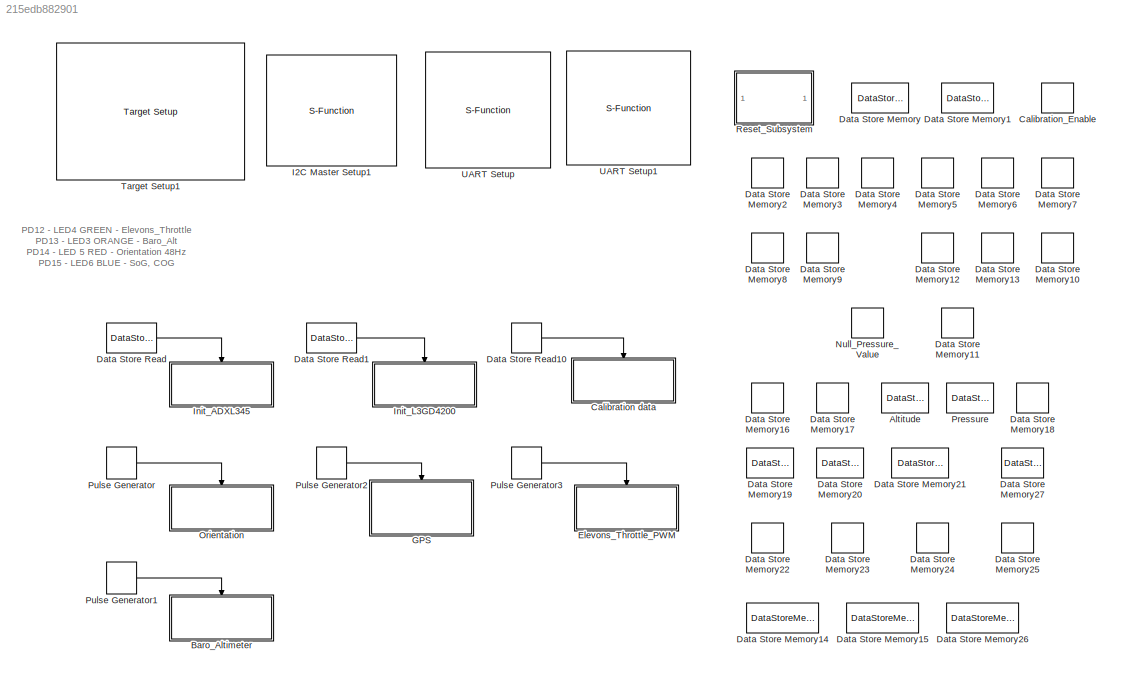
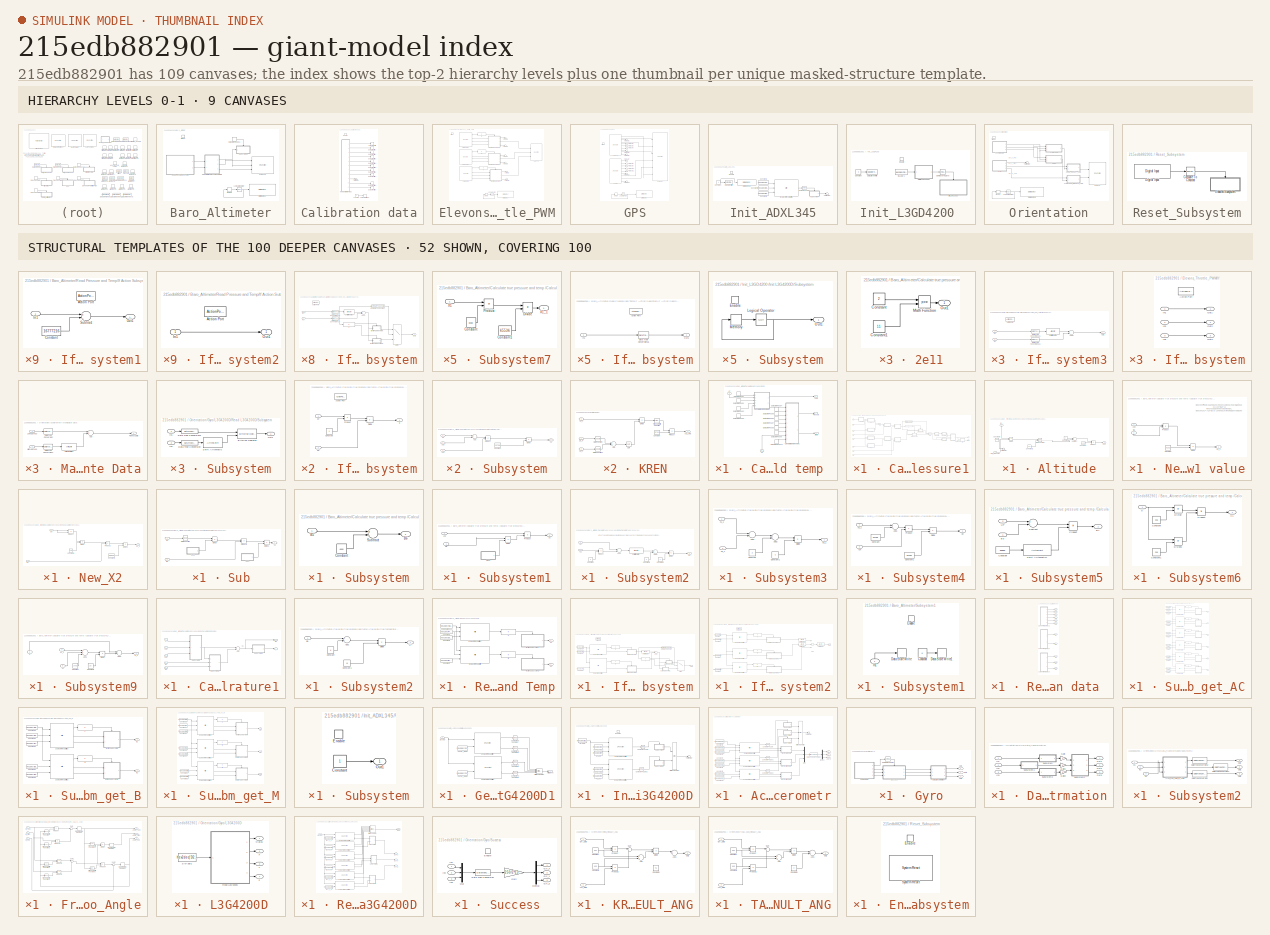
[diagram: thumbnail index - top-2 hierarchy levels (9 canvases) + 52 structural-template representatives of the remaining 100 canvases]
MODEL slx_215edb882901
KIND model
CONFIG AbsTol = auto
CONFIG EnableMultiTasking = off
CONFIG FixedStep = 0.0005
CONFIG MaxStep = auto
CONFIG MinStep = auto
CONFIG PreLoadFcn = waijung.modelPreload; % Required for working with Waijung Blockset. Do not remove.
CONFIG RelTol = 1e-3
CONFIG SampleTimeConstraint = Unconstrained
CONFIG Solver = FixedStepAuto
CONFIG SolverName = FixedStepAuto
CONFIG StartTime = 0.0
CONFIG StopTime = inf
BLOCK [DataStoreMemory] Altitude
  DataStoreName = Altitude
  ReadBeforeWriteMsg = warning
  ShowAdditionalParam = off
  WriteAfterReadMsg = warning
  WriteAfterWriteMsg = warning
BLOCK [SubSystem] Baro_Altimeter
  Ports = [0, 0, 0, 1]
  RequestExecContextInheritance = off
  TreatAsAtomicUnit = on
BLOCK [SubSystem] Baro_Altimeter/Calculate true pressure and temp 
  Ports = [2, 3]
  RequestExecContextInheritance = off
BLOCK [Outport] Baro_Altimeter/Calculate true pressure and temp /Altitude
  IconDisplay = Port number
  Port = 2
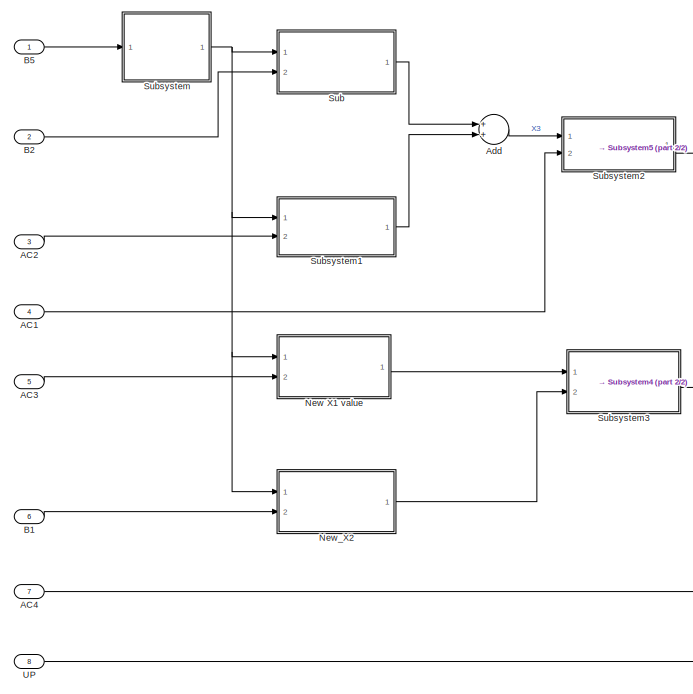
[diagram: Baro_Altimeter/Calculate true pressure and temp /Calculate true pressure1 - part 1/2, left side, full height]
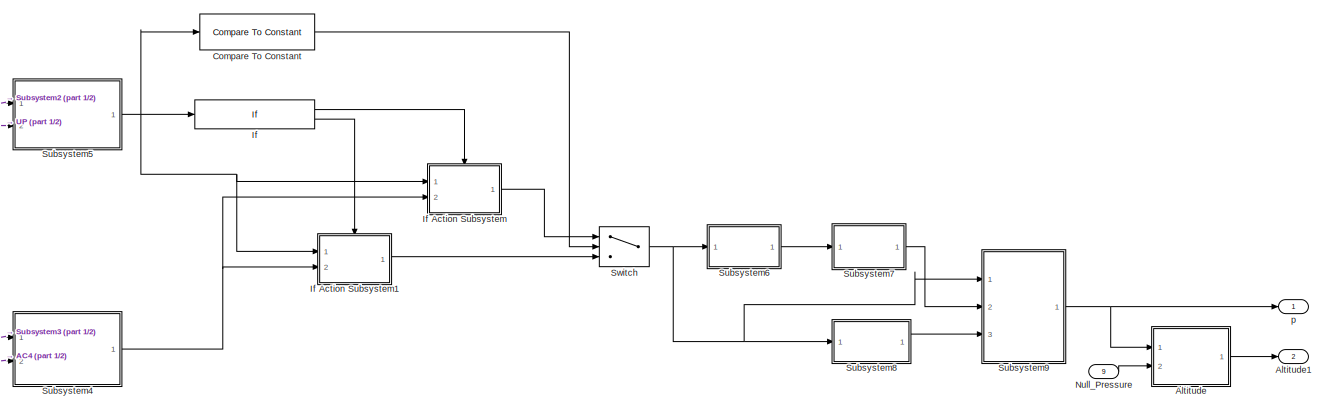
[diagram: Baro_Altimeter/Calculate true pressure and temp /Calculate true pressure1 - part 2/2, middle right region]
BLOCK [SubSystem] Baro_Altimeter/Calculate true pressure and temp /Calculate true pressure1
  Ports = [9, 2]
  RequestExecContextInheritance = off
BLOCK [Inport] Baro_Altimeter/Calculate true pressure and temp /Calculate true pressure1/AC1
  IconDisplay = Port number
  Port = 4
BLOCK [Inport] Baro_Altimeter/Calculate true pressure and temp /Calculate true pressure1/AC2
  IconDisplay = Port number
  Port = 3
BLOCK [Inport] Baro_Altimeter/Calculate true pressure and temp /Calculate true pressure1/AC3
  IconDisplay = Port number
  Port = 5
BLOCK [Inport] Baro_Altimeter/Calculate true pressure and temp /Calculate true pressure1/AC4
  IconDisplay = Port number
  Port = 7
BLOCK [Sum] Baro_Altimeter/Calculate true pressure and temp /Calculate true pressure1/Add
  InputSameDT = off
  OutDataTypeStr = int32
  Ports = [2, 1]
  SaturateOnIntegerOverflow = off
BLOCK [SubSystem] Baro_Altimeter/Calculate true pressure and temp /Calculate true pressure1/Altitude
  Ports = [2, 1]
  RequestExecContextInheritance = off
BLOCK [Constant] Baro_Altimeter/Calculate true pressure and temp /Calculate true pressure1/Altitude/Constant
  OutDataTypeStr = int32
  Value = 44330
BLOCK [Constant] Baro_Altimeter/Calculate true pressure and temp /Calculate true pressure1/Altitude/Constant1
  OutDataTypeStr = int32
BLOCK [Constant] Baro_Altimeter/Calculate true pressure and temp /Calculate true pressure1/Altitude/Constant2
  OutDataTypeStr = double
  Value = 0.19
BLOCK [Constant] Baro_Altimeter/Calculate true pressure and temp /Calculate true pressure1/Altitude/Constant3
  Value = 102159
BLOCK [Product] Baro_Altimeter/Calculate true pressure and temp /Calculate true pressure1/Altitude/Divide
  InputSameDT = off
  Inputs = */
  OutDataTypeStr = double
  Ports = [2, 1]
  RndMeth = Floor
  SaturateOnIntegerOverflow = off
BLOCK [Inport] Baro_Altimeter/Calculate true pressure and temp /Calculate true pressure1/Altitude/In1
  IconDisplay = Port number
BLOCK [Math] Baro_Altimeter/Calculate true pressure and temp /Calculate true pressure1/Altitude/Math Function
  Operator = pow
  Ports = [2, 1]
BLOCK [Inport] Baro_Altimeter/Calculate true pressure and temp /Calculate true pressure1/Altitude/Null_Pressure 
  IconDisplay = Port number
  Port = 2
BLOCK [Outport] Baro_Altimeter/Calculate true pressure and temp /Calculate true pressure1/Altitude/Out1
  IconDisplay = Port number
BLOCK [Product] Baro_Altimeter/Calculate true pressure and temp /Calculate true pressure1/Altitude/Product
  InputSameDT = off
  OutDataTypeStr = single
  Ports = [2, 1]
  RndMeth = Floor
  SaturateOnIntegerOverflow = off
BLOCK [Sum] Baro_Altimeter/Calculate true pressure and temp /Calculate true pressure1/Altitude/Subtract
  InputSameDT = off
  Inputs = +-
  OutDataTypeStr = double
  Ports = [2, 1]
  SaturateOnIntegerOverflow = off
BLOCK [Terminator] Baro_Altimeter/Calculate true pressure and temp /Calculate true pressure1/Altitude/Terminator
BLOCK [Outport] Baro_Altimeter/Calculate true pressure and temp /Calculate true pressure1/Altitude1
  IconDisplay = Port number
  OutDataTypeStr = single
  Port = 2
BLOCK [Inport] Baro_Altimeter/Calculate true pressure and temp /Calculate true pressure1/B1
  IconDisplay = Port number
  Port = 6
BLOCK [Inport] Baro_Altimeter/Calculate true pressure and temp /Calculate true pressure1/B2
  IconDisplay = Port number
  Port = 2
BLOCK [Inport] Baro_Altimeter/Calculate true pressure and temp /Calculate true pressure1/B5
  IconDisplay = Port number
BLOCK [Reference] Baro_Altimeter/Calculate true pressure and temp /Calculate true pressure1/Compare To Constant  REF=simulink/Logic and Bit
Operations/Compare
To Constant
  Ports = [1, 1]
  SourceBlock = simulink/Logic and Bit\nOperations/Compare\nTo Constant
  SourceProductBaseCode = SL
  SourceProductName = Simulink
  SourceType = Compare To Constant
BLOCK [If] Baro_Altimeter/Calculate true pressure and temp /Calculate true pressure1/If
  IfExpression = u1 < (hex2dec('80000000'))
  Ports = [1, 2]
BLOCK [SubSystem] Baro_Altimeter/Calculate true pressure and temp /Calculate true pressure1/If Action Subsystem
  Ports = [2, 1, 0, 0, 0, 0, 0, 1]
  RequestExecContextInheritance = off
  TreatAsAtomicUnit = on
BLOCK [ActionPort] Baro_Altimeter/Calculate true pressure and temp /Calculate true pressure1/If Action Subsystem/Action Port
  ActionPortLabel = if { }
BLOCK [Inport] Baro_Altimeter/Calculate true pressure and temp /Calculate true pressure1/If Action Subsystem/B4
  IconDisplay = Port number
  Port = 2
BLOCK [Inport] Baro_Altimeter/Calculate true pressure and temp /Calculate true pressure1/If Action Subsystem/B7
  IconDisplay = Port number
BLOCK [Constant] Baro_Altimeter/Calculate true pressure and temp /Calculate true pressure1/If Action Subsystem/Constant
  OutDataTypeStr = uint32
  Value = 2
BLOCK [Product] Baro_Altimeter/Calculate true pressure and temp /Calculate true pressure1/If Action Subsystem/Divide
  InputSameDT = off
  Inputs = */
  OutDataTypeStr = uint32
  Ports = [2, 1]
  RndMeth = Floor
  SaturateOnIntegerOverflow = off
BLOCK [Product] Baro_Altimeter/Calculate true pressure and temp /Calculate true pressure1/If Action Subsystem/Product
  InputSameDT = off
  OutDataTypeStr = uint32
  Ports = [2, 1]
  RndMeth = Floor
  SaturateOnIntegerOverflow = off
BLOCK [Outport] Baro_Altimeter/Calculate true pressure and temp /Calculate true pressure1/If Action Subsystem/p
  IconDisplay = Port number
  OutDataTypeStr = uint32
BLOCK [SubSystem] Baro_Altimeter/Calculate true pressure and temp /Calculate true pressure1/If Action Subsystem1
  Ports = [2, 1, 0, 0, 0, 0, 0, 1]
  RequestExecContextInheritance = off
  TreatAsAtomicUnit = on
BLOCK [ActionPort] Baro_Altimeter/Calculate true pressure and temp /Calculate true pressure1/If Action Subsystem1/Action Port
  ActionPortLabel = else { }
BLOCK [Inport] Baro_Altimeter/Calculate true pressure and temp /Calculate true pressure1/If Action Subsystem1/B4
  IconDisplay = Port number
  Port = 2
BLOCK [Inport] Baro_Altimeter/Calculate true pressure and temp /Calculate true pressure1/If Action Subsystem1/B7
  IconDisplay = Port number
BLOCK [Constant] Baro_Altimeter/Calculate true pressure and temp /Calculate true pressure1/If Action Subsystem1/Constant
  OutDataTypeStr = uint32
  Value = 2
BLOCK [Product] Baro_Altimeter/Calculate true pressure and temp /Calculate true pressure1/If Action Subsystem1/Divide
  InputSameDT = off
  Inputs = */
  OutDataTypeStr = Inherit: Inherit via internal rule
  Ports = [2, 1]
  RndMeth = Floor
  SaturateOnIntegerOverflow = off
BLOCK [Product] Baro_Altimeter/Calculate true pressure and temp /Calculate true pressure1/If Action Subsystem1/Product
  InputSameDT = off
  OutDataTypeStr = uint32
  Ports = [2, 1]
  RndMeth = Floor
  SaturateOnIntegerOverflow = off
BLOCK [Outport] Baro_Altimeter/Calculate true pressure and temp /Calculate true pressure1/If Action Subsystem1/p
  IconDisplay = Port number
  OutDataTypeStr = uint32
BLOCK [SubSystem] Baro_Altimeter/Calculate true pressure and temp /Calculate true pressure1/New X1 value
  Ports = [2, 1]
  RequestExecContextInheritance = off
BLOCK [Inport] Baro_Altimeter/Calculate true pressure and temp /Calculate true pressure1/New X1 value/AC3
  IconDisplay = Port number
  Port = 2
BLOCK [Inport] Baro_Altimeter/Calculate true pressure and temp /Calculate true pressure1/New X1 value/B6
  IconDisplay = Port number
BLOCK [Constant] Baro_Altimeter/Calculate true pressure and temp /Calculate true pressure1/New X1 value/Constant
  OutDataTypeStr = int32
  Value = 8192
BLOCK [Product] Baro_Altimeter/Calculate true pressure and temp /Calculate true pressure1/New X1 value/Divide
  InputSameDT = off
  Inputs = */
  OutDataTypeStr = Inherit: Inherit via internal rule
  Ports = [2, 1]
  RndMeth = Floor
  SaturateOnIntegerOverflow = off
BLOCK [Product] Baro_Altimeter/Calculate true pressure and temp /Calculate true pressure1/New X1 value/Product
  InputSameDT = off
  OutDataTypeStr = int32
  Ports = [2, 1]
  RndMeth = Floor
  SaturateOnIntegerOverflow = off
BLOCK [Outport] Baro_Altimeter/Calculate true pressure and temp /Calculate true pressure1/New X1 value/X1_1
  IconDisplay = Port number
  OutDataTypeStr = int32
BLOCK [SubSystem] Baro_Altimeter/Calculate true pressure and temp /Calculate true pressure1/New_X2
  Ports = [2, 1]
  RequestExecContextInheritance = off
BLOCK [Inport] Baro_Altimeter/Calculate true pressure and temp /Calculate true pressure1/New_X2/B1
  IconDisplay = Port number
  Port = 2
BLOCK [Inport] Baro_Altimeter/Calculate true pressure and temp /Calculate true pressure1/New_X2/B6
  IconDisplay = Port number
BLOCK [Constant] Baro_Altimeter/Calculate true pressure and temp /Calculate true pressure1/New_X2/Constant1
  OutDataTypeStr = int32
  Value = 4096
BLOCK [Constant] Baro_Altimeter/Calculate true pressure and temp /Calculate true pressure1/New_X2/Constant2
  OutDataTypeStr = int32
  Value = 65536
BLOCK [Product] Baro_Altimeter/Calculate true pressure and temp /Calculate true pressure1/New_X2/Divide
  InputSameDT = off
  Inputs = */
  OutDataTypeStr = int32
  Ports = [2, 1]
  RndMeth = Floor
  SaturateOnIntegerOverflow = off
BLOCK [Product] Baro_Altimeter/Calculate true pressure and temp /Calculate true pressure1/New_X2/Divide1
  InputSameDT = off
  Inputs = */
  OutDataTypeStr = int32
  Ports = [2, 1]
  RndMeth = Floor
  SaturateOnIntegerOverflow = off
BLOCK [Product] Baro_Altimeter/Calculate true pressure and temp /Calculate true pressure1/New_X2/Product
  InputSameDT = off
  OutDataTypeStr = int32
  Ports = [2, 1]
  RndMeth = Floor
  SaturateOnIntegerOverflow = off
BLOCK [Product] Baro_Altimeter/Calculate true pressure and temp /Calculate true pressure1/New_X2/Product1
  InputSameDT = off
  OutDataTypeStr = int32
  Ports = [2, 1]
  RndMeth = Floor
  SaturateOnIntegerOverflow = off
BLOCK [Outport] Baro_Altimeter/Calculate true pressure and temp /Calculate true pressure1/New_X2/X2_1
  IconDisplay = Port number
  OutDataTypeStr = int32
BLOCK [Inport] Baro_Altimeter/Calculate true pressure and temp /Calculate true pressure1/Null_Pressure 
  IconDisplay = Port number
  Port = 9
BLOCK [SubSystem] Baro_Altimeter/Calculate true pressure and temp /Calculate true pressure1/Sub
  Ports = [2, 1]
  RequestExecContextInheritance = off
BLOCK [SubSystem] Baro_Altimeter/Calculate true pressure and temp /Calculate true pressure1/Sub/2e11
  Ports = [0, 1]
  RequestExecContextInheritance = off
BLOCK [Constant] Baro_Altimeter/Calculate true pressure and temp /Calculate true pressure1/Sub/2e11/Constant
  Value = 2
BLOCK [Constant] Baro_Altimeter/Calculate true pressure and temp /Calculate true pressure1/Sub/2e11/Constant1
  Value = 11
BLOCK [Math] Baro_Altimeter/Calculate true pressure and temp /Calculate true pressure1/Sub/2e11/Math Function
  Operator = pow
  Ports = [2, 1]
BLOCK [Outport] Baro_Altimeter/Calculate true pressure and temp /Calculate true pressure1/Sub/2e11/Out1
  IconDisplay = Port number
BLOCK [SubSystem] Baro_Altimeter/Calculate true pressure and temp /Calculate true pressure1/Sub/2e12
  Ports = [0, 1]
  RequestExecContextInheritance = off
BLOCK [Constant] Baro_Altimeter/Calculate true pressure and temp /Calculate true pressure1/Sub/2e12/Constant
  Value = 2
BLOCK [Constant] Baro_Altimeter/Calculate true pressure and temp /Calculate true pressure1/Sub/2e12/Constant1
  Value = 12
BLOCK [Math] Baro_Altimeter/Calculate true pressure and temp /Calculate true pressure1/Sub/2e12/Math Function
  Operator = pow
  Ports = [2, 1]
BLOCK [Outport] Baro_Altimeter/Calculate true pressure and temp /Calculate true pressure1/Sub/2e12/Out1
  IconDisplay = Port number
BLOCK [Inport] Baro_Altimeter/Calculate true pressure and temp /Calculate true pressure1/Sub/B2
  IconDisplay = Port number
  Port = 2
BLOCK [Inport] Baro_Altimeter/Calculate true pressure and temp /Calculate true pressure1/Sub/B6
  IconDisplay = Port number
BLOCK [Product] Baro_Altimeter/Calculate true pressure and temp /Calculate true pressure1/Sub/Divide
  InputSameDT = off
  Inputs = */
  OutDataTypeStr = Inherit: Inherit via internal rule
  Ports = [2, 1]
  RndMeth = Floor
  SaturateOnIntegerOverflow = off
BLOCK [Product] Baro_Altimeter/Calculate true pressure and temp /Calculate true pressure1/Sub/Divide1
  InputSameDT = off
  Inputs = */
  OutDataTypeStr = Inherit: Inherit via internal rule
  Ports = [2, 1]
  RndMeth = Floor
  SaturateOnIntegerOverflow = off
BLOCK [Math] Baro_Altimeter/Calculate true pressure and temp /Calculate true pressure1/Sub/Math Function
  Operator = square
  Ports = [1, 1]
BLOCK [Product] Baro_Altimeter/Calculate true pressure and temp /Calculate true pressure1/Sub/Product1
  InputSameDT = off
  OutDataTypeStr = Inherit: Inherit via internal rule
  Ports = [2, 1]
  RndMeth = Floor
  SaturateOnIntegerOverflow = off
BLOCK [Outport] Baro_Altimeter/Calculate true pressure and temp /Calculate true pressure1/Sub/X1
  IconDisplay = Port number
BLOCK [SubSystem] Baro_Altimeter/Calculate true pressure and temp /Calculate true pressure1/Subsystem
  Ports = [1, 1]
  RequestExecContextInheritance = off
BLOCK [Inport] Baro_Altimeter/Calculate true pressure and temp /Calculate true pressure1/Subsystem/B5
  IconDisplay = Port number
BLOCK [Outport] Baro_Altimeter/Calculate true pressure and temp /Calculate true pressure1/Subsystem/B6
  IconDisplay = Port number
  OutDataTypeStr = int32
BLOCK [Constant] Baro_Altimeter/Calculate true pressure and temp /Calculate true pressure1/Subsystem/Constant
  OutDataTypeStr = int32
  Value = 4000
BLOCK [Sum] Baro_Altimeter/Calculate true pressure and temp /Calculate true pressure1/Subsystem/Subtract
  InputSameDT = off
  Inputs = +-
  OutDataTypeStr = int32
  Ports = [2, 1]
  SaturateOnIntegerOverflow = off
BLOCK [SubSystem] Baro_Altimeter/Calculate true pressure and temp /Calculate true pressure1/Subsystem1
  Ports = [2, 1]
  RequestExecContextInheritance = off
BLOCK [SubSystem] Baro_Altimeter/Calculate true pressure and temp /Calculate true pressure1/Subsystem1/2e11
  Ports = [0, 1]
  RequestExecContextInheritance = off
BLOCK [Constant] Baro_Altimeter/Calculate true pressure and temp /Calculate true pressure1/Subsystem1/2e11/Constant
  Value = 2
BLOCK [Constant] Baro_Altimeter/Calculate true pressure and temp /Calculate true pressure1/Subsystem1/2e11/Constant1
  Value = 11
BLOCK [Math] Baro_Altimeter/Calculate true pressure and temp /Calculate true pressure1/Subsystem1/2e11/Math Function
  Operator = pow
  Ports = [2, 1]
BLOCK [Outport] Baro_Altimeter/Calculate true pressure and temp /Calculate true pressure1/Subsystem1/2e11/Out1
  IconDisplay = Port number
BLOCK [Inport] Baro_Altimeter/Calculate true pressure and temp /Calculate true pressure1/Subsystem1/AC2
  IconDisplay = Port number
  Port = 2
BLOCK [Inport] Baro_Altimeter/Calculate true pressure and temp /Calculate true pressure1/Subsystem1/B6
  IconDisplay = Port number
BLOCK [Product] Baro_Altimeter/Calculate true pressure and temp /Calculate true pressure1/Subsystem1/Divide
  InputSameDT = off
  Inputs = */
  OutDataTypeStr = Inherit: Inherit via internal rule
  Ports = [2, 1]
  RndMeth = Floor
  SaturateOnIntegerOverflow = off
BLOCK [Product] Baro_Altimeter/Calculate true pressure and temp /Calculate true pressure1/Subsystem1/Product
  InputSameDT = off
  OutDataTypeStr = Inherit: Inherit via internal rule
  Ports = [2, 1]
  RndMeth = Floor
  SaturateOnIntegerOverflow = off
BLOCK [Outport] Baro_Altimeter/Calculate true pressure and temp /Calculate true pressure1/Subsystem1/X2
  IconDisplay = Port number
BLOCK [SubSystem] Baro_Altimeter/Calculate true pressure and temp /Calculate true pressure1/Subsystem2
  Ports = [2, 1]
  RequestExecContextInheritance = off
BLOCK [Inport] Baro_Altimeter/Calculate true pressure and temp /Calculate true pressure1/Subsystem2/AC1
  IconDisplay = Port number
  Port = 2
BLOCK [Sum] Baro_Altimeter/Calculate true pressure and temp /Calculate true pressure1/Subsystem2/Add1
  InputSameDT = off
  OutDataTypeStr = int32
  Ports = [2, 1]
  SaturateOnIntegerOverflow = off
BLOCK [Sum] Baro_Altimeter/Calculate true pressure and temp /Calculate true pressure1/Subsystem2/Add2
  AccumDataTypeStr = int32
  InputSameDT = off
  OutDataTypeStr = Inherit: Inherit via internal rule
  Ports = [2, 1]
  SaturateOnIntegerOverflow = off
BLOCK [Outport] Baro_Altimeter/Calculate true pressure and temp /Calculate true pressure1/Subsystem2/B3
  IconDisplay = Port number
  OutDataTypeStr = int32
BLOCK [Constant] Baro_Altimeter/Calculate true pressure and temp /Calculate true pressure1/Subsystem2/Constant
  OutDataTypeStr = int32
  Value = 4
BLOCK [Constant] Baro_Altimeter/Calculate true pressure and temp /Calculate true pressure1/Subsystem2/Constant1
  OutDataTypeStr = int32
  Value = 2
BLOCK [Constant] Baro_Altimeter/Calculate true pressure and temp /Calculate true pressure1/Subsystem2/Constant2
  OutDataTypeStr = int32
  Value = 4
BLOCK [Product] Baro_Altimeter/Calculate true pressure and temp /Calculate true pressure1/Subsystem2/Divide
  InputSameDT = off
  Inputs = */
  OutDataTypeStr = int32
  Ports = [2, 1]
  RndMeth = Floor
  SaturateOnIntegerOverflow = off
BLOCK [Product] Baro_Altimeter/Calculate true pressure and temp /Calculate true pressure1/Subsystem2/Product
  InputSameDT = off
  OutDataTypeStr = int32
  Ports = [2, 1]
  RndMeth = Floor
  SaturateOnIntegerOverflow = off
BLOCK [ArithShift] Baro_Altimeter/Calculate true pressure and temp /Calculate true pressure1/Subsystem2/Shift Arithmetic7
  BitShiftDirection = Left
  BitShiftNumber = 3
  DiagnosticForOORShift = Warning
  InputPortMap = u0
  Ports = [1, 1]
BLOCK [Inport] Baro_Altimeter/Calculate true pressure and temp /Calculate true pressure1/Subsystem2/X3
  IconDisplay = Port number
BLOCK [SubSystem] Baro_Altimeter/Calculate true pressure and temp /Calculate true pressure1/Subsystem3
  Ports = [2, 1]
  RequestExecContextInheritance = off
BLOCK [Sum] Baro_Altimeter/Calculate true pressure and temp /Calculate true pressure1/Subsystem3/Add1
  InputSameDT = off
  OutDataTypeStr = Inherit: Inherit via internal rule
  Ports = [2, 1]
  SaturateOnIntegerOverflow = off
BLOCK [Sum] Baro_Altimeter/Calculate true pressure and temp /Calculate true pressure1/Subsystem3/Add2
  AccumDataTypeStr = int32
  InputSameDT = off
  OutDataTypeStr = Inherit: Inherit via internal rule
  Ports = [2, 1]
  SaturateOnIntegerOverflow = off
BLOCK [Constant] Baro_Altimeter/Calculate true pressure and temp /Calculate true pressure1/Subsystem3/Constant
  OutDataTypeStr = int32
  Value = 2
BLOCK [Constant] Baro_Altimeter/Calculate true pressure and temp /Calculate true pressure1/Subsystem3/Constant1
  OutDataTypeStr = int32
  Value = 4
BLOCK [Product] Baro_Altimeter/Calculate true pressure and temp /Calculate true pressure1/Subsystem3/Divide
  InputSameDT = off
  Inputs = */
  OutDataTypeStr = int32
  Ports = [2, 1]
  RndMeth = Floor
  SaturateOnIntegerOverflow = off
BLOCK [Inport] Baro_Altimeter/Calculate true pressure and temp /Calculate true pressure1/Subsystem3/X1_1
  IconDisplay = Port number
BLOCK [Inport] Baro_Altimeter/Calculate true pressure and temp /Calculate true pressure1/Subsystem3/X2_1
  IconDisplay = Port number
  Port = 2
BLOCK [Outport] Baro_Altimeter/Calculate true pressure and temp /Calculate true pressure1/Subsystem3/X3_1
  IconDisplay = Port number
  OutDataTypeStr = int32
BLOCK [SubSystem] Baro_Altimeter/Calculate true pressure and temp /Calculate true pressure1/Subsystem4
  Ports = [2, 1]
  RequestExecContextInheritance = off
BLOCK [Inport] Baro_Altimeter/Calculate true pressure and temp /Calculate true pressure1/Subsystem4/AC4
  IconDisplay = Port number
  Port = 2
BLOCK [Sum] Baro_Altimeter/Calculate true pressure and temp /Calculate true pressure1/Subsystem4/Add1
  InputSameDT = off
  OutDataTypeStr = uint32
  Ports = [2, 1]
  SaturateOnIntegerOverflow = off
BLOCK [Outport] Baro_Altimeter/Calculate true pressure and temp /Calculate true pressure1/Subsystem4/B4
  IconDisplay = Port number
  OutDataTypeStr = uint32
BLOCK [Constant] Baro_Altimeter/Calculate true pressure and temp /Calculate true pressure1/Subsystem4/Constant
  OutDataTypeStr = uint32
  Value = 32768
BLOCK [Constant] Baro_Altimeter/Calculate true pressure and temp /Calculate true pressure1/Subsystem4/Constant1
  OutDataTypeStr = uint32
  Value = 32768
BLOCK [Product] Baro_Altimeter/Calculate true pressure and temp /Calculate true pressure1/Subsystem4/Divide
  InputSameDT = off
  Inputs = */
  OutDataTypeStr = uint32
  Ports = [2, 1]
  RndMeth = Floor
  SaturateOnIntegerOverflow = off
BLOCK [Product] Baro_Altimeter/Calculate true pressure and temp /Calculate true pressure1/Subsystem4/Product
  InputSameDT = off
  OutDataTypeStr = uint32
  Ports = [2, 1]
  RndMeth = Floor
  SaturateOnIntegerOverflow = off
BLOCK [Inport] Baro_Altimeter/Calculate true pressure and temp /Calculate true pressure1/Subsystem4/X3_1
  IconDisplay = Port number
BLOCK [SubSystem] Baro_Altimeter/Calculate true pressure and temp /Calculate true pressure1/Subsystem5
  Ports = [2, 1]
  RequestExecContextInheritance = off
BLOCK [Inport] Baro_Altimeter/Calculate true pressure and temp /Calculate true pressure1/Subsystem5/B3
  IconDisplay = Port number
BLOCK [Outport] Baro_Altimeter/Calculate true pressure and temp /Calculate true pressure1/Subsystem5/B7
  IconDisplay = Port number
  OutDataTypeStr = uint32
BLOCK [Constant] Baro_Altimeter/Calculate true pressure and temp /Calculate true pressure1/Subsystem5/Constant
  OutDataTypeStr = uint32
  Value = 50000
BLOCK [Product] Baro_Altimeter/Calculate true pressure and temp /Calculate true pressure1/Subsystem5/Product
  InputSameDT = off
  OutDataTypeStr = uint32
  Ports = [2, 1]
  RndMeth = Floor
  SaturateOnIntegerOverflow = off
BLOCK [ArithShift] Baro_Altimeter/Calculate true pressure and temp /Calculate true pressure1/Subsystem5/Shift Arithmetic7
  BitShiftDirection = Right
  BitShiftNumber = 2
  InputPortMap = u0
  Ports = [1, 1]
BLOCK [Sum] Baro_Altimeter/Calculate true pressure and temp /Calculate true pressure1/Subsystem5/Subtract
  InputSameDT = off
  Inputs = +-
  OutDataTypeStr = Inherit: Inherit via internal rule
  Ports = [2, 1]
  SaturateOnIntegerOverflow = off
BLOCK [Inport] Baro_Altimeter/Calculate true pressure and temp /Calculate true pressure1/Subsystem5/UP
  IconDisplay = Port number
  Port = 2
BLOCK [SubSystem] Baro_Altimeter/Calculate true pressure and temp /Calculate true pressure1/Subsystem6
  Ports = [1, 1]
  RequestExecContextInheritance = off
BLOCK [Constant] Baro_Altimeter/Calculate true pressure and temp /Calculate true pressure1/Subsystem6/Constant
  OutDataTypeStr = uint32
  Value = 256
BLOCK [Constant] Baro_Altimeter/Calculate true pressure and temp /Calculate true pressure1/Subsystem6/Constant1
  OutDataTypeStr = uint32
  Value = 256
BLOCK [Product] Baro_Altimeter/Calculate true pressure and temp /Calculate true pressure1/Subsystem6/Divide
  InputSameDT = off
  Inputs = */
  OutDataTypeStr = uint32
  Ports = [2, 1]
  RndMeth = Floor
  SaturateOnIntegerOverflow = off
BLOCK [Product] Baro_Altimeter/Calculate true pressure and temp /Calculate true pressure1/Subsystem6/Divide1
  InputSameDT = off
  Inputs = */
  OutDataTypeStr = uint32
  Ports = [2, 1]
  RndMeth = Floor
  SaturateOnIntegerOverflow = off
BLOCK [Product] Baro_Altimeter/Calculate true pressure and temp /Calculate true pressure1/Subsystem6/Product
  InputSameDT = off
  OutDataTypeStr = uint32
  Ports = [2, 1]
  RndMeth = Floor
  SaturateOnIntegerOverflow = off
BLOCK [Outport] Baro_Altimeter/Calculate true pressure and temp /Calculate true pressure1/Subsystem6/X1
  IconDisplay = Port number
  OutDataTypeStr = uint32
BLOCK [Inport] Baro_Altimeter/Calculate true pressure and temp /Calculate true pressure1/Subsystem6/p
  IconDisplay = Port number
BLOCK [SubSystem] Baro_Altimeter/Calculate true pressure and temp /Calculate true pressure1/Subsystem7
  Ports = [1, 1]
  RequestExecContextInheritance = off
BLOCK [Constant] Baro_Altimeter/Calculate true pressure and temp /Calculate true pressure1/Subsystem7/Constant
  OutDataTypeStr = uint32
  Value = 3038
BLOCK [Constant] Baro_Altimeter/Calculate true pressure and temp /Calculate true pressure1/Subsystem7/Constant1
  OutDataTypeStr = uint32
  Value = 65536
BLOCK [Product] Baro_Altimeter/Calculate true pressure and temp /Calculate true pressure1/Subsystem7/Divide
  InputSameDT = off
  Inputs = */
  OutDataTypeStr = uint32
  Ports = [2, 1]
  RndMeth = Floor
  SaturateOnIntegerOverflow = off
BLOCK [Product] Baro_Altimeter/Calculate true pressure and temp /Calculate true pressure1/Subsystem7/Product
  InputSameDT = off
  OutDataTypeStr = Inherit: Inherit via internal rule
  Ports = [2, 1]
  RndMeth = Floor
  SaturateOnIntegerOverflow = off
BLOCK [Inport] Baro_Altimeter/Calculate true pressure and temp /Calculate true pressure1/Subsystem7/X1
  IconDisplay = Port number
BLOCK [Outport] Baro_Altimeter/Calculate true pressure and temp /Calculate true pressure1/Subsystem7/X1_1
  IconDisplay = Port number
  OutDataTypeStr = uint32
BLOCK [SubSystem] Baro_Altimeter/Calculate true pressure and temp /Calculate true pressure1/Subsystem8
  Ports = [1, 1]
  RequestExecContextInheritance = off
BLOCK [Constant] Baro_Altimeter/Calculate true pressure and temp /Calculate true pressure1/Subsystem8/Constant
  OutDataTypeStr = int32
  Value = -7357
BLOCK [Constant] Baro_Altimeter/Calculate true pressure and temp /Calculate true pressure1/Subsystem8/Constant1
  OutDataTypeStr = int32
  Value = 65536
BLOCK [Product] Baro_Altimeter/Calculate true pressure and temp /Calculate true pressure1/Subsystem8/Divide
  InputSameDT = off
  Inputs = */
  OutDataTypeStr = int32
  Ports = [2, 1]
  RndMeth = Floor
  SaturateOnIntegerOverflow = off
BLOCK [Product] Baro_Altimeter/Calculate true pressure and temp /Calculate true pressure1/Subsystem8/Product
  InputSameDT = off
  OutDataTypeStr = int32
  Ports = [2, 1]
  RndMeth = Floor
  SaturateOnIntegerOverflow = off
BLOCK [Outport] Baro_Altimeter/Calculate true pressure and temp /Calculate true pressure1/Subsystem8/X2
  IconDisplay = Port number
  OutDataTypeStr = int32
BLOCK [Inport] Baro_Altimeter/Calculate true pressure and temp /Calculate true pressure1/Subsystem8/p
  IconDisplay = Port number
BLOCK [SubSystem] Baro_Altimeter/Calculate true pressure and temp /Calculate true pressure1/Subsystem9
  Ports = [3, 1]
  RequestExecContextInheritance = off
BLOCK [Sum] Baro_Altimeter/Calculate true pressure and temp /Calculate true pressure1/Subsystem9/Add1
  InputSameDT = off
  Inputs = +++
  OutDataTypeStr = int32
  Ports = [3, 1]
  SaturateOnIntegerOverflow = off
BLOCK [Sum] Baro_Altimeter/Calculate true pressure and temp /Calculate true pressure1/Subsystem9/Add2
  InputSameDT = off
  OutDataTypeStr = int32
  Ports = [2, 1]
  SaturateOnIntegerOverflow = off
BLOCK [Constant] Baro_Altimeter/Calculate true pressure and temp /Calculate true pressure1/Subsystem9/Constant
  OutDataTypeStr = uint32
  Value = 3791
BLOCK [Constant] Baro_Altimeter/Calculate true pressure and temp /Calculate true pressure1/Subsystem9/Constant1
  OutDataTypeStr = uint32
  Value = 16
BLOCK [Product] Baro_Altimeter/Calculate true pressure and temp /Calculate true pressure1/Subsystem9/Divide
  InputSameDT = off
  Inputs = */
  OutDataTypeStr = int32
  Ports = [2, 1]
  RndMeth = Floor
  SaturateOnIntegerOverflow = off
BLOCK [Inport] Baro_Altimeter/Calculate true pressure and temp /Calculate true pressure1/Subsystem9/X1_1
  IconDisplay = Port number
  Port = 2
BLOCK [Inport] Baro_Altimeter/Calculate true pressure and temp /Calculate true pressure1/Subsystem9/X2
  IconDisplay = Port number
  Port = 3
BLOCK [Inport] Baro_Altimeter/Calculate true pressure and temp /Calculate true pressure1/Subsystem9/p
  IconDisplay = Port number
BLOCK [Outport] Baro_Altimeter/Calculate true pressure and temp /Calculate true pressure1/Subsystem9/p_1
  IconDisplay = Port number
  OutDataTypeStr = int32
BLOCK [Switch] Baro_Altimeter/Calculate true pressure and temp /Calculate true pressure1/Switch
  Criteria = u2 > Threshold
  InputSameDT = off
  SaturateOnIntegerOverflow = off
BLOCK [Inport] Baro_Altimeter/Calculate true pressure and temp /Calculate true pressure1/UP
  IconDisplay = Port number
  Port = 8
BLOCK [Outport] Baro_Altimeter/Calculate true pressure and temp /Calculate true pressure1/p
  IconDisplay = Port number
BLOCK [SubSystem] Baro_Altimeter/Calculate true pressure and temp /Calculate true temperature1
  Ports = [5, 2]
  RequestExecContextInheritance = off
BLOCK [Inport] Baro_Altimeter/Calculate true pressure and temp /Calculate true temperature1/AC5
  IconDisplay = Port number
  Port = 3
BLOCK [Inport] Baro_Altimeter/Calculate true pressure and temp /Calculate true temperature1/AC6
  IconDisplay = Port number
BLOCK [Sum] Baro_Altimeter/Calculate true pressure and temp /Calculate true temperature1/Add
  InputSameDT = off
  OutDataTypeStr = int32
  Ports = [2, 1]
  SaturateOnIntegerOverflow = off
BLOCK [Outport] Baro_Altimeter/Calculate true pressure and temp /Calculate true temperature1/B5
  IconDisplay = Port number
  OutDataTypeStr = int32
  Port = 2
BLOCK [Inport] Baro_Altimeter/Calculate true pressure and temp /Calculate true temperature1/MC
  IconDisplay = Port number
  Port = 4
BLOCK [Inport] Baro_Altimeter/Calculate true pressure and temp /Calculate true temperature1/MD
  IconDisplay = Port number
  Port = 5
BLOCK [SubSystem] Baro_Altimeter/Calculate true pressure and temp /Calculate true temperature1/Subsystem
  Ports = [3, 1]
  RequestExecContextInheritance = off
BLOCK [Inport] Baro_Altimeter/Calculate true pressure and temp /Calculate true temperature1/Subsystem/AC5
  IconDisplay = Port number
  Port = 3
BLOCK [Inport] Baro_Altimeter/Calculate true pressure and temp /Calculate true temperature1/Subsystem/AC6
  IconDisplay = Port number
  Port = 2
BLOCK [Sum] Baro_Altimeter/Calculate true pressure and temp /Calculate true temperature1/Subsystem/Add
  InputSameDT = off
  Inputs = +-
  OutDataTypeStr = int32
  Ports = [2, 1]
  SaturateOnIntegerOverflow = off
BLOCK [Constant] Baro_Altimeter/Calculate true pressure and temp /Calculate true temperature1/Subsystem/Constant
  OutDataTypeStr = int32
  Value = 32768
BLOCK [Product] Baro_Altimeter/Calculate true pressure and temp /Calculate true temperature1/Subsystem/Divide
  InputSameDT = off
  Inputs = */
  OutDataTypeStr = int32
  Ports = [2, 1]
  RndMeth = Floor
  SaturateOnIntegerOverflow = off
BLOCK [Product] Baro_Altimeter/Calculate true pressure and temp /Calculate true temperature1/Subsystem/Product
  InputSameDT = off
  OutDataTypeStr = Inherit: Inherit via internal rule
  Ports = [2, 1]
  RndMeth = Floor
  SaturateOnIntegerOverflow = off
BLOCK [Inport] Baro_Altimeter/Calculate true pressure and temp /Calculate true temperature1/Subsystem/UT
  IconDisplay = Port number
BLOCK [Outport] Baro_Altimeter/Calculate true pressure and temp /Calculate true temperature1/Subsystem/X1
  IconDisplay = Port number
BLOCK [SubSystem] Baro_Altimeter/Calculate true pressure and temp /Calculate true temperature1/Subsystem1
  Ports = [3, 1]
  RequestExecContextInheritance = off
BLOCK [Sum] Baro_Altimeter/Calculate true pressure and temp /Calculate true temperature1/Subsystem1/Add
  InputSameDT = off
  OutDataTypeStr = Inherit: Inherit via internal rule
  Ports = [2, 1]
  SaturateOnIntegerOverflow = off
BLOCK [Constant] Baro_Altimeter/Calculate true pressure and temp /Calculate true temperature1/Subsystem1/Constant2
  OutDataTypeStr = int32
  Value = 2048
BLOCK [Product] Baro_Altimeter/Calculate true pressure and temp /Calculate true temperature1/Subsystem1/Divide
  InputSameDT = off
  Inputs = */
  OutDataTypeStr = int32
  Ports = [2, 1]
  RndMeth = Floor
  SaturateOnIntegerOverflow = off
BLOCK [Inport] Baro_Altimeter/Calculate true pressure and temp /Calculate true temperature1/Subsystem1/MC
  IconDisplay = Port number
  Port = 2
BLOCK [Inport] Baro_Altimeter/Calculate true pressure and temp /Calculate true temperature1/Subsystem1/MD
  IconDisplay = Port number
  Port = 3
BLOCK [Product] Baro_Altimeter/Calculate true pressure and temp /Calculate true temperature1/Subsystem1/Product
  InputSameDT = off
  OutDataTypeStr = int32
  Ports = [2, 1]
  RndMeth = Floor
  SaturateOnIntegerOverflow = off
BLOCK [Inport] Baro_Altimeter/Calculate true pressure and temp /Calculate true temperature1/Subsystem1/X1
  IconDisplay = Port number
BLOCK [Outport] Baro_Altimeter/Calculate true pressure and temp /Calculate true temperature1/Subsystem1/X2
  IconDisplay = Port number
BLOCK [SubSystem] Baro_Altimeter/Calculate true pressure and temp /Calculate true temperature1/Subsystem2
  Ports = [1, 1]
  RequestExecContextInheritance = off
BLOCK [Sum] Baro_Altimeter/Calculate true pressure and temp /Calculate true temperature1/Subsystem2/Add1
  InputSameDT = off
  OutDataTypeStr = int32
  Ports = [2, 1]
  SaturateOnIntegerOverflow = off
BLOCK [Inport] Baro_Altimeter/Calculate true pressure and temp /Calculate true temperature1/Subsystem2/B5
  IconDisplay = Port number
BLOCK [Constant] Baro_Altimeter/Calculate true pressure and temp /Calculate true temperature1/Subsystem2/Constant
  OutDataTypeStr = uint32
  Value = 8
BLOCK [Constant] Baro_Altimeter/Calculate true pressure and temp /Calculate true temperature1/Subsystem2/Constant1
  Value = 16
BLOCK [Product] Baro_Altimeter/Calculate true pressure and temp /Calculate true temperature1/Subsystem2/Divide
  InputSameDT = off
  Inputs = */
  OutDataTypeStr = int32
  Ports = [2, 1]
  RndMeth = Floor
  SaturateOnIntegerOverflow = off
BLOCK [Outport] Baro_Altimeter/Calculate true pressure and temp /Calculate true temperature1/Subsystem2/T
  IconDisplay = Port number
  OutDataTypeStr = int32
BLOCK [Outport] Baro_Altimeter/Calculate true pressure and temp /Calculate true temperature1/T
  IconDisplay = Port number
BLOCK [Inport] Baro_Altimeter/Calculate true pressure and temp /Calculate true temperature1/UT
  IconDisplay = Port number
  Port = 2
BLOCK [DataStoreRead] Baro_Altimeter/Calculate true pressure and temp /Data Store Read
  DataStoreName = AC6
  Ports = [0, 1]
BLOCK [DataStoreRead] Baro_Altimeter/Calculate true pressure and temp /Data Store Read1
  DataStoreName = AC5
  Ports = [0, 1]
BLOCK [DataStoreRead] Baro_Altimeter/Calculate true pressure and temp /Data Store Read13
  DataStoreName = P_0
  Ports = [0, 1]
BLOCK [DataStoreRead] Baro_Altimeter/Calculate true pressure and temp /Data Store Read2
  DataStoreName = MC
  Ports = [0, 1]
BLOCK [DataStoreRead] Baro_Altimeter/Calculate true pressure and temp /Data Store Read3
  DataStoreName = MD
  Ports = [0, 1]
BLOCK [DataStoreRead] Baro_Altimeter/Calculate true pressure and temp /Data Store Read4
  DataStoreName = B2
  Ports = [0, 1]
BLOCK [DataStoreRead] Baro_Altimeter/Calculate true pressure and temp /Data Store Read5
  DataStoreName = AC2
  Ports = [0, 1]
BLOCK [DataStoreRead] Baro_Altimeter/Calculate true pressure and temp /Data Store Read6
  DataStoreName = AC1
  Ports = [0, 1]
BLOCK [DataStoreRead] Baro_Altimeter/Calculate true pressure and temp /Data Store Read7
  DataStoreName = AC3
  Ports = [0, 1]
BLOCK [DataStoreRead] Baro_Altimeter/Calculate true pressure and temp /Data Store Read8
  DataStoreName = B1
  Ports = [0, 1]
BLOCK [DataStoreRead] Baro_Altimeter/Calculate true pressure and temp /Data Store Read9
  DataStoreName = AC4
  Ports = [0, 1]
BLOCK [Outport] Baro_Altimeter/Calculate true pressure and temp /Pressure
  IconDisplay = Port number
BLOCK [Outport] Baro_Altimeter/Calculate true pressure and temp /Temp 
  IconDisplay = Port number
  Port = 3
BLOCK [Inport] Baro_Altimeter/Calculate true pressure and temp /UP 
  IconDisplay = Port number
  Port = 2
BLOCK [Inport] Baro_Altimeter/Calculate true pressure and temp /UT
  IconDisplay = Port number
BLOCK [DataStoreRead] Baro_Altimeter/Data Store Read11
  Ports = [0, 1]
BLOCK [Reference] Baro_Altimeter/Digital Output  REF=stm32f4_io_lib/Digital Output
  Ports = [1]
  SourceBlock = stm32f4_io_lib/Digital Output
  SourceType = stm32f4_digital_output
BLOCK [Logic] Baro_Altimeter/Logical Operator
  AllPortsSameDT = off
  Operator = NOT
  OutDataTypeStr = boolean
  Ports = [1, 1]
BLOCK [Memory] Baro_Altimeter/Memory
  InheritSampleTime = on
BLOCK [SubSystem] Baro_Altimeter/Read Pressure and Temp
  Ports = [0, 2]
  RequestExecContextInheritance = off
BLOCK [Constant] Baro_Altimeter/Read Pressure and Temp/Constant
  OutDataTypeStr = uint8
  SampleTime = -1
  Value = hex2dec('EE')
BLOCK [Constant] Baro_Altimeter/Read Pressure and Temp/Constant1
  OutDataTypeStr = uint8
  SampleTime = -1
  Value = hex2dec('F4')
BLOCK [Constant] Baro_Altimeter/Read Pressure and Temp/Constant4
  OutDataTypeStr = uint8
  SampleTime = -1
  Value = hex2dec('2E')
BLOCK [Constant] Baro_Altimeter/Read Pressure and Temp/Constant7
  OutDataTypeStr = uint8
  SampleTime = -1
  Value = hex2dec('B4')
BLOCK [Reference] Baro_Altimeter/Read Pressure and Temp/I2C Master Read//Write  REF=stm32f4_i2c_lib/I2C Master Read//Write
  Ports = [3, 1]
  SourceBlock = stm32f4_i2c_lib/I2C Master Read//Write
  SourceType = stm32f4_i2c
BLOCK [Reference] Baro_Altimeter/Read Pressure and Temp/I2C Master Read//Write1  REF=stm32f4_i2c_lib/I2C Master Read//Write
  Ports = [3, 1]
  SourceBlock = stm32f4_i2c_lib/I2C Master Read//Write
  SourceType = stm32f4_i2c
BLOCK [If] Baro_Altimeter/Read Pressure and Temp/If
  IfExpression = u1 == 0
  Ports = [1, 1]
  ShowElse = off
BLOCK [SubSystem] Baro_Altimeter/Read Pressure and Temp/If Action Subsystem
  Ports = [0, 1, 0, 0, 0, 0, 0, 1]
  RequestExecContextInheritance = off
  TreatAsAtomicUnit = on
BLOCK [ActionPort] Baro_Altimeter/Read Pressure and Temp/If Action Subsystem/Action Port
  ActionPortLabel = if { }
BLOCK [Sum] Baro_Altimeter/Read Pressure and Temp/If Action Subsystem/Add9
  AccumDataTypeStr = uint32
  InputSameDT = off
  OutDataTypeStr = int32
  Ports = [2, 1]
  SaturateOnIntegerOverflow = off
BLOCK [Reference] Baro_Altimeter/Read Pressure and Temp/If Action Subsystem/Compare To Constant  REF=simulink/Logic and Bit
Operations/Compare
To Constant
  Ports = [1, 1]
  SourceBlock = simulink/Logic and Bit\nOperations/Compare\nTo Constant
  SourceProductBaseCode = SL
  SourceProductName = Simulink
  SourceType = Compare To Constant
BLOCK [Constant] Baro_Altimeter/Read Pressure and Temp/If Action Subsystem/Constant10
  OutDataTypeStr = uint8
  Value = hex2dec('EF')
BLOCK [Constant] Baro_Altimeter/Read Pressure and Temp/If Action Subsystem/Constant11
  OutDataTypeStr = uint8
  Value = hex2dec('F6')
BLOCK [Constant] Baro_Altimeter/Read Pressure and Temp/If Action Subsystem/Constant3
  OutDataTypeStr = uint8
  Value = hex2dec('F7')
BLOCK [Reference] Baro_Altimeter/Read Pressure and Temp/If Action Subsystem/I2C Master Read//Write1  REF=stm32f4_i2c_lib/I2C Master Read//Write
  Ports = [2, 2]
  SourceBlock = stm32f4_i2c_lib/I2C Master Read//Write
  SourceType = stm32f4_i2c
BLOCK [Reference] Baro_Altimeter/Read Pressure and Temp/If Action Subsystem/I2C Master Read//Write2  REF=stm32f4_i2c_lib/I2C Master Read//Write
  Ports = [2, 2]
  SourceBlock = stm32f4_i2c_lib/I2C Master Read//Write
  SourceType = stm32f4_i2c
BLOCK [If] Baro_Altimeter/Read Pressure and Temp/If Action Subsystem/If
  IfExpression = u1 >= 128
  Ports = [1, 2]
BLOCK [SubSystem] Baro_Altimeter/Read Pressure and Temp/If Action Subsystem/If Action Subsystem
  Ports = [1, 1, 0, 0, 0, 0, 0, 1]
  RequestExecContextInheritance = off
  TreatAsAtomicUnit = on
BLOCK [ActionPort] Baro_Altimeter/Read Pressure and Temp/If Action Subsystem/If Action Subsystem/Action Port
  ActionPortLabel = if { }
BLOCK [DataTypeConversion] Baro_Altimeter/Read Pressure and Temp/If Action Subsystem/If Action Subsystem/Data Type Conversion15
  OutDataTypeStr = uint32
  RndMeth = Floor
  SaturateOnIntegerOverflow = off
BLOCK [Inport] Baro_Altimeter/Read Pressure and Temp/If Action Subsystem/If Action Subsystem/In1
  IconDisplay = Port number
BLOCK [Outport] Baro_Altimeter/Read Pressure and Temp/If Action Subsystem/If Action Subsystem/Out1
  IconDisplay = Port number
BLOCK [SubSystem] Baro_Altimeter/Read Pressure and Temp/If Action Subsystem/If Action Subsystem1
  Ports = [1, 1, 0, 0, 0, 0, 0, 1]
  RequestExecContextInheritance = off
  TreatAsAtomicUnit = on
BLOCK [ActionPort] Baro_Altimeter/Read Pressure and Temp/If Action Subsystem/If Action Subsystem1/Action Port
  ActionPortLabel = if { }
BLOCK [Constant] Baro_Altimeter/Read Pressure and Temp/If Action Subsystem/If Action Subsystem1/Constant
  OutDataTypeStr = uint32
  SampleTime = -1
  Value = 16777216
BLOCK [Inport] Baro_Altimeter/Read Pressure and Temp/If Action Subsystem/If Action Subsystem1/In1
  IconDisplay = Port number
BLOCK [Outport] Baro_Altimeter/Read Pressure and Temp/If Action Subsystem/If Action Subsystem1/Out1
  IconDisplay = Port number
BLOCK [Sum] Baro_Altimeter/Read Pressure and Temp/If Action Subsystem/If Action Subsystem1/Subtract
  InputSameDT = off
  Inputs = +-
  OutDataTypeStr = int32
  Ports = [2, 1]
  SaturateOnIntegerOverflow = off
BLOCK [SubSystem] Baro_Altimeter/Read Pressure and Temp/If Action Subsystem/If Action Subsystem2
  Ports = [1, 1, 0, 0, 0, 0, 0, 1]
  RequestExecContextInheritance = off
  TreatAsAtomicUnit = on
BLOCK [ActionPort] Baro_Altimeter/Read Pressure and Temp/If Action Subsystem/If Action Subsystem2/Action Port
  ActionPortLabel = else { }
BLOCK [Inport] Baro_Altimeter/Read Pressure and Temp/If Action Subsystem/If Action Subsystem2/In1
  IconDisplay = Port number
BLOCK [Outport] Baro_Altimeter/Read Pressure and Temp/If Action Subsystem/If Action Subsystem2/Out1
  IconDisplay = Port number
BLOCK [SubSystem] Baro_Altimeter/Read Pressure and Temp/If Action Subsystem/If Action Subsystem3
  Ports = [1, 1, 0, 0, 0, 0, 0, 1]
  RequestExecContextInheritance = off
  TreatAsAtomicUnit = on
BLOCK [ActionPort] Baro_Altimeter/Read Pressure and Temp/If Action Subsystem/If Action Subsystem3/Action Port
  ActionPortLabel = if { }
BLOCK [DataTypeConversion] Baro_Altimeter/Read Pressure and Temp/If Action Subsystem/If Action Subsystem3/Data Type Conversion15
  OutDataTypeStr = uint32
  RndMeth = Floor
  SaturateOnIntegerOverflow = off
BLOCK [Inport] Baro_Altimeter/Read Pressure and Temp/If Action Subsystem/If Action Subsystem3/In1
  IconDisplay = Port number
BLOCK [Outport] Baro_Altimeter/Read Pressure and Temp/If Action Subsystem/If Action Subsystem3/Out1
  IconDisplay = Port number
BLOCK [If] Baro_Altimeter/Read Pressure and Temp/If Action Subsystem/If1
  IfExpression = u1 == 0
  Ports = [1, 1]
  ShowElse = off
BLOCK [If] Baro_Altimeter/Read Pressure and Temp/If Action Subsystem/If2
  IfExpression = u1 == 0
  Ports = [1, 1]
  ShowElse = off
BLOCK [Outport] Baro_Altimeter/Read Pressure and Temp/If Action Subsystem/Out1
  IconDisplay = Port number
BLOCK [ArithShift] Baro_Altimeter/Read Pressure and Temp/If Action Subsystem/Shift Arithmetic9
  BitShiftDirection = Left
  BitShiftNumber = 8
  InputPortMap = u0
  Ports = [1, 1]
BLOCK [Switch] Baro_Altimeter/Read Pressure and Temp/If Action Subsystem/Switch
  Criteria = u2 > Threshold
  InputSameDT = off
  SaturateOnIntegerOverflow = off
BLOCK [SubSystem] Baro_Altimeter/Read Pressure and Temp/If Action Subsystem2
  Ports = [0, 1, 0, 0, 0, 0, 0, 1]
  RequestExecContextInheritance = off
  TreatAsAtomicUnit = on
BLOCK [ActionPort] Baro_Altimeter/Read Pressure and Temp/If Action Subsystem2/Action Port
  ActionPortLabel = if { }
BLOCK [Sum] Baro_Altimeter/Read Pressure and Temp/If Action Subsystem2/Add9
  AccumDataTypeStr = uint32
  InputSameDT = off
  Inputs = +++
  OutDataTypeStr = uint32
  Ports = [3, 1]
  SaturateOnIntegerOverflow = off
BLOCK [Constant] Baro_Altimeter/Read Pressure and Temp/If Action Subsystem2/Constant
  OutDataTypeStr = uint8
  Value = hex2dec('EE')
BLOCK [Constant] Baro_Altimeter/Read Pressure and Temp/If Action Subsystem2/Constant1
  OutDataTypeStr = uint8
  Value = hex2dec('F6')
BLOCK [Constant] Baro_Altimeter/Read Pressure and Temp/If Action Subsystem2/Constant2
  OutDataTypeStr = uint8
  Value = hex2dec('F7')
BLOCK [Constant] Baro_Altimeter/Read Pressure and Temp/If Action Subsystem2/Constant3
  OutDataTypeStr = uint8
  Value = hex2dec('F8')
BLOCK [Reference] Baro_Altimeter/Read Pressure and Temp/If Action Subsystem2/I2C Master Read//Write1  REF=stm32f4_i2c_lib/I2C Master Read//Write
  Ports = [2, 2]
  SourceBlock = stm32f4_i2c_lib/I2C Master Read//Write
  SourceType = stm32f4_i2c
BLOCK [Reference] Baro_Altimeter/Read Pressure and Temp/If Action Subsystem2/I2C Master Read//Write2  REF=stm32f4_i2c_lib/I2C Master Read//Write
  Ports = [2, 2]
  SourceBlock = stm32f4_i2c_lib/I2C Master Read//Write
  SourceType = stm32f4_i2c
BLOCK [Reference] Baro_Altimeter/Read Pressure and Temp/If Action Subsystem2/I2C Master Read//Write3  REF=stm32f4_i2c_lib/I2C Master Read//Write
  Ports = [2, 2]
  SourceBlock = stm32f4_i2c_lib/I2C Master Read//Write
  SourceType = stm32f4_i2c
BLOCK [If] Baro_Altimeter/Read Pressure and Temp/If Action Subsystem2/If
  IfExpression = u1 == 0
  Ports = [1, 1]
  ShowElse = off
BLOCK [SubSystem] Baro_Altimeter/Read Pressure and Temp/If Action Subsystem2/If Action Subsystem
  Ports = [1, 1, 0, 0, 0, 0, 0, 1]
  RequestExecContextInheritance = off
  TreatAsAtomicUnit = on
BLOCK [ActionPort] Baro_Altimeter/Read Pressure and Temp/If Action Subsystem2/If Action Subsystem/Action Port
  ActionPortLabel = if { }
BLOCK [DataTypeConversion] Baro_Altimeter/Read Pressure and Temp/If Action Subsystem2/If Action Subsystem/Data Type Conversion4
  OutDataTypeStr = uint32
  RndMeth = Floor
  SaturateOnIntegerOverflow = off
BLOCK [Inport] Baro_Altimeter/Read Pressure and Temp/If Action Subsystem2/If Action Subsystem/In1
  IconDisplay = Port number
BLOCK [Outport] Baro_Altimeter/Read Pressure and Temp/If Action Subsystem2/If Action Subsystem/Out1
  IconDisplay = Port number
BLOCK [SubSystem] Baro_Altimeter/Read Pressure and Temp/If Action Subsystem2/If Action Subsystem1
  Ports = [1, 1, 0, 0, 0, 0, 0, 1]
  RequestExecContextInheritance = off
  TreatAsAtomicUnit = on
BLOCK [ActionPort] Baro_Altimeter/Read Pressure and Temp/If Action Subsystem2/If Action Subsystem1/Action Port
  ActionPortLabel = if { }
BLOCK [DataTypeConversion] Baro_Altimeter/Read Pressure and Temp/If Action Subsystem2/If Action Subsystem1/Data Type Conversion1
  OutDataTypeStr = uint32
  RndMeth = Floor
  SaturateOnIntegerOverflow = off
BLOCK [Inport] Baro_Altimeter/Read Pressure and Temp/If Action Subsystem2/If Action Subsystem1/In2
  IconDisplay = Port number
BLOCK [Outport] Baro_Altimeter/Read Pressure and Temp/If Action Subsystem2/If Action Subsystem1/Out1
  IconDisplay = Port number
BLOCK [SubSystem] Baro_Altimeter/Read Pressure and Temp/If Action Subsystem2/If Action Subsystem2
  Ports = [1, 1, 0, 0, 0, 0, 0, 1]
  RequestExecContextInheritance = off
  TreatAsAtomicUnit = on
BLOCK [ActionPort] Baro_Altimeter/Read Pressure and Temp/If Action Subsystem2/If Action Subsystem2/Action Port
  ActionPortLabel = if { }
BLOCK [DataTypeConversion] Baro_Altimeter/Read Pressure and Temp/If Action Subsystem2/If Action Subsystem2/Data Type Conversion1
  OutDataTypeStr = uint32
  RndMeth = Floor
  SaturateOnIntegerOverflow = off
BLOCK [Inport] Baro_Altimeter/Read Pressure and Temp/If Action Subsystem2/If Action Subsystem2/In2
  IconDisplay = Port number
BLOCK [Outport] Baro_Altimeter/Read Pressure and Temp/If Action Subsystem2/If Action Subsystem2/Out1
  IconDisplay = Port number
BLOCK [If] Baro_Altimeter/Read Pressure and Temp/If Action Subsystem2/If1
  IfExpression = u1 == 0
  Ports = [1, 1]
  ShowElse = off
BLOCK [If] Baro_Altimeter/Read Pressure and Temp/If Action Subsystem2/If2
  IfExpression = u1 == 0
  Ports = [1, 1]
  ShowElse = off
BLOCK [Outport] Baro_Altimeter/Read Pressure and Temp/If Action Subsystem2/Out1
  IconDisplay = Port number
  OutDataTypeStr = uint32
BLOCK [ArithShift] Baro_Altimeter/Read Pressure and Temp/If Action Subsystem2/Shift Arithmetic1
  BitShiftDirection = Left
  BitShiftNumber = 8
  InputPortMap = u0
  Ports = [1, 1]
BLOCK [ArithShift] Baro_Altimeter/Read Pressure and Temp/If Action Subsystem2/Shift Arithmetic2
  BitShiftDirection = Right
  BitShiftNumber = 6
  InputPortMap = u0
  Ports = [1, 1]
BLOCK [ArithShift] Baro_Altimeter/Read Pressure and Temp/If Action Subsystem2/Shift Arithmetic9
  BitShiftDirection = Left
  BitShiftNumber = 16
  InputPortMap = u0
  Ports = [1, 1]
BLOCK [If] Baro_Altimeter/Read Pressure and Temp/If2
  IfExpression = u1 == 0
  Ports = [1, 1]
  ShowElse = off
BLOCK [Outport] Baro_Altimeter/Read Pressure and Temp/UP
  IconDisplay = Port number
  OutDataTypeStr = uint32
  Port = 2
BLOCK [Outport] Baro_Altimeter/Read Pressure and Temp/UT
  IconDisplay = Port number
BLOCK [SubSystem] Baro_Altimeter/Subsystem1
  Ports = [1, 0, 1]
  RequestExecContextInheritance = off
BLOCK [Constant] Baro_Altimeter/Subsystem1/Constant
  Value = 0
BLOCK [DataStoreWrite] Baro_Altimeter/Subsystem1/Data Store Write
  DataStoreName = P_0
  Ports = [1]
BLOCK [DataStoreWrite] Baro_Altimeter/Subsystem1/Data Store Write1
  Ports = [1]
BLOCK [EnablePort] Baro_Altimeter/Subsystem1/Enable
  Ports = []
BLOCK [Inport] Baro_Altimeter/Subsystem1/In1
  IconDisplay = Port number
BLOCK [TriggerPort] Baro_Altimeter/Trigger
  Ports = []
  StatesWhenEnabling = held
  VariantControl = Variant
BLOCK [S-Function] Baro_Altimeter/UART Tx1
  EnableBusSupport = off
  FunctionName = stm32f4_usart
  Parameters = configuration,uartmodule,transfer,baudrate,inputtype,outputtype,confstr,binheaderarray,binterminatorarray,asciiheader,asciiterminator,bindatalength,packetmode,varname,sampletime,sampletimestr,blockid  <repeated x8 — deduplicated; at blocks: UART Tx1, UART Rx, UART Rx1, UART Tx, UART Setup, UART Setup1>
  Ports = [3]
  Priority = 1
  SFcnIsStateOwnerBlock = off
  SFunctionDeploymentMode = off
BLOCK [SubSystem] Calibration data
  Ports = [0, 0, 1]
  RequestExecContextInheritance = off
BLOCK [Constant] Calibration data/Constant
  Value = 0
BLOCK [DataStoreWrite] Calibration data/Data Store Write
  DataStoreName = AC1
  Ports = [1]
BLOCK [DataStoreWrite] Calibration data/Data Store Write1
  DataStoreName = AC2
  Ports = [1]
BLOCK [DataStoreWrite] Calibration data/Data Store Write10
  DataStoreName = S_0
  Ports = [1]
BLOCK [DataStoreWrite] Calibration data/Data Store Write2
  DataStoreName = AC3
  Ports = [1]
BLOCK [DataStoreWrite] Calibration data/Data Store Write3
  DataStoreName = AC4
  Ports = [1]
BLOCK [DataStoreWrite] Calibration data/Data Store Write4
  DataStoreName = AC5
  Ports = [1]
BLOCK [DataStoreWrite] Calibration data/Data Store Write5
  DataStoreName = AC6
  Ports = [1]
BLOCK [DataStoreWrite] Calibration data/Data Store Write6
  DataStoreName = B1
  Ports = [1]
BLOCK [DataStoreWrite] Calibration data/Data Store Write7
  DataStoreName = B2
  Ports = [1]
BLOCK [DataStoreWrite] Calibration data/Data Store Write8
  DataStoreName = MC
  Ports = [1]
BLOCK [DataStoreWrite] Calibration data/Data Store Write9
  DataStoreName = MD
  Ports = [1]
BLOCK [EnablePort] Calibration data/Enable
  Ports = []
BLOCK [SubSystem] Calibration data/Read calibration data 
  Ports = [0, 11]
  RequestExecContextInheritance = off
BLOCK [Outport] Calibration data/Read calibration data /AC1
  IconDisplay = Port number
  OutDataTypeStr = int32
BLOCK [Outport] Calibration data/Read calibration data /AC2
  IconDisplay = Port number
  OutDataTypeStr = int32
  Port = 2
BLOCK [Outport] Calibration data/Read calibration data /AC3
  IconDisplay = Port number
  OutDataTypeStr = int32
  Port = 3
BLOCK [Outport] Calibration data/Read calibration data /AC4
  IconDisplay = Port number
  OutDataTypeStr = uint32
  Port = 4
BLOCK [Outport] Calibration data/Read calibration data /AC5
  IconDisplay = Port number
  OutDataTypeStr = uint32
  Port = 5
BLOCK [Outport] Calibration data/Read calibration data /AC6
  IconDisplay = Port number
  Port = 6
BLOCK [Outport] Calibration data/Read calibration data /B1
  IconDisplay = Port number
  OutDataTypeStr = int32
  Port = 7
BLOCK [Outport] Calibration data/Read calibration data /B2
  IconDisplay = Port number
  OutDataTypeStr = int32
  Port = 8
BLOCK [Outport] Calibration data/Read calibration data /MB
  IconDisplay = Port number
  OutDataTypeStr = int32
  Port = 9
BLOCK [Outport] Calibration data/Read calibration data /MC
  IconDisplay = Port number
  OutDataTypeStr = int32
  Port = 10
BLOCK [Outport] Calibration data/Read calibration data /MD
  IconDisplay = Port number
  OutDataTypeStr = int32
  Port = 11
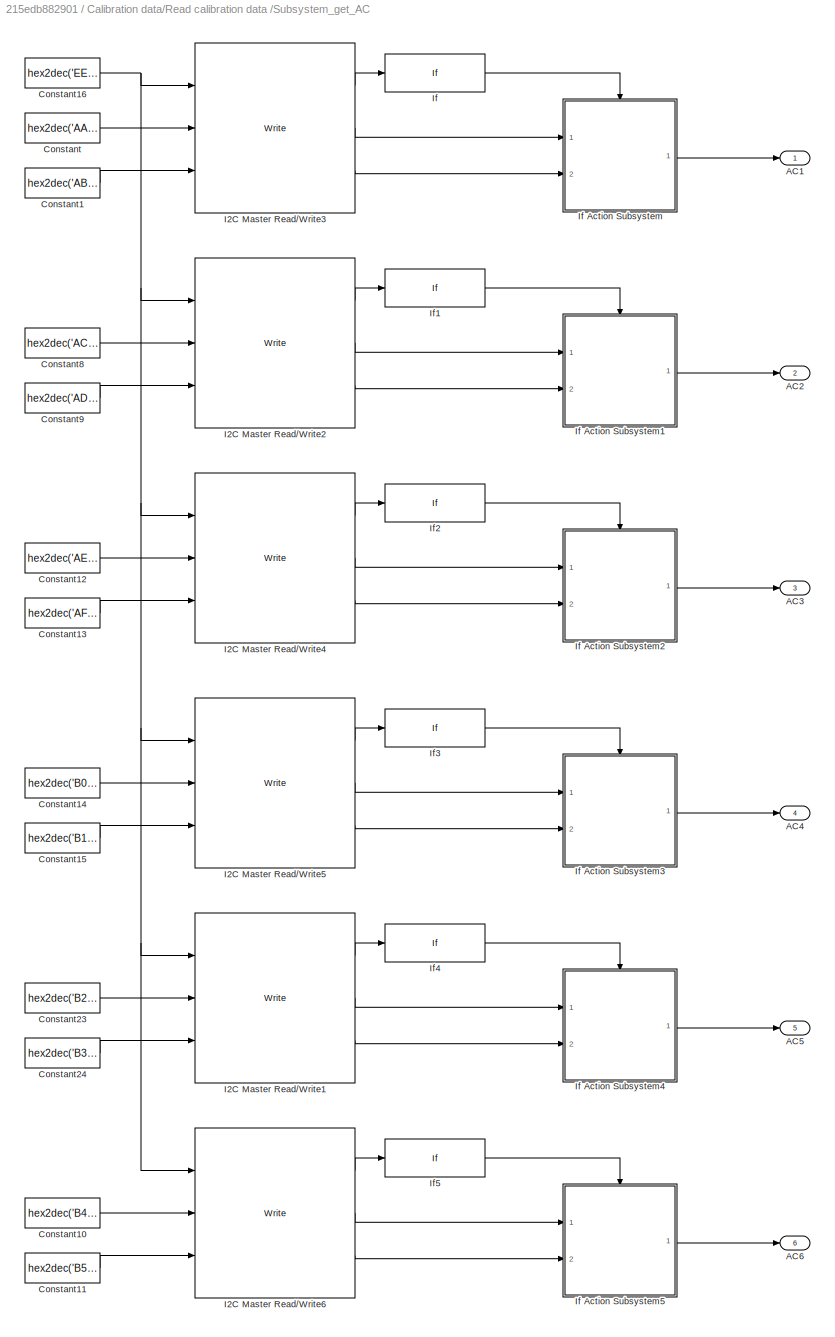
BLOCK [SubSystem] Calibration data/Read calibration data /Subsystem_get_AC
  Ports = [0, 6]
  RequestExecContextInheritance = off
BLOCK [Outport] Calibration data/Read calibration data /Subsystem_get_AC/AC1
  IconDisplay = Port number
BLOCK [Outport] Calibration data/Read calibration data /Subsystem_get_AC/AC2
  IconDisplay = Port number
  Port = 2
BLOCK [Outport] Calibration data/Read calibration data /Subsystem_get_AC/AC3
  IconDisplay = Port number
  Port = 3
BLOCK [Outport] Calibration data/Read calibration data /Subsystem_get_AC/AC4
  IconDisplay = Port number
  Port = 4
BLOCK [Outport] Calibration data/Read calibration data /Subsystem_get_AC/AC5
  IconDisplay = Port number
  Port = 5
BLOCK [Outport] Calibration data/Read calibration data /Subsystem_get_AC/AC6
  IconDisplay = Port number
  Port = 6
BLOCK [Constant] Calibration data/Read calibration data /Subsystem_get_AC/Constant
  OutDataTypeStr = uint8
  Value = hex2dec('AA')
BLOCK [Constant] Calibration data/Read calibration data /Subsystem_get_AC/Constant1
  OutDataTypeStr = uint8
  Value = hex2dec('AB')
BLOCK [Constant] Calibration data/Read calibration data /Subsystem_get_AC/Constant10
  OutDataTypeStr = uint8
  Value = hex2dec('B4')
BLOCK [Constant] Calibration data/Read calibration data /Subsystem_get_AC/Constant11
  OutDataTypeStr = uint8
  Value = hex2dec('B5')
BLOCK [Constant] Calibration data/Read calibration data /Subsystem_get_AC/Constant12
  OutDataTypeStr = uint8
  Value = hex2dec('AE')
BLOCK [Constant] Calibration data/Read calibration data /Subsystem_get_AC/Constant13
  OutDataTypeStr = uint8
  Value = hex2dec('AF')
BLOCK [Constant] Calibration data/Read calibration data /Subsystem_get_AC/Constant14
  OutDataTypeStr = uint8
  Value = hex2dec('B0')
BLOCK [Constant] Calibration data/Read calibration data /Subsystem_get_AC/Constant15
  OutDataTypeStr = uint8
  Value = hex2dec('B1')
BLOCK [Constant] Calibration data/Read calibration data /Subsystem_get_AC/Constant16
  OutDataTypeStr = uint8
  Value = hex2dec('EE')
BLOCK [Constant] Calibration data/Read calibration data /Subsystem_get_AC/Constant23
  OutDataTypeStr = uint8
  Value = hex2dec('B2')
BLOCK [Constant] Calibration data/Read calibration data /Subsystem_get_AC/Constant24
  OutDataTypeStr = uint8
  Value = hex2dec('B3')
BLOCK [Constant] Calibration data/Read calibration data /Subsystem_get_AC/Constant8
  OutDataTypeStr = uint8
  Value = hex2dec('AC')
BLOCK [Constant] Calibration data/Read calibration data /Subsystem_get_AC/Constant9
  OutDataTypeStr = uint8
  Value = hex2dec('AD')
BLOCK [Reference] Calibration data/Read calibration data /Subsystem_get_AC/I2C Master Read//Write1  REF=stm32f4_i2c_lib/I2C Master Read//Write
  Ports = [3, 3]
  SourceBlock = stm32f4_i2c_lib/I2C Master Read//Write
  SourceType = stm32f4_i2c
BLOCK [Reference] Calibration data/Read calibration data /Subsystem_get_AC/I2C Master Read//Write2  REF=stm32f4_i2c_lib/I2C Master Read//Write
  Ports = [3, 3]
  SourceBlock = stm32f4_i2c_lib/I2C Master Read//Write
  SourceType = stm32f4_i2c
BLOCK [Reference] Calibration data/Read calibration data /Subsystem_get_AC/I2C Master Read//Write3  REF=stm32f4_i2c_lib/I2C Master Read//Write
  Ports = [3, 3]
  SourceBlock = stm32f4_i2c_lib/I2C Master Read//Write
  SourceType = stm32f4_i2c
BLOCK [Reference] Calibration data/Read calibration data /Subsystem_get_AC/I2C Master Read//Write4  REF=stm32f4_i2c_lib/I2C Master Read//Write
  Ports = [3, 3]
  SourceBlock = stm32f4_i2c_lib/I2C Master Read//Write
  SourceType = stm32f4_i2c
BLOCK [Reference] Calibration data/Read calibration data /Subsystem_get_AC/I2C Master Read//Write5  REF=stm32f4_i2c_lib/I2C Master Read//Write
  Ports = [3, 3]
  SourceBlock = stm32f4_i2c_lib/I2C Master Read//Write
  SourceType = stm32f4_i2c
BLOCK [Reference] Calibration data/Read calibration data /Subsystem_get_AC/I2C Master Read//Write6  REF=stm32f4_i2c_lib/I2C Master Read//Write
  Ports = [3, 3]
  SourceBlock = stm32f4_i2c_lib/I2C Master Read//Write
  SourceType = stm32f4_i2c
BLOCK [If] Calibration data/Read calibration data /Subsystem_get_AC/If
  IfExpression = u1 == 0
  Ports = [1, 1]
  ShowElse = off
BLOCK [SubSystem] Calibration data/Read calibration data /Subsystem_get_AC/If Action Subsystem
  Ports = [2, 1, 0, 0, 0, 0, 0, 1]
  RequestExecContextInheritance = off
  TreatAsAtomicUnit = on
BLOCK [ActionPort] Calibration data/Read calibration data /Subsystem_get_AC/If Action Subsystem/Action Port
  ActionPortLabel = if { }
BLOCK [Sum] Calibration data/Read calibration data /Subsystem_get_AC/If Action Subsystem/Add9
  AccumDataTypeStr = uint32
  InputSameDT = off
  OutDataTypeStr = int32
  Ports = [2, 1]
  SaturateOnIntegerOverflow = off
BLOCK [Reference] Calibration data/Read calibration data /Subsystem_get_AC/If Action Subsystem/Compare To Constant  REF=simulink/Logic and Bit
Operations/Compare
To Constant
  Ports = [1, 1]
  SourceBlock = simulink/Logic and Bit\nOperations/Compare\nTo Constant
  SourceProductBaseCode = SL
  SourceProductName = Simulink
  SourceType = Compare To Constant
BLOCK [DataTypeConversion] Calibration data/Read calibration data /Subsystem_get_AC/If Action Subsystem/Data Type Conversion15
  OutDataTypeStr = uint32
  RndMeth = Floor
  SaturateOnIntegerOverflow = off
BLOCK [DataTypeConversion] Calibration data/Read calibration data /Subsystem_get_AC/If Action Subsystem/Data Type Conversion16
  OutDataTypeStr = uint32
  RndMeth = Floor
  SaturateOnIntegerOverflow = off
BLOCK [If] Calibration data/Read calibration data /Subsystem_get_AC/If Action Subsystem/If
  IfExpression = u1 >= 128
  Ports = [1, 2]
BLOCK [SubSystem] Calibration data/Read calibration data /Subsystem_get_AC/If Action Subsystem/If Action Subsystem
  Ports = [1, 1, 0, 0, 0, 0, 0, 1]
  RequestExecContextInheritance = off
  TreatAsAtomicUnit = on
BLOCK [ActionPort] Calibration data/Read calibration data /Subsystem_get_AC/If Action Subsystem/If Action Subsystem/Action Port
  ActionPortLabel = if { }
BLOCK [Constant] Calibration data/Read calibration data /Subsystem_get_AC/If Action Subsystem/If Action Subsystem/Constant
  Value = 65536
BLOCK [Inport] Calibration data/Read calibration data /Subsystem_get_AC/If Action Subsystem/If Action Subsystem/In1
  IconDisplay = Port number
BLOCK [Outport] Calibration data/Read calibration data /Subsystem_get_AC/If Action Subsystem/If Action Subsystem/Out1
  IconDisplay = Port number
BLOCK [Sum] Calibration data/Read calibration data /Subsystem_get_AC/If Action Subsystem/If Action Subsystem/Subtract
  InputSameDT = off
  Inputs = +-
  OutDataTypeStr = int32
  Ports = [2, 1]
  SaturateOnIntegerOverflow = off
BLOCK [SubSystem] Calibration data/Read calibration data /Subsystem_get_AC/If Action Subsystem/If Action Subsystem1
  Ports = [1, 1, 0, 0, 0, 0, 0, 1]
  RequestExecContextInheritance = off
  TreatAsAtomicUnit = on
BLOCK [ActionPort] Calibration data/Read calibration data /Subsystem_get_AC/If Action Subsystem/If Action Subsystem1/Action Port
  ActionPortLabel = else { }
BLOCK [Inport] Calibration data/Read calibration data /Subsystem_get_AC/If Action Subsystem/If Action Subsystem1/In1
  IconDisplay = Port number
BLOCK [Outport] Calibration data/Read calibration data /Subsystem_get_AC/If Action Subsystem/If Action Subsystem1/Out1
  IconDisplay = Port number
BLOCK [Inport] Calibration data/Read calibration data /Subsystem_get_AC/If Action Subsystem/In1
  IconDisplay = Port number
BLOCK [Inport] Calibration data/Read calibration data /Subsystem_get_AC/If Action Subsystem/In2
  IconDisplay = Port number
  Port = 2
BLOCK [Outport] Calibration data/Read calibration data /Subsystem_get_AC/If Action Subsystem/Out1
  IconDisplay = Port number
BLOCK [ArithShift] Calibration data/Read calibration data /Subsystem_get_AC/If Action Subsystem/Shift Arithmetic9
  BitShiftDirection = Left
  BitShiftNumber = 8
  InputPortMap = u0
  Ports = [1, 1]
BLOCK [Switch] Calibration data/Read calibration data /Subsystem_get_AC/If Action Subsystem/Switch
  Criteria = u2 > Threshold
  InputSameDT = off
  SaturateOnIntegerOverflow = off
BLOCK [SubSystem] Calibration data/Read calibration data /Subsystem_get_AC/If Action Subsystem1
  Ports = [2, 1, 0, 0, 0, 0, 0, 1]
  RequestExecContextInheritance = off
  TreatAsAtomicUnit = on
BLOCK [ActionPort] Calibration data/Read calibration data /Subsystem_get_AC/If Action Subsystem1/Action Port
  ActionPortLabel = if { }
BLOCK [Sum] Calibration data/Read calibration data /Subsystem_get_AC/If Action Subsystem1/Add9
  AccumDataTypeStr = uint32
  InputSameDT = off
  OutDataTypeStr = int32
  Ports = [2, 1]
  SaturateOnIntegerOverflow = off
BLOCK [Reference] Calibration data/Read calibration data /Subsystem_get_AC/If Action Subsystem1/Compare To Constant  REF=simulink/Logic and Bit
Operations/Compare
To Constant
  Ports = [1, 1]
  SourceBlock = simulink/Logic and Bit\nOperations/Compare\nTo Constant
  SourceProductBaseCode = SL
  SourceProductName = Simulink
  SourceType = Compare To Constant
BLOCK [DataTypeConversion] Calibration data/Read calibration data /Subsystem_get_AC/If Action Subsystem1/Data Type Conversion15
  OutDataTypeStr = uint32
  RndMeth = Floor
  SaturateOnIntegerOverflow = off
BLOCK [DataTypeConversion] Calibration data/Read calibration data /Subsystem_get_AC/If Action Subsystem1/Data Type Conversion16
  OutDataTypeStr = uint32
  RndMeth = Floor
  SaturateOnIntegerOverflow = off
BLOCK [If] Calibration data/Read calibration data /Subsystem_get_AC/If Action Subsystem1/If
  IfExpression = u1 >= 128
  Ports = [1, 2]
BLOCK [SubSystem] Calibration data/Read calibration data /Subsystem_get_AC/If Action Subsystem1/If Action Subsystem
  Ports = [1, 1, 0, 0, 0, 0, 0, 1]
  RequestExecContextInheritance = off
  TreatAsAtomicUnit = on
BLOCK [ActionPort] Calibration data/Read calibration data /Subsystem_get_AC/If Action Subsystem1/If Action Subsystem/Action Port
  ActionPortLabel = if { }
BLOCK [Constant] Calibration data/Read calibration data /Subsystem_get_AC/If Action Subsystem1/If Action Subsystem/Constant
  Value = 65536
BLOCK [Inport] Calibration data/Read calibration data /Subsystem_get_AC/If Action Subsystem1/If Action Subsystem/In1
  IconDisplay = Port number
BLOCK [Outport] Calibration data/Read calibration data /Subsystem_get_AC/If Action Subsystem1/If Action Subsystem/Out1
  IconDisplay = Port number
BLOCK [Sum] Calibration data/Read calibration data /Subsystem_get_AC/If Action Subsystem1/If Action Subsystem/Subtract
  InputSameDT = off
  Inputs = +-
  OutDataTypeStr = int32
  Ports = [2, 1]
  SaturateOnIntegerOverflow = off
BLOCK [SubSystem] Calibration data/Read calibration data /Subsystem_get_AC/If Action Subsystem1/If Action Subsystem1
  Ports = [1, 1, 0, 0, 0, 0, 0, 1]
  RequestExecContextInheritance = off
  TreatAsAtomicUnit = on
BLOCK [ActionPort] Calibration data/Read calibration data /Subsystem_get_AC/If Action Subsystem1/If Action Subsystem1/Action Port
  ActionPortLabel = else { }
BLOCK [Inport] Calibration data/Read calibration data /Subsystem_get_AC/If Action Subsystem1/If Action Subsystem1/In1
  IconDisplay = Port number
BLOCK [Outport] Calibration data/Read calibration data /Subsystem_get_AC/If Action Subsystem1/If Action Subsystem1/Out1
  IconDisplay = Port number
BLOCK [Inport] Calibration data/Read calibration data /Subsystem_get_AC/If Action Subsystem1/In1
  IconDisplay = Port number
BLOCK [Inport] Calibration data/Read calibration data /Subsystem_get_AC/If Action Subsystem1/In2
  IconDisplay = Port number
  Port = 2
BLOCK [Outport] Calibration data/Read calibration data /Subsystem_get_AC/If Action Subsystem1/Out1
  IconDisplay = Port number
BLOCK [ArithShift] Calibration data/Read calibration data /Subsystem_get_AC/If Action Subsystem1/Shift Arithmetic9
  BitShiftDirection = Left
  BitShiftNumber = 8
  InputPortMap = u0
  Ports = [1, 1]
BLOCK [Switch] Calibration data/Read calibration data /Subsystem_get_AC/If Action Subsystem1/Switch
  Criteria = u2 > Threshold
  InputSameDT = off
  SaturateOnIntegerOverflow = off
BLOCK [SubSystem] Calibration data/Read calibration data /Subsystem_get_AC/If Action Subsystem2
  Ports = [2, 1, 0, 0, 0, 0, 0, 1]
  RequestExecContextInheritance = off
  TreatAsAtomicUnit = on
BLOCK [ActionPort] Calibration data/Read calibration data /Subsystem_get_AC/If Action Subsystem2/Action Port
  ActionPortLabel = if { }
BLOCK [Sum] Calibration data/Read calibration data /Subsystem_get_AC/If Action Subsystem2/Add9
  AccumDataTypeStr = uint32
  InputSameDT = off
  OutDataTypeStr = int32
  Ports = [2, 1]
  SaturateOnIntegerOverflow = off
BLOCK [Reference] Calibration data/Read calibration data /Subsystem_get_AC/If Action Subsystem2/Compare To Constant  REF=simulink/Logic and Bit
Operations/Compare
To Constant
  Ports = [1, 1]
  SourceBlock = simulink/Logic and Bit\nOperations/Compare\nTo Constant
  SourceProductBaseCode = SL
  SourceProductName = Simulink
  SourceType = Compare To Constant
BLOCK [DataTypeConversion] Calibration data/Read calibration data /Subsystem_get_AC/If Action Subsystem2/Data Type Conversion15
  OutDataTypeStr = uint32
  RndMeth = Floor
  SaturateOnIntegerOverflow = off
BLOCK [DataTypeConversion] Calibration data/Read calibration data /Subsystem_get_AC/If Action Subsystem2/Data Type Conversion16
  OutDataTypeStr = uint32
  RndMeth = Floor
  SaturateOnIntegerOverflow = off
BLOCK [If] Calibration data/Read calibration data /Subsystem_get_AC/If Action Subsystem2/If
  IfExpression = u1 >= 128
  Ports = [1, 2]
BLOCK [SubSystem] Calibration data/Read calibration data /Subsystem_get_AC/If Action Subsystem2/If Action Subsystem
  Ports = [1, 1, 0, 0, 0, 0, 0, 1]
  RequestExecContextInheritance = off
  TreatAsAtomicUnit = on
BLOCK [ActionPort] Calibration data/Read calibration data /Subsystem_get_AC/If Action Subsystem2/If Action Subsystem/Action Port
  ActionPortLabel = if { }
BLOCK [Constant] Calibration data/Read calibration data /Subsystem_get_AC/If Action Subsystem2/If Action Subsystem/Constant
  Value = 65536
BLOCK [Inport] Calibration data/Read calibration data /Subsystem_get_AC/If Action Subsystem2/If Action Subsystem/In1
  IconDisplay = Port number
BLOCK [Outport] Calibration data/Read calibration data /Subsystem_get_AC/If Action Subsystem2/If Action Subsystem/Out1
  IconDisplay = Port number
BLOCK [Sum] Calibration data/Read calibration data /Subsystem_get_AC/If Action Subsystem2/If Action Subsystem/Subtract
  InputSameDT = off
  Inputs = +-
  OutDataTypeStr = int32
  Ports = [2, 1]
  SaturateOnIntegerOverflow = off
BLOCK [SubSystem] Calibration data/Read calibration data /Subsystem_get_AC/If Action Subsystem2/If Action Subsystem1
  Ports = [1, 1, 0, 0, 0, 0, 0, 1]
  RequestExecContextInheritance = off
  TreatAsAtomicUnit = on
BLOCK [ActionPort] Calibration data/Read calibration data /Subsystem_get_AC/If Action Subsystem2/If Action Subsystem1/Action Port
  ActionPortLabel = else { }
BLOCK [Inport] Calibration data/Read calibration data /Subsystem_get_AC/If Action Subsystem2/If Action Subsystem1/In1
  IconDisplay = Port number
BLOCK [Outport] Calibration data/Read calibration data /Subsystem_get_AC/If Action Subsystem2/If Action Subsystem1/Out1
  IconDisplay = Port number
BLOCK [Inport] Calibration data/Read calibration data /Subsystem_get_AC/If Action Subsystem2/In1
  IconDisplay = Port number
BLOCK [Inport] Calibration data/Read calibration data /Subsystem_get_AC/If Action Subsystem2/In2
  IconDisplay = Port number
  Port = 2
BLOCK [Outport] Calibration data/Read calibration data /Subsystem_get_AC/If Action Subsystem2/Out1
  IconDisplay = Port number
BLOCK [ArithShift] Calibration data/Read calibration data /Subsystem_get_AC/If Action Subsystem2/Shift Arithmetic9
  BitShiftDirection = Left
  BitShiftNumber = 8
  InputPortMap = u0
  Ports = [1, 1]
BLOCK [Switch] Calibration data/Read calibration data /Subsystem_get_AC/If Action Subsystem2/Switch
  Criteria = u2 > Threshold
  InputSameDT = off
  SaturateOnIntegerOverflow = off
BLOCK [SubSystem] Calibration data/Read calibration data /Subsystem_get_AC/If Action Subsystem3
  Ports = [2, 1, 0, 0, 0, 0, 0, 1]
  RequestExecContextInheritance = off
  TreatAsAtomicUnit = on
BLOCK [ActionPort] Calibration data/Read calibration data /Subsystem_get_AC/If Action Subsystem3/Action Port
  ActionPortLabel = if { }
BLOCK [Sum] Calibration data/Read calibration data /Subsystem_get_AC/If Action Subsystem3/Add9
  AccumDataTypeStr = uint32
  InputSameDT = off
  OutDataTypeStr = uint32
  Ports = [2, 1]
  SaturateOnIntegerOverflow = off
BLOCK [DataTypeConversion] Calibration data/Read calibration data /Subsystem_get_AC/If Action Subsystem3/Data Type Conversion15
  OutDataTypeStr = uint32
  RndMeth = Floor
  SaturateOnIntegerOverflow = off
BLOCK [DataTypeConversion] Calibration data/Read calibration data /Subsystem_get_AC/If Action Subsystem3/Data Type Conversion16
  OutDataTypeStr = uint32
  RndMeth = Floor
  SaturateOnIntegerOverflow = off
BLOCK [Inport] Calibration data/Read calibration data /Subsystem_get_AC/If Action Subsystem3/In1
  IconDisplay = Port number
BLOCK [Inport] Calibration data/Read calibration data /Subsystem_get_AC/If Action Subsystem3/In2
  IconDisplay = Port number
  Port = 2
BLOCK [Outport] Calibration data/Read calibration data /Subsystem_get_AC/If Action Subsystem3/Out1
  IconDisplay = Port number
BLOCK [ArithShift] Calibration data/Read calibration data /Subsystem_get_AC/If Action Subsystem3/Shift Arithmetic9
  BitShiftDirection = Left
  BitShiftNumber = 8
  InputPortMap = u0
  Ports = [1, 1]
BLOCK [SubSystem] Calibration data/Read calibration data /Subsystem_get_AC/If Action Subsystem4
  Ports = [2, 1, 0, 0, 0, 0, 0, 1]
  RequestExecContextInheritance = off
  TreatAsAtomicUnit = on
BLOCK [ActionPort] Calibration data/Read calibration data /Subsystem_get_AC/If Action Subsystem4/Action Port
  ActionPortLabel = if { }
BLOCK [Sum] Calibration data/Read calibration data /Subsystem_get_AC/If Action Subsystem4/Add9
  AccumDataTypeStr = uint32
  InputSameDT = off
  OutDataTypeStr = uint32
  Ports = [2, 1]
  SaturateOnIntegerOverflow = off
BLOCK [DataTypeConversion] Calibration data/Read calibration data /Subsystem_get_AC/If Action Subsystem4/Data Type Conversion15
  OutDataTypeStr = uint32
  RndMeth = Floor
  SaturateOnIntegerOverflow = off
BLOCK [DataTypeConversion] Calibration data/Read calibration data /Subsystem_get_AC/If Action Subsystem4/Data Type Conversion16
  OutDataTypeStr = uint32
  RndMeth = Floor
  SaturateOnIntegerOverflow = off
BLOCK [Inport] Calibration data/Read calibration data /Subsystem_get_AC/If Action Subsystem4/In1
  IconDisplay = Port number
BLOCK [Inport] Calibration data/Read calibration data /Subsystem_get_AC/If Action Subsystem4/In2
  IconDisplay = Port number
  Port = 2
BLOCK [Outport] Calibration data/Read calibration data /Subsystem_get_AC/If Action Subsystem4/Out1
  IconDisplay = Port number
BLOCK [ArithShift] Calibration data/Read calibration data /Subsystem_get_AC/If Action Subsystem4/Shift Arithmetic9
  BitShiftDirection = Left
  BitShiftNumber = 8
  InputPortMap = u0
  Ports = [1, 1]
BLOCK [SubSystem] Calibration data/Read calibration data /Subsystem_get_AC/If Action Subsystem5
  Ports = [2, 1, 0, 0, 0, 0, 0, 1]
  RequestExecContextInheritance = off
  TreatAsAtomicUnit = on
BLOCK [ActionPort] Calibration data/Read calibration data /Subsystem_get_AC/If Action Subsystem5/Action Port
  ActionPortLabel = if { }
BLOCK [Sum] Calibration data/Read calibration data /Subsystem_get_AC/If Action Subsystem5/Add9
  AccumDataTypeStr = uint32
  InputSameDT = off
  OutDataTypeStr = uint32
  Ports = [2, 1]
  SaturateOnIntegerOverflow = off
BLOCK [DataTypeConversion] Calibration data/Read calibration data /Subsystem_get_AC/If Action Subsystem5/Data Type Conversion15
  OutDataTypeStr = uint32
  RndMeth = Floor
  SaturateOnIntegerOverflow = off
BLOCK [DataTypeConversion] Calibration data/Read calibration data /Subsystem_get_AC/If Action Subsystem5/Data Type Conversion16
  OutDataTypeStr = uint32
  RndMeth = Floor
  SaturateOnIntegerOverflow = off
BLOCK [Inport] Calibration data/Read calibration data /Subsystem_get_AC/If Action Subsystem5/In1
  IconDisplay = Port number
BLOCK [Inport] Calibration data/Read calibration data /Subsystem_get_AC/If Action Subsystem5/In2
  IconDisplay = Port number
  Port = 2
BLOCK [Outport] Calibration data/Read calibration data /Subsystem_get_AC/If Action Subsystem5/Out1
  IconDisplay = Port number
BLOCK [ArithShift] Calibration data/Read calibration data /Subsystem_get_AC/If Action Subsystem5/Shift Arithmetic9
  BitShiftDirection = Left
  BitShiftNumber = 8
  InputPortMap = u0
  Ports = [1, 1]
BLOCK [If] Calibration data/Read calibration data /Subsystem_get_AC/If1
  IfExpression = u1 == 0
  Ports = [1, 1]
  ShowElse = off
BLOCK [If] Calibration data/Read calibration data /Subsystem_get_AC/If2
  IfExpression = u1 == 0
  Ports = [1, 1]
  ShowElse = off
BLOCK [If] Calibration data/Read calibration data /Subsystem_get_AC/If3
  IfExpression = u1 == 0
  Ports = [1, 1]
  ShowElse = off
BLOCK [If] Calibration data/Read calibration data /Subsystem_get_AC/If4
  IfExpression = u1 == 0
  Ports = [1, 1]
  ShowElse = off
BLOCK [If] Calibration data/Read calibration data /Subsystem_get_AC/If5
  IfExpression = u1 == 0
  Ports = [1, 1]
  ShowElse = off
BLOCK [SubSystem] Calibration data/Read calibration data /Subsystem_get_B
  Ports = [0, 2]
  RequestExecContextInheritance = off
BLOCK [Outport] Calibration data/Read calibration data /Subsystem_get_B/B1
  IconDisplay = Port number
BLOCK [Outport] Calibration data/Read calibration data /Subsystem_get_B/B2
  IconDisplay = Port number
  Port = 2
BLOCK [Constant] Calibration data/Read calibration data /Subsystem_get_B/Constant12
  OutDataTypeStr = uint8
  Value = hex2dec('B6')
BLOCK [Constant] Calibration data/Read calibration data /Subsystem_get_B/Constant13
  OutDataTypeStr = uint8
  Value = hex2dec('B7')
BLOCK [Constant] Calibration data/Read calibration data /Subsystem_get_B/Constant14
  OutDataTypeStr = uint8
  Value = hex2dec('B8')
BLOCK [Constant] Calibration data/Read calibration data /Subsystem_get_B/Constant15
  OutDataTypeStr = uint8
  Value = hex2dec('B9')
BLOCK [Constant] Calibration data/Read calibration data /Subsystem_get_B/Constant16
  OutDataTypeStr = uint8
  Value = hex2dec('EE')
BLOCK [Reference] Calibration data/Read calibration data /Subsystem_get_B/I2C Master Read//Write2  REF=stm32f4_i2c_lib/I2C Master Read//Write
  Ports = [3, 3]
  SourceBlock = stm32f4_i2c_lib/I2C Master Read//Write
  SourceType = stm32f4_i2c
BLOCK [Reference] Calibration data/Read calibration data /Subsystem_get_B/I2C Master Read//Write3  REF=stm32f4_i2c_lib/I2C Master Read//Write
  Ports = [3, 3]
  SourceBlock = stm32f4_i2c_lib/I2C Master Read//Write
  SourceType = stm32f4_i2c
BLOCK [If] Calibration data/Read calibration data /Subsystem_get_B/If
  IfExpression = u1 == 0
  Ports = [1, 1]
  ShowElse = off
BLOCK [SubSystem] Calibration data/Read calibration data /Subsystem_get_B/If Action Subsystem
  Ports = [2, 1, 0, 0, 0, 0, 0, 1]
  RequestExecContextInheritance = off
  TreatAsAtomicUnit = on
BLOCK [ActionPort] Calibration data/Read calibration data /Subsystem_get_B/If Action Subsystem/Action Port
  ActionPortLabel = if { }
BLOCK [Sum] Calibration data/Read calibration data /Subsystem_get_B/If Action Subsystem/Add9
  AccumDataTypeStr = uint32
  InputSameDT = off
  OutDataTypeStr = int32
  Ports = [2, 1]
  SaturateOnIntegerOverflow = off
BLOCK [Reference] Calibration data/Read calibration data /Subsystem_get_B/If Action Subsystem/Compare To Constant  REF=simulink/Logic and Bit
Operations/Compare
To Constant
  Ports = [1, 1]
  SourceBlock = simulink/Logic and Bit\nOperations/Compare\nTo Constant
  SourceProductBaseCode = SL
  SourceProductName = Simulink
  SourceType = Compare To Constant
BLOCK [DataTypeConversion] Calibration data/Read calibration data /Subsystem_get_B/If Action Subsystem/Data Type Conversion15
  OutDataTypeStr = uint32
  RndMeth = Floor
  SaturateOnIntegerOverflow = off
BLOCK [DataTypeConversion] Calibration data/Read calibration data /Subsystem_get_B/If Action Subsystem/Data Type Conversion16
  OutDataTypeStr = uint32
  RndMeth = Floor
  SaturateOnIntegerOverflow = off
BLOCK [If] Calibration data/Read calibration data /Subsystem_get_B/If Action Subsystem/If
  IfExpression = u1 >= 128
  Ports = [1, 2]
BLOCK [SubSystem] Calibration data/Read calibration data /Subsystem_get_B/If Action Subsystem/If Action Subsystem
  Ports = [1, 1, 0, 0, 0, 0, 0, 1]
  RequestExecContextInheritance = off
  TreatAsAtomicUnit = on
BLOCK [ActionPort] Calibration data/Read calibration data /Subsystem_get_B/If Action Subsystem/If Action Subsystem/Action Port
  ActionPortLabel = if { }
BLOCK [Constant] Calibration data/Read calibration data /Subsystem_get_B/If Action Subsystem/If Action Subsystem/Constant
  Value = 65536
BLOCK [Inport] Calibration data/Read calibration data /Subsystem_get_B/If Action Subsystem/If Action Subsystem/In1
  IconDisplay = Port number
BLOCK [Outport] Calibration data/Read calibration data /Subsystem_get_B/If Action Subsystem/If Action Subsystem/Out1
  IconDisplay = Port number
BLOCK [Sum] Calibration data/Read calibration data /Subsystem_get_B/If Action Subsystem/If Action Subsystem/Subtract
  InputSameDT = off
  Inputs = +-
  OutDataTypeStr = int32
  Ports = [2, 1]
  SaturateOnIntegerOverflow = off
BLOCK [SubSystem] Calibration data/Read calibration data /Subsystem_get_B/If Action Subsystem/If Action Subsystem1
  Ports = [1, 1, 0, 0, 0, 0, 0, 1]
  RequestExecContextInheritance = off
  TreatAsAtomicUnit = on
BLOCK [ActionPort] Calibration data/Read calibration data /Subsystem_get_B/If Action Subsystem/If Action Subsystem1/Action Port
  ActionPortLabel = else { }
BLOCK [Inport] Calibration data/Read calibration data /Subsystem_get_B/If Action Subsystem/If Action Subsystem1/In1
  IconDisplay = Port number
BLOCK [Outport] Calibration data/Read calibration data /Subsystem_get_B/If Action Subsystem/If Action Subsystem1/Out1
  IconDisplay = Port number
BLOCK [Inport] Calibration data/Read calibration data /Subsystem_get_B/If Action Subsystem/In1
  IconDisplay = Port number
BLOCK [Inport] Calibration data/Read calibration data /Subsystem_get_B/If Action Subsystem/In2
  IconDisplay = Port number
  Port = 2
BLOCK [Outport] Calibration data/Read calibration data /Subsystem_get_B/If Action Subsystem/Out1
  IconDisplay = Port number
BLOCK [ArithShift] Calibration data/Read calibration data /Subsystem_get_B/If Action Subsystem/Shift Arithmetic9
  BitShiftDirection = Left
  BitShiftNumber = 8
  InputPortMap = u0
  Ports = [1, 1]
BLOCK [Switch] Calibration data/Read calibration data /Subsystem_get_B/If Action Subsystem/Switch
  Criteria = u2 > Threshold
  InputSameDT = off
  SaturateOnIntegerOverflow = off
BLOCK [SubSystem] Calibration data/Read calibration data /Subsystem_get_B/If Action Subsystem1
  Ports = [2, 1, 0, 0, 0, 0, 0, 1]
  RequestExecContextInheritance = off
  TreatAsAtomicUnit = on
BLOCK [ActionPort] Calibration data/Read calibration data /Subsystem_get_B/If Action Subsystem1/Action Port
  ActionPortLabel = if { }
BLOCK [Sum] Calibration data/Read calibration data /Subsystem_get_B/If Action Subsystem1/Add9
  AccumDataTypeStr = uint32
  InputSameDT = off
  OutDataTypeStr = int32
  Ports = [2, 1]
  SaturateOnIntegerOverflow = off
BLOCK [Reference] Calibration data/Read calibration data /Subsystem_get_B/If Action Subsystem1/Compare To Constant  REF=simulink/Logic and Bit
Operations/Compare
To Constant
  Ports = [1, 1]
  SourceBlock = simulink/Logic and Bit\nOperations/Compare\nTo Constant
  SourceProductBaseCode = SL
  SourceProductName = Simulink
  SourceType = Compare To Constant
BLOCK [DataTypeConversion] Calibration data/Read calibration data /Subsystem_get_B/If Action Subsystem1/Data Type Conversion15
  OutDataTypeStr = uint32
  RndMeth = Floor
  SaturateOnIntegerOverflow = off
BLOCK [DataTypeConversion] Calibration data/Read calibration data /Subsystem_get_B/If Action Subsystem1/Data Type Conversion16
  OutDataTypeStr = uint32
  RndMeth = Floor
  SaturateOnIntegerOverflow = off
BLOCK [If] Calibration data/Read calibration data /Subsystem_get_B/If Action Subsystem1/If
  IfExpression = u1 >= 128
  Ports = [1, 2]
BLOCK [SubSystem] Calibration data/Read calibration data /Subsystem_get_B/If Action Subsystem1/If Action Subsystem
  Ports = [1, 1, 0, 0, 0, 0, 0, 1]
  RequestExecContextInheritance = off
  TreatAsAtomicUnit = on
BLOCK [ActionPort] Calibration data/Read calibration data /Subsystem_get_B/If Action Subsystem1/If Action Subsystem/Action Port
  ActionPortLabel = if { }
BLOCK [Constant] Calibration data/Read calibration data /Subsystem_get_B/If Action Subsystem1/If Action Subsystem/Constant
  Value = 65536
BLOCK [Inport] Calibration data/Read calibration data /Subsystem_get_B/If Action Subsystem1/If Action Subsystem/In1
  IconDisplay = Port number
BLOCK [Outport] Calibration data/Read calibration data /Subsystem_get_B/If Action Subsystem1/If Action Subsystem/Out1
  IconDisplay = Port number
BLOCK [Sum] Calibration data/Read calibration data /Subsystem_get_B/If Action Subsystem1/If Action Subsystem/Subtract
  InputSameDT = off
  Inputs = +-
  OutDataTypeStr = int32
  Ports = [2, 1]
  SaturateOnIntegerOverflow = off
BLOCK [SubSystem] Calibration data/Read calibration data /Subsystem_get_B/If Action Subsystem1/If Action Subsystem1
  Ports = [1, 1, 0, 0, 0, 0, 0, 1]
  RequestExecContextInheritance = off
  TreatAsAtomicUnit = on
BLOCK [ActionPort] Calibration data/Read calibration data /Subsystem_get_B/If Action Subsystem1/If Action Subsystem1/Action Port
  ActionPortLabel = else { }
BLOCK [Inport] Calibration data/Read calibration data /Subsystem_get_B/If Action Subsystem1/If Action Subsystem1/In1
  IconDisplay = Port number
BLOCK [Outport] Calibration data/Read calibration data /Subsystem_get_B/If Action Subsystem1/If Action Subsystem1/Out1
  IconDisplay = Port number
BLOCK [Inport] Calibration data/Read calibration data /Subsystem_get_B/If Action Subsystem1/In1
  IconDisplay = Port number
BLOCK [Inport] Calibration data/Read calibration data /Subsystem_get_B/If Action Subsystem1/In2
  IconDisplay = Port number
  Port = 2
BLOCK [Outport] Calibration data/Read calibration data /Subsystem_get_B/If Action Subsystem1/Out1
  IconDisplay = Port number
BLOCK [ArithShift] Calibration data/Read calibration data /Subsystem_get_B/If Action Subsystem1/Shift Arithmetic9
  BitShiftDirection = Left
  BitShiftNumber = 8
  InputPortMap = u0
  Ports = [1, 1]
BLOCK [Switch] Calibration data/Read calibration data /Subsystem_get_B/If Action Subsystem1/Switch
  Criteria = u2 > Threshold
  InputSameDT = off
  SaturateOnIntegerOverflow = off
BLOCK [If] Calibration data/Read calibration data /Subsystem_get_B/If1
  IfExpression = u1 == 0
  Ports = [1, 1]
  ShowElse = off
BLOCK [SubSystem] Calibration data/Read calibration data /Subsystem_get_M
  Ports = [0, 3]
  RequestExecContextInheritance = off
BLOCK [Constant] Calibration data/Read calibration data /Subsystem_get_M/Constant16
  OutDataTypeStr = uint8
  Value = hex2dec('EE')
BLOCK [Constant] Calibration data/Read calibration data /Subsystem_get_M/Constant17
  OutDataTypeStr = uint8
  Value = hex2dec('BA')
BLOCK [Constant] Calibration data/Read calibration data /Subsystem_get_M/Constant18
  OutDataTypeStr = uint8
  Value = hex2dec('BC')
BLOCK [Constant] Calibration data/Read calibration data /Subsystem_get_M/Constant19
  OutDataTypeStr = uint8
  Value = hex2dec('BD')
BLOCK [Constant] Calibration data/Read calibration data /Subsystem_get_M/Constant20
  OutDataTypeStr = uint8
  Value = hex2dec('BB')
BLOCK [Constant] Calibration data/Read calibration data /Subsystem_get_M/Constant21
  OutDataTypeStr = uint8
  Value = hex2dec('BE')
BLOCK [Constant] Calibration data/Read calibration data /Subsystem_get_M/Constant22
  OutDataTypeStr = uint8
  Value = hex2dec('BF')
BLOCK [Reference] Calibration data/Read calibration data /Subsystem_get_M/I2C Master Read//Write2  REF=stm32f4_i2c_lib/I2C Master Read//Write
  Ports = [3, 3]
  SourceBlock = stm32f4_i2c_lib/I2C Master Read//Write
  SourceType = stm32f4_i2c
BLOCK [Reference] Calibration data/Read calibration data /Subsystem_get_M/I2C Master Read//Write3  REF=stm32f4_i2c_lib/I2C Master Read//Write
  Ports = [3, 3]
  SourceBlock = stm32f4_i2c_lib/I2C Master Read//Write
  SourceType = stm32f4_i2c
BLOCK [Reference] Calibration data/Read calibration data /Subsystem_get_M/I2C Master Read//Write4  REF=stm32f4_i2c_lib/I2C Master Read//Write
  Ports = [3, 3]
  SourceBlock = stm32f4_i2c_lib/I2C Master Read//Write
  SourceType = stm32f4_i2c
BLOCK [If] Calibration data/Read calibration data /Subsystem_get_M/If
  IfExpression = u1 == 0
  Ports = [1, 1]
  ShowElse = off
BLOCK [SubSystem] Calibration data/Read calibration data /Subsystem_get_M/If Action Subsystem
  Ports = [2, 1, 0, 0, 0, 0, 0, 1]
  RequestExecContextInheritance = off
  TreatAsAtomicUnit = on
BLOCK [ActionPort] Calibration data/Read calibration data /Subsystem_get_M/If Action Subsystem/Action Port
  ActionPortLabel = if { }
BLOCK [Sum] Calibration data/Read calibration data /Subsystem_get_M/If Action Subsystem/Add9
  AccumDataTypeStr = uint32
  InputSameDT = off
  OutDataTypeStr = int32
  Ports = [2, 1]
  SaturateOnIntegerOverflow = off
BLOCK [Reference] Calibration data/Read calibration data /Subsystem_get_M/If Action Subsystem/Compare To Constant  REF=simulink/Logic and Bit
Operations/Compare
To Constant
  Ports = [1, 1]
  SourceBlock = simulink/Logic and Bit\nOperations/Compare\nTo Constant
  SourceProductBaseCode = SL
  SourceProductName = Simulink
  SourceType = Compare To Constant
BLOCK [DataTypeConversion] Calibration data/Read calibration data /Subsystem_get_M/If Action Subsystem/Data Type Conversion15
  OutDataTypeStr = uint32
  RndMeth = Floor
  SaturateOnIntegerOverflow = off
BLOCK [DataTypeConversion] Calibration data/Read calibration data /Subsystem_get_M/If Action Subsystem/Data Type Conversion16
  OutDataTypeStr = uint32
  RndMeth = Floor
  SaturateOnIntegerOverflow = off
BLOCK [If] Calibration data/Read calibration data /Subsystem_get_M/If Action Subsystem/If
  IfExpression = u1 >= 128
  Ports = [1, 2]
BLOCK [SubSystem] Calibration data/Read calibration data /Subsystem_get_M/If Action Subsystem/If Action Subsystem
  Ports = [1, 1, 0, 0, 0, 0, 0, 1]
  RequestExecContextInheritance = off
  TreatAsAtomicUnit = on
BLOCK [ActionPort] Calibration data/Read calibration data /Subsystem_get_M/If Action Subsystem/If Action Subsystem/Action Port
  ActionPortLabel = if { }
BLOCK [Constant] Calibration data/Read calibration data /Subsystem_get_M/If Action Subsystem/If Action Subsystem/Constant
  Value = 65536
BLOCK [Inport] Calibration data/Read calibration data /Subsystem_get_M/If Action Subsystem/If Action Subsystem/In1
  IconDisplay = Port number
BLOCK [Outport] Calibration data/Read calibration data /Subsystem_get_M/If Action Subsystem/If Action Subsystem/Out1
  IconDisplay = Port number
BLOCK [Sum] Calibration data/Read calibration data /Subsystem_get_M/If Action Subsystem/If Action Subsystem/Subtract
  InputSameDT = off
  Inputs = +-
  OutDataTypeStr = int32
  Ports = [2, 1]
  SaturateOnIntegerOverflow = off
BLOCK [SubSystem] Calibration data/Read calibration data /Subsystem_get_M/If Action Subsystem/If Action Subsystem1
  Ports = [1, 1, 0, 0, 0, 0, 0, 1]
  RequestExecContextInheritance = off
  TreatAsAtomicUnit = on
BLOCK [ActionPort] Calibration data/Read calibration data /Subsystem_get_M/If Action Subsystem/If Action Subsystem1/Action Port
  ActionPortLabel = else { }
BLOCK [Inport] Calibration data/Read calibration data /Subsystem_get_M/If Action Subsystem/If Action Subsystem1/In1
  IconDisplay = Port number
BLOCK [Outport] Calibration data/Read calibration data /Subsystem_get_M/If Action Subsystem/If Action Subsystem1/Out1
  IconDisplay = Port number
BLOCK [Inport] Calibration data/Read calibration data /Subsystem_get_M/If Action Subsystem/In1
  IconDisplay = Port number
BLOCK [Inport] Calibration data/Read calibration data /Subsystem_get_M/If Action Subsystem/In2
  IconDisplay = Port number
  Port = 2
BLOCK [Outport] Calibration data/Read calibration data /Subsystem_get_M/If Action Subsystem/Out1
  IconDisplay = Port number
BLOCK [ArithShift] Calibration data/Read calibration data /Subsystem_get_M/If Action Subsystem/Shift Arithmetic9
  BitShiftDirection = Left
  BitShiftNumber = 8
  InputPortMap = u0
  Ports = [1, 1]
BLOCK [Switch] Calibration data/Read calibration data /Subsystem_get_M/If Action Subsystem/Switch
  Criteria = u2 > Threshold
  InputSameDT = off
  SaturateOnIntegerOverflow = off
BLOCK [SubSystem] Calibration data/Read calibration data /Subsystem_get_M/If Action Subsystem1
  Ports = [2, 1, 0, 0, 0, 0, 0, 1]
  RequestExecContextInheritance = off
  TreatAsAtomicUnit = on
BLOCK [ActionPort] Calibration data/Read calibration data /Subsystem_get_M/If Action Subsystem1/Action Port
  ActionPortLabel = if { }
BLOCK [Sum] Calibration data/Read calibration data /Subsystem_get_M/If Action Subsystem1/Add9
  AccumDataTypeStr = uint32
  InputSameDT = off
  OutDataTypeStr = int32
  Ports = [2, 1]
  SaturateOnIntegerOverflow = off
BLOCK [Reference] Calibration data/Read calibration data /Subsystem_get_M/If Action Subsystem1/Compare To Constant  REF=simulink/Logic and Bit
Operations/Compare
To Constant
  Ports = [1, 1]
  SourceBlock = simulink/Logic and Bit\nOperations/Compare\nTo Constant
  SourceProductBaseCode = SL
  SourceProductName = Simulink
  SourceType = Compare To Constant
BLOCK [DataTypeConversion] Calibration data/Read calibration data /Subsystem_get_M/If Action Subsystem1/Data Type Conversion15
  OutDataTypeStr = uint32
  RndMeth = Floor
  SaturateOnIntegerOverflow = off
BLOCK [DataTypeConversion] Calibration data/Read calibration data /Subsystem_get_M/If Action Subsystem1/Data Type Conversion16
  OutDataTypeStr = uint32
  RndMeth = Floor
  SaturateOnIntegerOverflow = off
BLOCK [If] Calibration data/Read calibration data /Subsystem_get_M/If Action Subsystem1/If
  IfExpression = u1 >= 128
  Ports = [1, 2]
BLOCK [SubSystem] Calibration data/Read calibration data /Subsystem_get_M/If Action Subsystem1/If Action Subsystem
  Ports = [1, 1, 0, 0, 0, 0, 0, 1]
  RequestExecContextInheritance = off
  TreatAsAtomicUnit = on
BLOCK [ActionPort] Calibration data/Read calibration data /Subsystem_get_M/If Action Subsystem1/If Action Subsystem/Action Port
  ActionPortLabel = if { }
BLOCK [Constant] Calibration data/Read calibration data /Subsystem_get_M/If Action Subsystem1/If Action Subsystem/Constant
  Value = 65536
BLOCK [Inport] Calibration data/Read calibration data /Subsystem_get_M/If Action Subsystem1/If Action Subsystem/In1
  IconDisplay = Port number
BLOCK [Outport] Calibration data/Read calibration data /Subsystem_get_M/If Action Subsystem1/If Action Subsystem/Out1
  IconDisplay = Port number
BLOCK [Sum] Calibration data/Read calibration data /Subsystem_get_M/If Action Subsystem1/If Action Subsystem/Subtract
  InputSameDT = off
  Inputs = +-
  OutDataTypeStr = int32
  Ports = [2, 1]
  SaturateOnIntegerOverflow = off
BLOCK [SubSystem] Calibration data/Read calibration data /Subsystem_get_M/If Action Subsystem1/If Action Subsystem1
  Ports = [1, 1, 0, 0, 0, 0, 0, 1]
  RequestExecContextInheritance = off
  TreatAsAtomicUnit = on
BLOCK [ActionPort] Calibration data/Read calibration data /Subsystem_get_M/If Action Subsystem1/If Action Subsystem1/Action Port
  ActionPortLabel = else { }
BLOCK [Inport] Calibration data/Read calibration data /Subsystem_get_M/If Action Subsystem1/If Action Subsystem1/In1
  IconDisplay = Port number
BLOCK [Outport] Calibration data/Read calibration data /Subsystem_get_M/If Action Subsystem1/If Action Subsystem1/Out1
  IconDisplay = Port number
BLOCK [Inport] Calibration data/Read calibration data /Subsystem_get_M/If Action Subsystem1/In1
  IconDisplay = Port number
BLOCK [Inport] Calibration data/Read calibration data /Subsystem_get_M/If Action Subsystem1/In2
  IconDisplay = Port number
  Port = 2
BLOCK [Outport] Calibration data/Read calibration data /Subsystem_get_M/If Action Subsystem1/Out1
  IconDisplay = Port number
BLOCK [ArithShift] Calibration data/Read calibration data /Subsystem_get_M/If Action Subsystem1/Shift Arithmetic9
  BitShiftDirection = Left
  BitShiftNumber = 8
  InputPortMap = u0
  Ports = [1, 1]
BLOCK [Switch] Calibration data/Read calibration data /Subsystem_get_M/If Action Subsystem1/Switch
  Criteria = u2 > Threshold
  InputSameDT = off
  SaturateOnIntegerOverflow = off
BLOCK [SubSystem] Calibration data/Read calibration data /Subsystem_get_M/If Action Subsystem2
  Ports = [2, 1, 0, 0, 0, 0, 0, 1]
  RequestExecContextInheritance = off
  TreatAsAtomicUnit = on
BLOCK [ActionPort] Calibration data/Read calibration data /Subsystem_get_M/If Action Subsystem2/Action Port
  ActionPortLabel = if { }
BLOCK [Sum] Calibration data/Read calibration data /Subsystem_get_M/If Action Subsystem2/Add9
  AccumDataTypeStr = uint32
  InputSameDT = off
  OutDataTypeStr = int32
  Ports = [2, 1]
  SaturateOnIntegerOverflow = off
BLOCK [Reference] Calibration data/Read calibration data /Subsystem_get_M/If Action Subsystem2/Compare To Constant  REF=simulink/Logic and Bit
Operations/Compare
To Constant
  Ports = [1, 1]
  SourceBlock = simulink/Logic and Bit\nOperations/Compare\nTo Constant
  SourceProductBaseCode = SL
  SourceProductName = Simulink
  SourceType = Compare To Constant
BLOCK [DataTypeConversion] Calibration data/Read calibration data /Subsystem_get_M/If Action Subsystem2/Data Type Conversion15
  OutDataTypeStr = uint32
  RndMeth = Floor
  SaturateOnIntegerOverflow = off
BLOCK [DataTypeConversion] Calibration data/Read calibration data /Subsystem_get_M/If Action Subsystem2/Data Type Conversion16
  OutDataTypeStr = uint32
  RndMeth = Floor
  SaturateOnIntegerOverflow = off
BLOCK [If] Calibration data/Read calibration data /Subsystem_get_M/If Action Subsystem2/If
  IfExpression = u1 >= 128
  Ports = [1, 2]
BLOCK [SubSystem] Calibration data/Read calibration data /Subsystem_get_M/If Action Subsystem2/If Action Subsystem
  Ports = [1, 1, 0, 0, 0, 0, 0, 1]
  RequestExecContextInheritance = off
  TreatAsAtomicUnit = on
BLOCK [ActionPort] Calibration data/Read calibration data /Subsystem_get_M/If Action Subsystem2/If Action Subsystem/Action Port
  ActionPortLabel = if { }
BLOCK [Constant] Calibration data/Read calibration data /Subsystem_get_M/If Action Subsystem2/If Action Subsystem/Constant
  Value = 65536
BLOCK [Inport] Calibration data/Read calibration data /Subsystem_get_M/If Action Subsystem2/If Action Subsystem/In1
  IconDisplay = Port number
BLOCK [Outport] Calibration data/Read calibration data /Subsystem_get_M/If Action Subsystem2/If Action Subsystem/Out1
  IconDisplay = Port number
BLOCK [Sum] Calibration data/Read calibration data /Subsystem_get_M/If Action Subsystem2/If Action Subsystem/Subtract
  InputSameDT = off
  Inputs = +-
  OutDataTypeStr = int32
  Ports = [2, 1]
  SaturateOnIntegerOverflow = off
BLOCK [SubSystem] Calibration data/Read calibration data /Subsystem_get_M/If Action Subsystem2/If Action Subsystem1
  Ports = [1, 1, 0, 0, 0, 0, 0, 1]
  RequestExecContextInheritance = off
  TreatAsAtomicUnit = on
BLOCK [ActionPort] Calibration data/Read calibration data /Subsystem_get_M/If Action Subsystem2/If Action Subsystem1/Action Port
  ActionPortLabel = else { }
BLOCK [Inport] Calibration data/Read calibration data /Subsystem_get_M/If Action Subsystem2/If Action Subsystem1/In1
  IconDisplay = Port number
BLOCK [Outport] Calibration data/Read calibration data /Subsystem_get_M/If Action Subsystem2/If Action Subsystem1/Out1
  IconDisplay = Port number
BLOCK [Inport] Calibration data/Read calibration data /Subsystem_get_M/If Action Subsystem2/In1
  IconDisplay = Port number
BLOCK [Inport] Calibration data/Read calibration data /Subsystem_get_M/If Action Subsystem2/In2
  IconDisplay = Port number
  Port = 2
BLOCK [Outport] Calibration data/Read calibration data /Subsystem_get_M/If Action Subsystem2/Out1
  IconDisplay = Port number
BLOCK [ArithShift] Calibration data/Read calibration data /Subsystem_get_M/If Action Subsystem2/Shift Arithmetic9
  BitShiftDirection = Left
  BitShiftNumber = 8
  InputPortMap = u0
  Ports = [1, 1]
BLOCK [Switch] Calibration data/Read calibration data /Subsystem_get_M/If Action Subsystem2/Switch
  Criteria = u2 > Threshold
  InputSameDT = off
  SaturateOnIntegerOverflow = off
BLOCK [If] Calibration data/Read calibration data /Subsystem_get_M/If1
  IfExpression = u1 == 0
  Ports = [1, 1]
  ShowElse = off
BLOCK [If] Calibration data/Read calibration data /Subsystem_get_M/If2
  IfExpression = u1 == 0
  Ports = [1, 1]
  ShowElse = off
BLOCK [Outport] Calibration data/Read calibration data /Subsystem_get_M/MB
  IconDisplay = Port number
BLOCK [Outport] Calibration data/Read calibration data /Subsystem_get_M/MC
  IconDisplay = Port number
  Port = 2
BLOCK [Outport] Calibration data/Read calibration data /Subsystem_get_M/MD
  IconDisplay = Port number
  Port = 3
BLOCK [Terminator] Calibration data/Terminator
BLOCK [DataStoreMemory] Calibration_Enable 
  DataStoreName = S_0
  InitialValue = 1
  ReadBeforeWriteMsg = warning
  ShowAdditionalParam = off
  WriteAfterReadMsg = warning
  WriteAfterWriteMsg = warning
BLOCK [DataStoreMemory] Data Store Memory
  DataStoreName = Init_ADXL
  InitialValue = 1
  ReadBeforeWriteMsg = warning
  ShowAdditionalParam = off
  WriteAfterReadMsg = warning
  WriteAfterWriteMsg = warning
BLOCK [DataStoreMemory] Data Store Memory1
  DataStoreName = Init_L3GD
  InitialValue = 1
  ReadBeforeWriteMsg = warning
  ShowAdditionalParam = off
  WriteAfterReadMsg = warning
  WriteAfterWriteMsg = warning
BLOCK [DataStoreMemory] Data Store Memory10
  DataStoreName = MD
  ReadBeforeWriteMsg = warning
  ShowAdditionalParam = off
  WriteAfterReadMsg = warning
  WriteAfterWriteMsg = warning
BLOCK [DataStoreMemory] Data Store Memory11
  InitialValue = 1
  ReadBeforeWriteMsg = warning
  ShowAdditionalParam = off
  WriteAfterReadMsg = warning
  WriteAfterWriteMsg = warning
BLOCK [DataStoreMemory] Data Store Memory12
  DataStoreName = MB
  ReadBeforeWriteMsg = warning
  ShowAdditionalParam = off
  WriteAfterReadMsg = warning
  WriteAfterWriteMsg = warning
BLOCK [DataStoreMemory] Data Store Memory13
  DataStoreName = MC
  ReadBeforeWriteMsg = warning
  ShowAdditionalParam = off
  WriteAfterReadMsg = warning
  WriteAfterWriteMsg = warning
BLOCK [DataStoreMemory] Data Store Memory14
  DataStoreName = Throttle_Duty
  ReadBeforeWriteMsg = warning
  ShowAdditionalParam = off
  WriteAfterReadMsg = warning
  WriteAfterWriteMsg = warning
BLOCK [DataStoreMemory] Data Store Memory15
  DataStoreName = Left_Elevon
  OutDataTypeStr = single
  ReadBeforeWriteMsg = warning
  ShowAdditionalParam = off
  WriteAfterReadMsg = warning
  WriteAfterWriteMsg = warning
BLOCK [DataStoreMemory] Data Store Memory16
  DataStoreName = Pitch
  ReadBeforeWriteMsg = warning
  ShowAdditionalParam = off
  WriteAfterReadMsg = warning
  WriteAfterWriteMsg = warning
BLOCK [DataStoreMemory] Data Store Memory17
  DataStoreName = Roll
  ReadBeforeWriteMsg = warning
  ShowAdditionalParam = off
  WriteAfterReadMsg = warning
  WriteAfterWriteMsg = warning
BLOCK [DataStoreMemory] Data Store Memory18
  DataStoreName = Temp
  ReadBeforeWriteMsg = warning
  ShowAdditionalParam = off
  WriteAfterReadMsg = warning
  WriteAfterWriteMsg = warning
BLOCK [DataStoreMemory] Data Store Memory19
  DataStoreName = MSL_A
  ReadBeforeWriteMsg = warning
  ShowAdditionalParam = off
  WriteAfterReadMsg = warning
  WriteAfterWriteMsg = warning
BLOCK [DataStoreMemory] Data Store Memory2
  DataStoreName = AC1
  ReadBeforeWriteMsg = warning
  ShowAdditionalParam = off
  WriteAfterReadMsg = warning
  WriteAfterWriteMsg = warning
BLOCK [DataStoreMemory] Data Store Memory20
  DataStoreName = Latitude
  ReadBeforeWriteMsg = warning
  ShowAdditionalParam = off
  WriteAfterReadMsg = warning
  WriteAfterWriteMsg = warning
BLOCK [DataStoreMemory] Data Store Memory21
  DataStoreName = Longitude
  ReadBeforeWriteMsg = warning
  ShowAdditionalParam = off
  WriteAfterReadMsg = warning
  WriteAfterWriteMsg = warning
BLOCK [DataStoreMemory] Data Store Memory22
  DataStoreName = LE
  ReadBeforeWriteMsg = warning
  ShowAdditionalParam = off
  WriteAfterReadMsg = warning
  WriteAfterWriteMsg = warning
BLOCK [DataStoreMemory] Data Store Memory23
  DataStoreName = RE
  ReadBeforeWriteMsg = warning
  ShowAdditionalParam = off
  WriteAfterReadMsg = warning
  WriteAfterWriteMsg = warning
BLOCK [DataStoreMemory] Data Store Memory24
  DataStoreName = SoG
  ReadBeforeWriteMsg = warning
  ShowAdditionalParam = off
  WriteAfterReadMsg = warning
  WriteAfterWriteMsg = warning
BLOCK [DataStoreMemory] Data Store Memory25
  DataStoreName = CoG
  ReadBeforeWriteMsg = warning
  ShowAdditionalParam = off
  WriteAfterReadMsg = warning
  WriteAfterWriteMsg = warning
BLOCK [DataStoreMemory] Data Store Memory26
  DataStoreName = Right_Elevon
  OutDataTypeStr = single
  ReadBeforeWriteMsg = warning
  ShowAdditionalParam = off
  WriteAfterReadMsg = warning
  WriteAfterWriteMsg = warning
BLOCK [DataStoreMemory] Data Store Memory27
  DataStoreName = Duty_in
  ReadBeforeWriteMsg = warning
  ShowAdditionalParam = off
  WriteAfterReadMsg = warning
  WriteAfterWriteMsg = warning
BLOCK [DataStoreMemory] Data Store Memory3
  DataStoreName = AC2
  ReadBeforeWriteMsg = warning
  ShowAdditionalParam = off
  WriteAfterReadMsg = warning
  WriteAfterWriteMsg = warning
BLOCK [DataStoreMemory] Data Store Memory4
  DataStoreName = AC3
  ReadBeforeWriteMsg = warning
  ShowAdditionalParam = off
  WriteAfterReadMsg = warning
  WriteAfterWriteMsg = warning
BLOCK [DataStoreMemory] Data Store Memory5
  DataStoreName = AC4
  ReadBeforeWriteMsg = warning
  ShowAdditionalParam = off
  WriteAfterReadMsg = warning
  WriteAfterWriteMsg = warning
BLOCK [DataStoreMemory] Data Store Memory6
  DataStoreName = AC5
  ReadBeforeWriteMsg = warning
  ShowAdditionalParam = off
  WriteAfterReadMsg = warning
  WriteAfterWriteMsg = warning
BLOCK [DataStoreMemory] Data Store Memory7
  DataStoreName = AC6
  ReadBeforeWriteMsg = warning
  ShowAdditionalParam = off
  WriteAfterReadMsg = warning
  WriteAfterWriteMsg = warning
BLOCK [DataStoreMemory] Data Store Memory8
  DataStoreName = B1
  ReadBeforeWriteMsg = warning
  ShowAdditionalParam = off
  WriteAfterReadMsg = warning
  WriteAfterWriteMsg = warning
BLOCK [DataStoreMemory] Data Store Memory9
  DataStoreName = B2
  ReadBeforeWriteMsg = warning
  ShowAdditionalParam = off
  WriteAfterReadMsg = warning
  WriteAfterWriteMsg = warning
BLOCK [DataStoreRead] Data Store Read
  DataStoreName = Init_ADXL
  Ports = [0, 1]
BLOCK [DataStoreRead] Data Store Read1
  DataStoreName = Init_L3GD
  Ports = [0, 1]
BLOCK [DataStoreRead] Data Store Read10
  DataStoreName = S_0
  Ports = [0, 1]
BLOCK [SubSystem] Elevons_Throttle_PWM
  Ports = [0, 0, 0, 1]
  RequestExecContextInheritance = off
  TreatAsAtomicUnit = on
BLOCK [Reference] Elevons_Throttle_PWM/Digital Output  REF=stm32f4_io_lib/Digital Output
  Ports = [1]
  SourceBlock = stm32f4_io_lib/Digital Output
  SourceType = stm32f4_digital_output
BLOCK [If] Elevons_Throttle_PWM/If
  Ports = [1, 1]
  ShowElse = off
BLOCK [SubSystem] Elevons_Throttle_PWM/If Action Subsystem
  Ports = [3, 3, 0, 0, 0, 0, 0, 1]
  RequestExecContextInheritance = off
  TreatAsAtomicUnit = on
BLOCK [ActionPort] Elevons_Throttle_PWM/If Action Subsystem/Action Port
  ActionPortLabel = if { }
BLOCK [Inport] Elevons_Throttle_PWM/If Action Subsystem/In1
  IconDisplay = Port number
BLOCK [Inport] Elevons_Throttle_PWM/If Action Subsystem/In2
  IconDisplay = Port number
  Port = 2
BLOCK [Inport] Elevons_Throttle_PWM/If Action Subsystem/In3
  IconDisplay = Port number
  Port = 3
BLOCK [Outport] Elevons_Throttle_PWM/If Action Subsystem/Out1
  IconDisplay = Port number
BLOCK [Outport] Elevons_Throttle_PWM/If Action Subsystem/Out2
  IconDisplay = Port number
  Port = 2
BLOCK [Outport] Elevons_Throttle_PWM/If Action Subsystem/Out3
  IconDisplay = Port number
  Port = 3
BLOCK [SubSystem] Elevons_Throttle_PWM/If Action Subsystem2
  Ports = [3, 3, 0, 0, 0, 0, 0, 1]
  RequestExecContextInheritance = off
  TreatAsAtomicUnit = on
BLOCK [ActionPort] Elevons_Throttle_PWM/If Action Subsystem2/Action Port
  ActionPortLabel = if { }
BLOCK [Inport] Elevons_Throttle_PWM/If Action Subsystem2/In1
  IconDisplay = Port number
BLOCK [Inport] Elevons_Throttle_PWM/If Action Subsystem2/In2
  IconDisplay = Port number
  Port = 2
BLOCK [Inport] Elevons_Throttle_PWM/If Action Subsystem2/In3
  IconDisplay = Port number
  Port = 3
BLOCK [Outport] Elevons_Throttle_PWM/If Action Subsystem2/Out1
  IconDisplay = Port number
BLOCK [Outport] Elevons_Throttle_PWM/If Action Subsystem2/Out2
  IconDisplay = Port number
  Port = 2
BLOCK [Outport] Elevons_Throttle_PWM/If Action Subsystem2/Out3
  IconDisplay = Port number
  Port = 3
BLOCK [SubSystem] Elevons_Throttle_PWM/If Action Subsystem3
  Ports = [3, 3, 0, 0, 0, 0, 0, 1]
  RequestExecContextInheritance = off
  TreatAsAtomicUnit = on
BLOCK [ActionPort] Elevons_Throttle_PWM/If Action Subsystem3/Action Port
  ActionPortLabel = if { }
BLOCK [Inport] Elevons_Throttle_PWM/If Action Subsystem3/In1
  IconDisplay = Port number
BLOCK [Inport] Elevons_Throttle_PWM/If Action Subsystem3/In2
  IconDisplay = Port number
  Port = 2
BLOCK [Inport] Elevons_Throttle_PWM/If Action Subsystem3/In3
  IconDisplay = Port number
  Port = 3
BLOCK [Outport] Elevons_Throttle_PWM/If Action Subsystem3/Out1
  IconDisplay = Port number
BLOCK [Outport] Elevons_Throttle_PWM/If Action Subsystem3/Out2
  IconDisplay = Port number
  Port = 2
BLOCK [Outport] Elevons_Throttle_PWM/If Action Subsystem3/Out3
  IconDisplay = Port number
  Port = 3
BLOCK [If] Elevons_Throttle_PWM/If2
  Ports = [1, 1]
  ShowElse = off
BLOCK [If] Elevons_Throttle_PWM/If3
  Ports = [1, 1]
  ShowElse = off
BLOCK [Logic] Elevons_Throttle_PWM/Logical Operator
  AllPortsSameDT = off
  Operator = NOT
  OutDataTypeStr = boolean
  Ports = [1, 1]
BLOCK [Memory] Elevons_Throttle_PWM/Memory
  InheritSampleTime = on
BLOCK [S-Function] Elevons_Throttle_PWM/PWM Capture
  EnableBusSupport = off
  FunctionName = stm32f4_pwm_capture
  Parameters = conf,inputporttype,inputportwidth,outputporttype,outputportwidth,optionstring,sampletime,blockid
  Ports = [0, 4]
  SFcnIsStateOwnerBlock = off
  SFunctionDeploymentMode = off
BLOCK [S-Function] Elevons_Throttle_PWM/PWM Capture2
  EnableBusSupport = off
  FunctionName = stm32f4_pwm_capture
  Parameters = conf,inputporttype,inputportwidth,outputporttype,outputportwidth,optionstring,sampletime,blockid
  Ports = [0, 4]
  SFcnIsStateOwnerBlock = off
  SFunctionDeploymentMode = off
BLOCK [S-Function] Elevons_Throttle_PWM/PWM Capture3
  EnableBusSupport = off
  FunctionName = stm32f4_pwm_capture
  Parameters = conf,inputporttype,inputportwidth,outputporttype,outputportwidth,optionstring,sampletime,blockid
  Ports = [0, 4]
  SFcnIsStateOwnerBlock = off
  SFunctionDeploymentMode = off
BLOCK [Terminator] Elevons_Throttle_PWM/Terminator
BLOCK [Terminator] Elevons_Throttle_PWM/Terminator1
BLOCK [Terminator] Elevons_Throttle_PWM/Terminator5
BLOCK [Terminator] Elevons_Throttle_PWM/Terminator6
BLOCK [Terminator] Elevons_Throttle_PWM/Terminator7
BLOCK [Terminator] Elevons_Throttle_PWM/Terminator8
BLOCK [TriggerPort] Elevons_Throttle_PWM/Trigger
  Ports = []
  StatesWhenEnabling = held
  VariantControl = Variant
BLOCK [S-Function] Elevons_Throttle_PWM/UART Tx1
  EnableBusSupport = off
  FunctionName = stm32f4_usart
  Ports = [3]
  Priority = 1
  SFcnIsStateOwnerBlock = off
  SFunctionDeploymentMode = off
BLOCK [SubSystem] GPS
  Ports = [0, 0, 0, 1]
  RequestExecContextInheritance = off
  TreatAsAtomicUnit = on
BLOCK [Reference] GPS/Digital Output  REF=stm32f4_io_lib/Digital Output
  Ports = [1]
  SourceBlock = stm32f4_io_lib/Digital Output
  SourceType = stm32f4_digital_output
BLOCK [Logic] GPS/Logical Operator
  AllPortsSameDT = off
  Operator = NOT
  OutDataTypeStr = boolean
  Ports = [1, 1]
BLOCK [Memory] GPS/Memory
  InheritSampleTime = on
BLOCK [Terminator] GPS/Terminator1
BLOCK [Terminator] GPS/Terminator10
BLOCK [Terminator] GPS/Terminator11
BLOCK [Terminator] GPS/Terminator12
BLOCK [Terminator] GPS/Terminator13
BLOCK [Terminator] GPS/Terminator2
BLOCK [Terminator] GPS/Terminator3
BLOCK [Terminator] GPS/Terminator4
BLOCK [Terminator] GPS/Terminator5
BLOCK [Terminator] GPS/Terminator6
BLOCK [Terminator] GPS/Terminator7
BLOCK [Terminator] GPS/Terminator8
BLOCK [Terminator] GPS/Terminator9
BLOCK [TriggerPort] GPS/Trigger
  Ports = []
  StatesWhenEnabling = held
  VariantControl = Variant
BLOCK [S-Function] GPS/UART Rx
  EnableBusSupport = off
  FunctionName = stm32f4_usart
  Ports = [0, 9]
  Priority = 1
  SFcnIsStateOwnerBlock = off
  SFunctionDeploymentMode = off
BLOCK [S-Function] GPS/UART Rx1
  EnableBusSupport = off
  FunctionName = stm32f4_usart
  Ports = [0, 10]
  Priority = 1
  SFcnIsStateOwnerBlock = off
  SFunctionDeploymentMode = off
BLOCK [S-Function] GPS/UART Tx1
  EnableBusSupport = off
  FunctionName = stm32f4_usart
  Ports = [6]
  Priority = 1
  SFcnIsStateOwnerBlock = off
  SFunctionDeploymentMode = off
BLOCK [S-Function] I2C Master Setup1
  EnableBusSupport = off
  FunctionName = stm32f4_i2c
  Parameters = configuration,module,transfer,clkspeed,timeout,sdapin,sclpin,writecount,readcount,inputtypearray,outputtypearray,confstr,sampletime,sampletimestr,blockid
  Ports = []
  SFcnIsStateOwnerBlock = off
  SFunctionDeploymentMode = off
BLOCK [SubSystem] Init_ADXL345
  Ports = [0, 0, 1]
  RequestExecContextInheritance = off
BLOCK [Reference] Init_ADXL345/Compare To Zero  REF=simulink/Logic and Bit
Operations/Compare
To Zero
  Ports = [1, 1]
  SourceBlock = simulink/Logic and Bit\nOperations/Compare\nTo Zero
  SourceProductBaseCode = SL
  SourceProductName = Simulink
  SourceType = Compare To Zero
BLOCK [Constant] Init_ADXL345/Constant
  Value = 0
BLOCK [Constant] Init_ADXL345/Constant1
  OutDataTypeStr = uint8
  SampleTime = -1
  Value = hex2dec('A6')
BLOCK [Constant] Init_ADXL345/Constant8
  OutDataTypeStr = uint8
  SampleTime = -1
  Value = hex2dec('2D')
BLOCK [Constant] Init_ADXL345/Constant9
  OutDataTypeStr = uint8
  SampleTime = -1
  Value = hex2dec('08')
BLOCK [DataStoreWrite] Init_ADXL345/Data Store Write
  DataStoreName = Init_ADXL
  Ports = [1]
BLOCK [Reference] Init_ADXL345/Digital Output1  REF=stm32f4_io_lib/Digital Output
  Ports = [1]
  SourceBlock = stm32f4_io_lib/Digital Output
  SourceType = stm32f4_digital_output
BLOCK [EnablePort] Init_ADXL345/Enable
  Ports = []
BLOCK [Reference] Init_ADXL345/I2C Master Read//Write1  REF=stm32f4_i2c_lib/I2C Master Read//Write
  Ports = [3, 1]
  SourceBlock = stm32f4_i2c_lib/I2C Master Read//Write
  SourceType = stm32f4_i2c
BLOCK [SubSystem] Init_ADXL345/Subsystem
  Ports = [0, 1, 1]
  RequestExecContextInheritance = off
BLOCK [Constant] Init_ADXL345/Subsystem/Constant
BLOCK [EnablePort] Init_ADXL345/Subsystem/Enable
  Ports = []
BLOCK [Outport] Init_ADXL345/Subsystem/Out1
  IconDisplay = Port number
BLOCK [Terminator] Init_ADXL345/Terminator
BLOCK [SubSystem] Init_L3GD4200 
  Ports = [0, 0, 1]
  RequestExecContextInheritance = off
BLOCK [Reference] Init_L3GD4200 /Compare To Zero  REF=simulink/Logic and Bit
Operations/Compare
To Zero
  Ports = [1, 1]
  SourceBlock = simulink/Logic and Bit\nOperations/Compare\nTo Zero
  SourceProductBaseCode = SL
  SourceProductName = Simulink
  SourceType = Compare To Zero
BLOCK [Constant] Init_L3GD4200 /Constant
  Value = 0
BLOCK [DataStoreWrite] Init_L3GD4200 /Data Store Write
  DataStoreName = Init_L3GD
  Ports = [1]
BLOCK [EnablePort] Init_L3GD4200 /Enable
  Ports = []
BLOCK [SubSystem] Init_L3GD4200 /Get Init L3G4200D1
  Ports = [1, 1]
  RequestExecContextInheritance = off
BLOCK [Reference] Init_L3GD4200 /Get Init L3G4200D1/Bitwise Operator  REF=simulink/Logic and Bit
Operations/Bitwise
Operator
  Ports = [4, 1]
  SourceBlock = simulink/Logic and Bit\nOperations/Bitwise\nOperator
  SourceProductBaseCode = SL
  SourceProductName = Simulink
  SourceType = Bitwise Operator
BLOCK [Constant] Init_L3GD4200 /Get Init L3G4200D1/CNTRL_REG1
  OutDataTypeStr = uint8
  SampleTime = -1
  Value = hex2dec('20')
BLOCK [Constant] Init_L3GD4200 /Get Init L3G4200D1/CNTRL_REG4
  OutDataTypeStr = uint8
  SampleTime = -1
  Value = hex2dec('23')
BLOCK [Reference] Init_L3GD4200 /Get Init L3G4200D1/Compare To Constant  REF=simulink/Logic and Bit
Operations/Compare
To Constant
  Ports = [1, 1]
  SourceBlock = simulink/Logic and Bit\nOperations/Compare\nTo Constant
  SourceProductBaseCode = SL
  SourceProductName = Simulink
  SourceType = Compare To Constant
BLOCK [Reference] Init_L3GD4200 /Get Init L3G4200D1/Compare To Constant1  REF=simulink/Logic and Bit
Operations/Compare
To Constant
  Ports = [1, 1]
  SourceBlock = simulink/Logic and Bit\nOperations/Compare\nTo Constant
  SourceProductBaseCode = SL
  SourceProductName = Simulink
  SourceType = Compare To Constant
BLOCK [Reference] Init_L3GD4200 /Get Init L3G4200D1/Compare To Constant2  REF=simulink/Logic and Bit
Operations/Compare
To Constant
  Ports = [1, 1]
  SourceBlock = simulink/Logic and Bit\nOperations/Compare\nTo Constant
  SourceProductBaseCode = SL
  SourceProductName = Simulink
  SourceType = Compare To Constant
BLOCK [Reference] Init_L3GD4200 /Get Init L3G4200D1/Compare To Constant3  REF=simulink/Logic and Bit
Operations/Compare
To Constant
  Ports = [1, 1]
  SourceBlock = simulink/Logic and Bit\nOperations/Compare\nTo Constant
  SourceProductBaseCode = SL
  SourceProductName = Simulink
  SourceType = Compare To Constant
BLOCK [S-Function] Init_L3GD4200 /Get Init L3G4200D1/I2C Master Read//Write
  EnableBusSupport = off
  FunctionName = stm32f4_i2c
  Parameters = configuration,module,transfer,clkspeed,timeout,sdapin,sclpin,writecount,readcount,inputtypearray,outputtypearray,confstr,sampletime,sampletimestr,blockid
  Ports = [2, 2]
  SFcnIsStateOwnerBlock = off
  SFunctionDeploymentMode = off
BLOCK [S-Function] Init_L3GD4200 /Get Init L3G4200D1/I2C Master Read//Write1
  EnableBusSupport = off
  FunctionName = stm32f4_i2c
  Parameters = configuration,module,transfer,clkspeed,timeout,sdapin,sclpin,writecount,readcount,inputtypearray,outputtypearray,confstr,sampletime,sampletimestr,blockid
  Ports = [2, 2]
  SFcnIsStateOwnerBlock = off
  SFunctionDeploymentMode = off
BLOCK [Outport] Init_L3GD4200 /Get Init L3G4200D1/Initial Done
  IconDisplay = Port number
BLOCK [Inport] Init_L3GD4200 /Get Init L3G4200D1/SlvAddr
  IconDisplay = Port number
BLOCK [SubSystem] Init_L3GD4200 /Init L3G4200D
  Ports = [0, 0, 1]
  RequestExecContextInheritance = off
  TreatAsAtomicUnit = on
BLOCK [Reference] Init_L3GD4200 /Init L3G4200D/Bitwise Operator  REF=simulink/Logic and Bit
Operations/Bitwise
Operator
  Ports = [2, 1]
  SourceBlock = simulink/Logic and Bit\nOperations/Bitwise\nOperator
  SourceProductBaseCode = SL
  SourceProductName = Simulink
  SourceType = Bitwise Operator
BLOCK [Constant] Init_L3GD4200 /Init L3G4200D/CNTRL_REG1
  OutDataTypeStr = uint8
  SampleTime = -1
  Value = hex2dec('20')
BLOCK [Constant] Init_L3GD4200 /Init L3G4200D/CNTRL_REG4
  OutDataTypeStr = uint8
  SampleTime = -1
  Value = hex2dec('23')
BLOCK [Reference] Init_L3GD4200 /Init L3G4200D/Compare To Zero  REF=simulink/Logic and Bit
Operations/Compare
To Zero
  Ports = [1, 1]
  SourceBlock = simulink/Logic and Bit\nOperations/Compare\nTo Zero
  SourceProductBaseCode = SL
  SourceProductName = Simulink
  SourceType = Compare To Zero
BLOCK [Reference] Init_L3GD4200 /Init L3G4200D/Compare To Zero1  REF=simulink/Logic and Bit
Operations/Compare
To Zero
  Ports = [1, 1]
  SourceBlock = simulink/Logic and Bit\nOperations/Compare\nTo Zero
  SourceProductBaseCode = SL
  SourceProductName = Simulink
  SourceType = Compare To Zero
BLOCK [Constant] Init_L3GD4200 /Init L3G4200D/Enable
  OutDataTypeStr = uint8
  SampleTime = -1
  Value = hex2dec('0F')
BLOCK [EnablePort] Init_L3GD4200 /Init L3G4200D/Enable1
  Ports = []
  PropagateVarSize = During execution
BLOCK [Constant] Init_L3GD4200 /Init L3G4200D/FS 250
  OutDataTypeStr = uint8
  SampleTime = -1
  Value = hex2dec('00')
BLOCK [S-Function] Init_L3GD4200 /Init L3G4200D/I2C Master Read//Write
  EnableBusSupport = off
  FunctionName = stm32f4_i2c
  Parameters = configuration,module,transfer,clkspeed,timeout,sdapin,sclpin,writecount,readcount,inputtypearray,outputtypearray,confstr,sampletime,sampletimestr,blockid
  Ports = [3, 1]
  SFcnIsStateOwnerBlock = off
  SFunctionDeploymentMode = off
BLOCK [S-Function] Init_L3GD4200 /Init L3G4200D/I2C Master Read//Write1
  EnableBusSupport = off
  FunctionName = stm32f4_i2c
  Parameters = configuration,module,transfer,clkspeed,timeout,sdapin,sclpin,writecount,readcount,inputtypearray,outputtypearray,confstr,sampletime,sampletimestr,blockid
  Ports = [3, 1]
  SFcnIsStateOwnerBlock = off
  SFunctionDeploymentMode = off
BLOCK [Constant] Init_L3GD4200 /Init L3G4200D/SlvAddr1
  OutDataTypeStr = uint8
  SampleTime = -1
  Value = hex2dec('D2')
BLOCK [SubSystem] Init_L3GD4200 /Init L3G4200D/Subsystem
  Ports = [0, 1, 1]
  RequestExecContextInheritance = off
BLOCK [EnablePort] Init_L3GD4200 /Init L3G4200D/Subsystem/Enable
  Ports = []
BLOCK [Logic] Init_L3GD4200 /Init L3G4200D/Subsystem/Logical Operator
  AllPortsSameDT = off
  Operator = NOT
  OutDataTypeStr = boolean
  Ports = [1, 1]
BLOCK [Memory] Init_L3GD4200 /Init L3G4200D/Subsystem/Memory
  InheritSampleTime = on
BLOCK [Outport] Init_L3GD4200 /Init L3G4200D/Subsystem/Out1
  IconDisplay = Port number
BLOCK [SubSystem] Init_L3GD4200 /Init L3G4200D/Subsystem1
  Ports = [0, 1, 1]
  RequestExecContextInheritance = off
BLOCK [EnablePort] Init_L3GD4200 /Init L3G4200D/Subsystem1/Enable
  Ports = []
BLOCK [Logic] Init_L3GD4200 /Init L3G4200D/Subsystem1/Logical Operator
  AllPortsSameDT = off
  Operator = NOT
  OutDataTypeStr = boolean
  Ports = [1, 1]
BLOCK [Memory] Init_L3GD4200 /Init L3G4200D/Subsystem1/Memory
  InheritSampleTime = on
BLOCK [Outport] Init_L3GD4200 /Init L3G4200D/Subsystem1/Out1
  IconDisplay = Port number
BLOCK [Terminator] Init_L3GD4200 /Init L3G4200D/Terminator
BLOCK [Constant] Init_L3GD4200 /SlvAddr1
  OutDataTypeStr = uint8
  SampleTime = -1
  Value = hex2dec('D2')
BLOCK [DataStoreMemory] Null_Pressure_Value 
  DataStoreName = P_0
  InitialValue = 5
  OutDataTypeStr = int32
  ReadBeforeWriteMsg = warning
  ShowAdditionalParam = off
  WriteAfterReadMsg = warning
  WriteAfterWriteMsg = warning
BLOCK [SubSystem] Orientation
  Ports = [0, 0, 0, 1]
  RequestExecContextInheritance = off
  TreatAsAtomicUnit = on
BLOCK [SubSystem] Orientation/Accelerometr
  Ports = [0, 3]
  RequestExecContextInheritance = off
BLOCK [Outport] Orientation/Accelerometr/Axe_X
  IconDisplay = Port number
BLOCK [Outport] Orientation/Accelerometr/Axe_Y
  IconDisplay = Port number
  Port = 2
BLOCK [Outport] Orientation/Accelerometr/Axe_Z
  IconDisplay = Port number
  Port = 3
BLOCK [Reference] Orientation/Accelerometr/Bitwise Operator  REF=simulink/Logic and Bit
Operations/Bitwise
Operator
  Ports = [3, 1]
  SourceBlock = simulink/Logic and Bit\nOperations/Bitwise\nOperator
  SourceProductBaseCode = SL
  SourceProductName = Simulink
  SourceType = Bitwise Operator
BLOCK [Reference] Orientation/Accelerometr/Compare To Zero  REF=simulink/Logic and Bit
Operations/Compare
To Zero
  Ports = [1, 1]
  SourceBlock = simulink/Logic and Bit\nOperations/Compare\nTo Zero
  SourceProductBaseCode = SL
  SourceProductName = Simulink
  SourceType = Compare To Zero
BLOCK [Reference] Orientation/Accelerometr/Compare To Zero1  REF=simulink/Logic and Bit
Operations/Compare
To Zero
  Ports = [1, 1]
  SourceBlock = simulink/Logic and Bit\nOperations/Compare\nTo Zero
  SourceProductBaseCode = SL
  SourceProductName = Simulink
  SourceType = Compare To Zero
BLOCK [Reference] Orientation/Accelerometr/Compare To Zero2  REF=simulink/Logic and Bit
Operations/Compare
To Zero
  Ports = [1, 1]
  SourceBlock = simulink/Logic and Bit\nOperations/Compare\nTo Zero
  SourceProductBaseCode = SL
  SourceProductName = Simulink
  SourceType = Compare To Zero
BLOCK [Constant] Orientation/Accelerometr/Constant1
  OutDataTypeStr = uint8
  SampleTime = -1
  Value = hex2dec('A6')
BLOCK [Constant] Orientation/Accelerometr/Constant2
  OutDataTypeStr = uint8
  SampleTime = -1
  Value = hex2dec('32')
BLOCK [Constant] Orientation/Accelerometr/Constant3
  OutDataTypeStr = uint8
  SampleTime = -1
  Value = hex2dec('33')
BLOCK [Constant] Orientation/Accelerometr/Constant4
  OutDataTypeStr = uint8
  SampleTime = -1
  Value = hex2dec('34')
BLOCK [Constant] Orientation/Accelerometr/Constant5
  OutDataTypeStr = uint8
  SampleTime = -1
  Value = hex2dec('35')
BLOCK [Constant] Orientation/Accelerometr/Constant6
  OutDataTypeStr = uint8
  SampleTime = -1
  Value = hex2dec('36')
BLOCK [Constant] Orientation/Accelerometr/Constant7
  OutDataTypeStr = uint8
  SampleTime = -1
  Value = hex2dec('37')
BLOCK [DataTypeConversion] Orientation/Accelerometr/Data Type Conversion
  OutDataTypeStr = single
  RndMeth = Floor
  SaturateOnIntegerOverflow = off
BLOCK [Demux] Orientation/Accelerometr/Demux
  DisplayOption = bar
  Outputs = 3
  Ports = [1, 3]
BLOCK [Reference] Orientation/Accelerometr/I2C Master Read//Write  REF=stm32f4_i2c_lib/I2C Master Read//Write
  Ports = [3, 3]
  SourceBlock = stm32f4_i2c_lib/I2C Master Read//Write
  SourceType = stm32f4_i2c
BLOCK [Reference] Orientation/Accelerometr/I2C Master Read//Write2  REF=stm32f4_i2c_lib/I2C Master Read//Write
  Ports = [3, 3]
  SourceBlock = stm32f4_i2c_lib/I2C Master Read//Write
  SourceType = stm32f4_i2c
BLOCK [Reference] Orientation/Accelerometr/I2C Master Read//Write3  REF=stm32f4_i2c_lib/I2C Master Read//Write
  Ports = [3, 3]
  SourceBlock = stm32f4_i2c_lib/I2C Master Read//Write
  SourceType = stm32f4_i2c
BLOCK [SubSystem] Orientation/Accelerometr/Manipulate Data
  Ports = [2, 1]
  RequestExecContextInheritance = off
BLOCK [Sum] Orientation/Accelerometr/Manipulate Data/Add
  InputSameDT = off
  OutDataTypeStr = Inherit: Inherit via internal rule
  Ports = [2, 1]
  SaturateOnIntegerOverflow = off
BLOCK [DataTypeConversion] Orientation/Accelerometr/Manipulate Data/Data Type Conversion
  OutDataTypeStr = int16
  RndMeth = Floor
  SaturateOnIntegerOverflow = off
BLOCK [DataTypeConversion] Orientation/Accelerometr/Manipulate Data/Data Type Conversion1
  OutDataTypeStr = int16
  RndMeth = Floor
  SaturateOnIntegerOverflow = off
BLOCK [Inport] Orientation/Accelerometr/Manipulate Data/HighAddress
  IconDisplay = Port number
  Port = 2
BLOCK [Inport] Orientation/Accelerometr/Manipulate Data/LowAddress
  IconDisplay = Port number
BLOCK [Outport] Orientation/Accelerometr/Manipulate Data/RawAccData
  IconDisplay = Port number
BLOCK [ArithShift] Orientation/Accelerometr/Manipulate Data/Shift Arithmetic1
  BitShiftDirection = Left
  BitShiftNumber = 8
  InputPortMap = u0
  Ports = [1, 1]
BLOCK [SubSystem] Orientation/Accelerometr/Manipulate Data1
  Ports = [2, 1]
  RequestExecContextInheritance = off
BLOCK [Sum] Orientation/Accelerometr/Manipulate Data1/Add
  InputSameDT = off
  OutDataTypeStr = Inherit: Inherit via internal rule
  Ports = [2, 1]
  SaturateOnIntegerOverflow = off
BLOCK [DataTypeConversion] Orientation/Accelerometr/Manipulate Data1/Data Type Conversion
  OutDataTypeStr = int16
  RndMeth = Floor
  SaturateOnIntegerOverflow = off
BLOCK [DataTypeConversion] Orientation/Accelerometr/Manipulate Data1/Data Type Conversion1
  OutDataTypeStr = int16
  RndMeth = Floor
  SaturateOnIntegerOverflow = off
BLOCK [Inport] Orientation/Accelerometr/Manipulate Data1/HighAddress
  IconDisplay = Port number
  Port = 2
BLOCK [Inport] Orientation/Accelerometr/Manipulate Data1/LowAddress
  IconDisplay = Port number
BLOCK [Outport] Orientation/Accelerometr/Manipulate Data1/RawAccData
  IconDisplay = Port number
BLOCK [ArithShift] Orientation/Accelerometr/Manipulate Data1/Shift Arithmetic1
  BitShiftDirection = Left
  BitShiftNumber = 8
  InputPortMap = u0
  Ports = [1, 1]
BLOCK [SubSystem] Orientation/Accelerometr/Manipulate Data2
  Ports = [2, 1]
  RequestExecContextInheritance = off
BLOCK [Sum] Orientation/Accelerometr/Manipulate Data2/Add
  InputSameDT = off
  OutDataTypeStr = Inherit: Inherit via internal rule
  Ports = [2, 1]
  SaturateOnIntegerOverflow = off
BLOCK [DataTypeConversion] Orientation/Accelerometr/Manipulate Data2/Data Type Conversion
  OutDataTypeStr = int16
  RndMeth = Floor
  SaturateOnIntegerOverflow = off
BLOCK [DataTypeConversion] Orientation/Accelerometr/Manipulate Data2/Data Type Conversion1
  OutDataTypeStr = int16
  RndMeth = Floor
  SaturateOnIntegerOverflow = off
BLOCK [Inport] Orientation/Accelerometr/Manipulate Data2/HighAddress
  IconDisplay = Port number
  Port = 2
BLOCK [Inport] Orientation/Accelerometr/Manipulate Data2/LowAddress
  IconDisplay = Port number
BLOCK [Outport] Orientation/Accelerometr/Manipulate Data2/RawAccData
  IconDisplay = Port number
BLOCK [ArithShift] Orientation/Accelerometr/Manipulate Data2/Shift Arithmetic1
  BitShiftDirection = Left
  BitShiftNumber = 8
  InputPortMap = u0
  Ports = [1, 1]
BLOCK [Mux] Orientation/Accelerometr/Mux
  DisplayOption = bar
  Inputs = 3
  Ports = [3, 1]
BLOCK [SubSystem] Orientation/Accelerometr/Subsystem
  Ports = [0, 1, 1]
  RequestExecContextInheritance = off
BLOCK [EnablePort] Orientation/Accelerometr/Subsystem/Enable
  Ports = []
BLOCK [Logic] Orientation/Accelerometr/Subsystem/Logical Operator
  AllPortsSameDT = off
  Operator = NOT
  OutDataTypeStr = boolean
  Ports = [1, 1]
BLOCK [Memory] Orientation/Accelerometr/Subsystem/Memory
  InheritSampleTime = on
BLOCK [Outport] Orientation/Accelerometr/Subsystem/Out1
  IconDisplay = Port number
BLOCK [SubSystem] Orientation/Accelerometr/Subsystem1
  Ports = [0, 1, 1]
  RequestExecContextInheritance = off
BLOCK [EnablePort] Orientation/Accelerometr/Subsystem1/Enable
  Ports = []
BLOCK [Logic] Orientation/Accelerometr/Subsystem1/Logical Operator
  AllPortsSameDT = off
  Operator = NOT
  OutDataTypeStr = boolean
  Ports = [1, 1]
BLOCK [Memory] Orientation/Accelerometr/Subsystem1/Memory
  InheritSampleTime = on
BLOCK [Outport] Orientation/Accelerometr/Subsystem1/Out1
  IconDisplay = Port number
BLOCK [SubSystem] Orientation/Accelerometr/Subsystem2
  Ports = [0, 1, 1]
  RequestExecContextInheritance = off
BLOCK [EnablePort] Orientation/Accelerometr/Subsystem2/Enable
  Ports = []
BLOCK [Logic] Orientation/Accelerometr/Subsystem2/Logical Operator
  AllPortsSameDT = off
  Operator = NOT
  OutDataTypeStr = boolean
  Ports = [1, 1]
BLOCK [Memory] Orientation/Accelerometr/Subsystem2/Memory
  InheritSampleTime = on
BLOCK [Outport] Orientation/Accelerometr/Subsystem2/Out1
  IconDisplay = Port number
BLOCK [Terminator] Orientation/Accelerometr/Terminator
BLOCK [Reference] Orientation/Digital Output1  REF=stm32f4_io_lib/Digital Output
  Ports = [1]
  SourceBlock = stm32f4_io_lib/Digital Output
  SourceType = stm32f4_digital_output
BLOCK [SubSystem] Orientation/Gyro
  Ports = [0, 3]
  RequestExecContextInheritance = off
BLOCK [Reference] Orientation/Gyro/Compare To Zero1  REF=simulink/Logic and Bit
Operations/Compare
To Zero
  Ports = [1, 1]
  SourceBlock = simulink/Logic and Bit\nOperations/Compare\nTo Zero
  SourceProductBaseCode = SL
  SourceProductName = Simulink
  SourceType = Compare To Zero
BLOCK [SubSystem] Orientation/Gyro/Data_transformation
  Ports = [3, 3]
  RequestExecContextInheritance = off
BLOCK [Gain] Orientation/Gyro/Data_transformation/Gain
  Gain = 5
  OutDataTypeStr = Inherit: Inherit via internal rule
  ParamDataTypeStr = Inherit: Inherit via internal rule
  SaturateOnIntegerOverflow = off
BLOCK [Gain] Orientation/Gyro/Data_transformation/Gain1
  Gain = 5
  OutDataTypeStr = Inherit: Inherit via internal rule
  ParamDataTypeStr = Inherit: Inherit via internal rule
  SaturateOnIntegerOverflow = off
BLOCK [Gain] Orientation/Gyro/Data_transformation/Gain2
  Gain = 5
  OutDataTypeStr = Inherit: Inherit via internal rule
  ParamDataTypeStr = Inherit: Inherit via internal rule
  SaturateOnIntegerOverflow = off
BLOCK [Inport] Orientation/Gyro/Data_transformation/In1
  IconDisplay = Port number
BLOCK [Inport] Orientation/Gyro/Data_transformation/In2
  IconDisplay = Port number
  Port = 2
BLOCK [Inport] Orientation/Gyro/Data_transformation/In3
  IconDisplay = Port number
  Port = 3
BLOCK [Outport] Orientation/Gyro/Data_transformation/Out1
  IconDisplay = Port number
BLOCK [Outport] Orientation/Gyro/Data_transformation/Out2
  IconDisplay = Port number
  Port = 2
BLOCK [Outport] Orientation/Gyro/Data_transformation/Out3
  IconDisplay = Port number
  Port = 3
BLOCK [SubSystem] Orientation/Gyro/Data_transformation/Subsystem
  Ports = [1, 1]
  RequestExecContextInheritance = off
BLOCK [Constant] Orientation/Gyro/Data_transformation/Subsystem/Constant
  Value = 17.5
BLOCK [Constant] Orientation/Gyro/Data_transformation/Subsystem/Constant1
  Value = 1000
BLOCK [Product] Orientation/Gyro/Data_transformation/Subsystem/Divide
  InputSameDT = off
  Inputs = */
  OutDataTypeStr = Inherit: Inherit via internal rule
  Ports = [2, 1]
  RndMeth = Floor
  SaturateOnIntegerOverflow = off
BLOCK [Outport] Orientation/Gyro/Data_transformation/Subsystem/Grad//sek
  IconDisplay = Port number
BLOCK [Inport] Orientation/Gyro/Data_transformation/Subsystem/In1
  IconDisplay = Port number
BLOCK [Product] Orientation/Gyro/Data_transformation/Subsystem/Product
  InputSameDT = off
  OutDataTypeStr = Inherit: Inherit via internal rule
  Ports = [2, 1]
  RndMeth = Floor
  SaturateOnIntegerOverflow = off
BLOCK [SubSystem] Orientation/Gyro/Data_transformation/Subsystem1
  Ports = [1, 1]
  RequestExecContextInheritance = off
BLOCK [Constant] Orientation/Gyro/Data_transformation/Subsystem1/Constant
  Value = 17.5
BLOCK [Constant] Orientation/Gyro/Data_transformation/Subsystem1/Constant1
  Value = 1000
BLOCK [Product] Orientation/Gyro/Data_transformation/Subsystem1/Divide
  InputSameDT = off
  Inputs = */
  OutDataTypeStr = Inherit: Inherit via internal rule
  Ports = [2, 1]
  RndMeth = Floor
  SaturateOnIntegerOverflow = off
BLOCK [Outport] Orientation/Gyro/Data_transformation/Subsystem1/Grad//sek
  IconDisplay = Port number
BLOCK [Inport] Orientation/Gyro/Data_transformation/Subsystem1/In1
  IconDisplay = Port number
BLOCK [Product] Orientation/Gyro/Data_transformation/Subsystem1/Product
  InputSameDT = off
  OutDataTypeStr = Inherit: Inherit via internal rule
  Ports = [2, 1]
  RndMeth = Floor
  SaturateOnIntegerOverflow = off
BLOCK [SubSystem] Orientation/Gyro/Data_transformation/Subsystem2
  Ports = [3, 3]
  RequestExecContextInheritance = off
BLOCK [DataTypeConversion] Orientation/Gyro/Data_transformation/Subsystem2/Data Type Conversion
  OutDataTypeStr = single
  RndMeth = Floor
  SaturateOnIntegerOverflow = off
BLOCK [DataTypeConversion] Orientation/Gyro/Data_transformation/Subsystem2/Data Type Conversion1
  OutDataTypeStr = single
  RndMeth = Floor
  SaturateOnIntegerOverflow = off
BLOCK [DataTypeConversion] Orientation/Gyro/Data_transformation/Subsystem2/Data Type Conversion2
  OutDataTypeStr = single
  RndMeth = Floor
  SaturateOnIntegerOverflow = off
BLOCK [SubSystem] Orientation/Gyro/Data_transformation/Subsystem2/From_free_data_to_Angle
  Ports = [3, 3]
  RequestExecContextInheritance = off
BLOCK [Outport] Orientation/Gyro/Data_transformation/Subsystem2/From_free_data_to_Angle/Angle_Pitch
  IconDisplay = Port number
  Port = 2
BLOCK [Outport] Orientation/Gyro/Data_transformation/Subsystem2/From_free_data_to_Angle/Angle_Roll
  IconDisplay = Port number
  Port = 3
BLOCK [Outport] Orientation/Gyro/Data_transformation/Subsystem2/From_free_data_to_Angle/Angle_Yaw
  IconDisplay = Port number
BLOCK [DiscreteIntegrator] Orientation/Gyro/Data_transformation/Subsystem2/From_free_data_to_Angle/Discrete-Time Integrator
  ICPrevOutput = DiscIntNeverNeededParam
  ICPrevScaledInput = DiscIntNeverNeededParam
  Ports = [1, 1]
  SampleTime = -1
BLOCK [DiscreteIntegrator] Orientation/Gyro/Data_transformation/Subsystem2/From_free_data_to_Angle/Discrete-Time Integrator1
  ICPrevOutput = DiscIntNeverNeededParam
  ICPrevScaledInput = DiscIntNeverNeededParam
  Ports = [1, 1]
  SampleTime = -1
BLOCK [DiscreteIntegrator] Orientation/Gyro/Data_transformation/Subsystem2/From_free_data_to_Angle/Discrete-Time Integrator2
  ICPrevOutput = DiscIntNeverNeededParam
  ICPrevScaledInput = DiscIntNeverNeededParam
  Ports = [1, 1]
  SampleTime = -1
BLOCK [Product] Orientation/Gyro/Data_transformation/Subsystem2/From_free_data_to_Angle/Divide
  InputSameDT = off
  Inputs = /*
  OutDataTypeStr = Inherit: Inherit via internal rule
  Ports = [2, 1]
  RndMeth = Floor
  SaturateOnIntegerOverflow = off
BLOCK [Product] Orientation/Gyro/Data_transformation/Subsystem2/From_free_data_to_Angle/Product
  InputSameDT = off
  OutDataTypeStr = Inherit: Inherit via internal rule
  Ports = [2, 1]
  SaturateOnIntegerOverflow = off
BLOCK [Product] Orientation/Gyro/Data_transformation/Subsystem2/From_free_data_to_Angle/Product1
  InputSameDT = off
  OutDataTypeStr = Inherit: Inherit via internal rule
  Ports = [2, 1]
  SaturateOnIntegerOverflow = off
BLOCK [Product] Orientation/Gyro/Data_transformation/Subsystem2/From_free_data_to_Angle/Product2
  InputSameDT = off
  OutDataTypeStr = Inherit: Inherit via internal rule
  Ports = [2, 1]
  SaturateOnIntegerOverflow = off
BLOCK [Product] Orientation/Gyro/Data_transformation/Subsystem2/From_free_data_to_Angle/Product3
  InputSameDT = off
  OutDataTypeStr = Inherit: Inherit via internal rule
  Ports = [2, 1]
  SaturateOnIntegerOverflow = off
BLOCK [Product] Orientation/Gyro/Data_transformation/Subsystem2/From_free_data_to_Angle/Product4
  InputSameDT = off
  OutDataTypeStr = Inherit: Inherit via internal rule
  Ports = [2, 1]
  SaturateOnIntegerOverflow = off
BLOCK [Sum] Orientation/Gyro/Data_transformation/Subsystem2/From_free_data_to_Angle/Sum
  IconShape = round
  InputSameDT = off
  Inputs = |++
  OutDataTypeStr = Inherit: Inherit via internal rule
  Ports = [2, 1]
  SaturateOnIntegerOverflow = off
BLOCK [Sum] Orientation/Gyro/Data_transformation/Subsystem2/From_free_data_to_Angle/Sum1
  IconShape = round
  InputSameDT = off
  Inputs = |+-
  OutDataTypeStr = Inherit: Inherit via internal rule
  Ports = [2, 1]
  SaturateOnIntegerOverflow = off
BLOCK [Sum] Orientation/Gyro/Data_transformation/Subsystem2/From_free_data_to_Angle/Sum2
  IconShape = round
  InputSameDT = off
  Inputs = |-+
  OutDataTypeStr = Inherit: Inherit via internal rule
  Ports = [2, 1]
  SaturateOnIntegerOverflow = off
BLOCK [Trigonometry] Orientation/Gyro/Data_transformation/Subsystem2/From_free_data_to_Angle/Trigonometric Function
  Ports = [1, 1]
BLOCK [Trigonometry] Orientation/Gyro/Data_transformation/Subsystem2/From_free_data_to_Angle/Trigonometric Function1
  Operator = cos
  Ports = [1, 1]
BLOCK [Trigonometry] Orientation/Gyro/Data_transformation/Subsystem2/From_free_data_to_Angle/Trigonometric Function2
  Operator = cos
  Ports = [1, 1]
BLOCK [Trigonometry] Orientation/Gyro/Data_transformation/Subsystem2/From_free_data_to_Angle/Trigonometric Function3
  Ports = [1, 1]
BLOCK [Trigonometry] Orientation/Gyro/Data_transformation/Subsystem2/From_free_data_to_Angle/Trigonometric Function4
  Operator = cos
  Ports = [1, 1]
BLOCK [Trigonometry] Orientation/Gyro/Data_transformation/Subsystem2/From_free_data_to_Angle/Trigonometric Function5
  Operator = tan
  Ports = [1, 1]
BLOCK [Inport] Orientation/Gyro/Data_transformation/Subsystem2/From_free_data_to_Angle/W_Pitch
  IconDisplay = Port number
  Port = 2
BLOCK [Inport] Orientation/Gyro/Data_transformation/Subsystem2/From_free_data_to_Angle/W_Roll
  IconDisplay = Port number
  Port = 3
BLOCK [Inport] Orientation/Gyro/Data_transformation/Subsystem2/From_free_data_to_Angle/W_Yaw
  IconDisplay = Port number
BLOCK [Inport] Orientation/Gyro/Data_transformation/Subsystem2/In1
  IconDisplay = Port number
BLOCK [Inport] Orientation/Gyro/Data_transformation/Subsystem2/In2
  IconDisplay = Port number
  Port = 2
BLOCK [Inport] Orientation/Gyro/Data_transformation/Subsystem2/In3
  IconDisplay = Port number
  Port = 3
BLOCK [Outport] Orientation/Gyro/Data_transformation/Subsystem2/Out1
  IconDisplay = Port number
BLOCK [Outport] Orientation/Gyro/Data_transformation/Subsystem2/Out2
  IconDisplay = Port number
  Port = 2
BLOCK [Outport] Orientation/Gyro/Data_transformation/Subsystem2/Out3
  IconDisplay = Port number
  Port = 3
BLOCK [SubSystem] Orientation/Gyro/Data_transformation/Subsystem3
  Ports = [1, 1]
  RequestExecContextInheritance = off
BLOCK [Constant] Orientation/Gyro/Data_transformation/Subsystem3/Constant
  Value = 17.5
BLOCK [Constant] Orientation/Gyro/Data_transformation/Subsystem3/Constant1
  Value = 1000
BLOCK [Product] Orientation/Gyro/Data_transformation/Subsystem3/Divide
  InputSameDT = off
  Inputs = */
  OutDataTypeStr = Inherit: Inherit via internal rule
  Ports = [2, 1]
  RndMeth = Floor
  SaturateOnIntegerOverflow = off
BLOCK [Outport] Orientation/Gyro/Data_transformation/Subsystem3/Grad//sek
  IconDisplay = Port number
BLOCK [Inport] Orientation/Gyro/Data_transformation/Subsystem3/In1
  IconDisplay = Port number
BLOCK [Product] Orientation/Gyro/Data_transformation/Subsystem3/Product
  InputSameDT = off
  OutDataTypeStr = Inherit: Inherit via internal rule
  Ports = [2, 1]
  RndMeth = Floor
  SaturateOnIntegerOverflow = off
BLOCK [SubSystem] Orientation/Gyro/L3G4200D
  Ports = [0, 4]
  RequestExecContextInheritance = off
BLOCK [SubSystem] Orientation/Gyro/L3G4200D/Read L3G4200D
  Ports = [1, 4]
  RequestExecContextInheritance = off
  TreatAsAtomicUnit = on
BLOCK [Reference] Orientation/Gyro/L3G4200D/Read L3G4200D/Bitwise Operator  REF=simulink/Logic and Bit
Operations/Bitwise
Operator
  Ports = [6, 1]
  SourceBlock = simulink/Logic and Bit\nOperations/Bitwise\nOperator
  SourceProductBaseCode = SL
  SourceProductName = Simulink
  SourceType = Bitwise Operator
BLOCK [S-Function] Orientation/Gyro/L3G4200D/Read L3G4200D/I2C Master Read//Write
  EnableBusSupport = off
  FunctionName = stm32f4_i2c
  Parameters = configuration,module,transfer,clkspeed,timeout,sdapin,sclpin,writecount,readcount,inputtypearray,outputtypearray,confstr,sampletime,sampletimestr,blockid
  Ports = [2, 2]
  SFcnIsStateOwnerBlock = off
  SFunctionDeploymentMode = off
BLOCK [S-Function] Orientation/Gyro/L3G4200D/Read L3G4200D/I2C Master Read//Write1
  EnableBusSupport = off
  FunctionName = stm32f4_i2c
  Parameters = configuration,module,transfer,clkspeed,timeout,sdapin,sclpin,writecount,readcount,inputtypearray,outputtypearray,confstr,sampletime,sampletimestr,blockid
  Ports = [2, 2]
  SFcnIsStateOwnerBlock = off
  SFunctionDeploymentMode = off
BLOCK [S-Function] Orientation/Gyro/L3G4200D/Read L3G4200D/I2C Master Read//Write2
  EnableBusSupport = off
  FunctionName = stm32f4_i2c
  Parameters = configuration,module,transfer,clkspeed,timeout,sdapin,sclpin,writecount,readcount,inputtypearray,outputtypearray,confstr,sampletime,sampletimestr,blockid
  Ports = [2, 2]
  SFcnIsStateOwnerBlock = off
  SFunctionDeploymentMode = off
BLOCK [S-Function] Orientation/Gyro/L3G4200D/Read L3G4200D/I2C Master Read//Write3
  EnableBusSupport = off
  FunctionName = stm32f4_i2c
  Parameters = configuration,module,transfer,clkspeed,timeout,sdapin,sclpin,writecount,readcount,inputtypearray,outputtypearray,confstr,sampletime,sampletimestr,blockid
  Ports = [2, 2]
  SFcnIsStateOwnerBlock = off
  SFunctionDeploymentMode = off
BLOCK [S-Function] Orientation/Gyro/L3G4200D/Read L3G4200D/I2C Master Read//Write4
  EnableBusSupport = off
  FunctionName = stm32f4_i2c
  Parameters = configuration,module,transfer,clkspeed,timeout,sdapin,sclpin,writecount,readcount,inputtypearray,outputtypearray,confstr,sampletime,sampletimestr,blockid
  Ports = [2, 2]
  SFcnIsStateOwnerBlock = off
  SFunctionDeploymentMode = off
BLOCK [S-Function] Orientation/Gyro/L3G4200D/Read L3G4200D/I2C Master Read//Write5
  EnableBusSupport = off
  FunctionName = stm32f4_i2c
  Parameters = configuration,module,transfer,clkspeed,timeout,sdapin,sclpin,writecount,readcount,inputtypearray,outputtypearray,confstr,sampletime,sampletimestr,blockid
  Ports = [2, 2]
  SFcnIsStateOwnerBlock = off
  SFunctionDeploymentMode = off
BLOCK [Outport] Orientation/Gyro/L3G4200D/Read L3G4200D/OUT_X
  IconDisplay = Port number
  Port = 2
BLOCK [Constant] Orientation/Gyro/L3G4200D/Read L3G4200D/OUT_X_H
  OutDataTypeStr = uint8
  SampleTime = -1
  Value = hex2dec('29')
BLOCK [Constant] Orientation/Gyro/L3G4200D/Read L3G4200D/OUT_X_L
  OutDataTypeStr = uint8
  SampleTime = -1
  Value = hex2dec('28')
BLOCK [Outport] Orientation/Gyro/L3G4200D/Read L3G4200D/OUT_Y
  IconDisplay = Port number
  Port = 3
BLOCK [Constant] Orientation/Gyro/L3G4200D/Read L3G4200D/OUT_Y_H
  OutDataTypeStr = uint8
  SampleTime = -1
  Value = hex2dec('2B')
BLOCK [Constant] Orientation/Gyro/L3G4200D/Read L3G4200D/OUT_Y_L
  OutDataTypeStr = uint8
  SampleTime = -1
  Value = hex2dec('2A')
BLOCK [Outport] Orientation/Gyro/L3G4200D/Read L3G4200D/OUT_Z
  IconDisplay = Port number
  Port = 4
BLOCK [Constant] Orientation/Gyro/L3G4200D/Read L3G4200D/OUT_Z_H
  OutDataTypeStr = uint8
  SampleTime = -1
  Value = hex2dec('2D')
BLOCK [Constant] Orientation/Gyro/L3G4200D/Read L3G4200D/OUT_Z_L
  OutDataTypeStr = uint8
  SampleTime = -1
  Value = hex2dec('2C')
BLOCK [Inport] Orientation/Gyro/L3G4200D/Read L3G4200D/SlvAddr
  IconDisplay = Port number
BLOCK [Outport] Orientation/Gyro/L3G4200D/Read L3G4200D/Status
  IconDisplay = Port number
BLOCK [SubSystem] Orientation/Gyro/L3G4200D/Read L3G4200D/Subsystem
  Ports = [2, 1]
  RequestExecContextInheritance = off
BLOCK [Reference] Orientation/Gyro/L3G4200D/Read L3G4200D/Subsystem/Bitwise Operator  REF=simulink/Logic and Bit
Operations/Bitwise
Operator
  Ports = [2, 1]
  SourceBlock = simulink/Logic and Bit\nOperations/Bitwise\nOperator
  SourceProductBaseCode = SL
  SourceProductName = Simulink
  SourceType = Bitwise Operator
BLOCK [DataTypeConversion] Orientation/Gyro/L3G4200D/Read L3G4200D/Subsystem/Data Type Conversion
  OutDataTypeStr = uint16
  RndMeth = Floor
  SaturateOnIntegerOverflow = off
BLOCK [DataTypeConversion] Orientation/Gyro/L3G4200D/Read L3G4200D/Subsystem/Data Type Conversion1
  OutDataTypeStr = uint16
  RndMeth = Floor
  SaturateOnIntegerOverflow = off
BLOCK [Inport] Orientation/Gyro/L3G4200D/Read L3G4200D/Subsystem/In1
  IconDisplay = Port number
BLOCK [Inport] Orientation/Gyro/L3G4200D/Read L3G4200D/Subsystem/In2
  IconDisplay = Port number
  Port = 2
BLOCK [Outport] Orientation/Gyro/L3G4200D/Read L3G4200D/Subsystem/Out1
  IconDisplay = Port number
BLOCK [ArithShift] Orientation/Gyro/L3G4200D/Read L3G4200D/Subsystem/Shift Arithmetic
  BitShiftNumber = -8
  InputPortMap = u0
  Ports = [1, 1]
BLOCK [SubSystem] Orientation/Gyro/L3G4200D/Read L3G4200D/Subsystem1
  Ports = [2, 1]
  RequestExecContextInheritance = off
BLOCK [Reference] Orientation/Gyro/L3G4200D/Read L3G4200D/Subsystem1/Bitwise Operator  REF=simulink/Logic and Bit
Operations/Bitwise
Operator
  Ports = [2, 1]
  SourceBlock = simulink/Logic and Bit\nOperations/Bitwise\nOperator
  SourceProductBaseCode = SL
  SourceProductName = Simulink
  SourceType = Bitwise Operator
BLOCK [DataTypeConversion] Orientation/Gyro/L3G4200D/Read L3G4200D/Subsystem1/Data Type Conversion
  OutDataTypeStr = uint16
  RndMeth = Floor
  SaturateOnIntegerOverflow = off
BLOCK [DataTypeConversion] Orientation/Gyro/L3G4200D/Read L3G4200D/Subsystem1/Data Type Conversion1
  OutDataTypeStr = uint16
  RndMeth = Floor
  SaturateOnIntegerOverflow = off
BLOCK [Inport] Orientation/Gyro/L3G4200D/Read L3G4200D/Subsystem1/In1
  IconDisplay = Port number
BLOCK [Inport] Orientation/Gyro/L3G4200D/Read L3G4200D/Subsystem1/In2
  IconDisplay = Port number
  Port = 2
BLOCK [Outport] Orientation/Gyro/L3G4200D/Read L3G4200D/Subsystem1/Out1
  IconDisplay = Port number
BLOCK [ArithShift] Orientation/Gyro/L3G4200D/Read L3G4200D/Subsystem1/Shift Arithmetic
  BitShiftNumber = -8
  InputPortMap = u0
  Ports = [1, 1]
BLOCK [SubSystem] Orientation/Gyro/L3G4200D/Read L3G4200D/Subsystem2
  Ports = [2, 1]
  RequestExecContextInheritance = off
BLOCK [Reference] Orientation/Gyro/L3G4200D/Read L3G4200D/Subsystem2/Bitwise Operator  REF=simulink/Logic and Bit
Operations/Bitwise
Operator
  Ports = [2, 1]
  SourceBlock = simulink/Logic and Bit\nOperations/Bitwise\nOperator
  SourceProductBaseCode = SL
  SourceProductName = Simulink
  SourceType = Bitwise Operator
BLOCK [DataTypeConversion] Orientation/Gyro/L3G4200D/Read L3G4200D/Subsystem2/Data Type Conversion
  OutDataTypeStr = uint16
  RndMeth = Floor
  SaturateOnIntegerOverflow = off
BLOCK [DataTypeConversion] Orientation/Gyro/L3G4200D/Read L3G4200D/Subsystem2/Data Type Conversion1
  OutDataTypeStr = uint16
  RndMeth = Floor
  SaturateOnIntegerOverflow = off
BLOCK [Inport] Orientation/Gyro/L3G4200D/Read L3G4200D/Subsystem2/In1
  IconDisplay = Port number
BLOCK [Inport] Orientation/Gyro/L3G4200D/Read L3G4200D/Subsystem2/In2
  IconDisplay = Port number
  Port = 2
BLOCK [Outport] Orientation/Gyro/L3G4200D/Read L3G4200D/Subsystem2/Out1
  IconDisplay = Port number
BLOCK [ArithShift] Orientation/Gyro/L3G4200D/Read L3G4200D/Subsystem2/Shift Arithmetic
  BitShiftNumber = -8
  InputPortMap = u0
  Ports = [1, 1]
BLOCK [Constant] Orientation/Gyro/L3G4200D/SlvAddr1
  OutDataTypeStr = uint8
  SampleTime = -1
  Value = hex2dec('D2')
BLOCK [Outport] Orientation/Gyro/L3G4200D/Status
  IconDisplay = Port number
BLOCK [Outport] Orientation/Gyro/L3G4200D/X
  IconDisplay = Port number
  Port = 2
BLOCK [Outport] Orientation/Gyro/L3G4200D/Y
  IconDisplay = Port number
  Port = 3
BLOCK [Outport] Orientation/Gyro/L3G4200D/Z
  IconDisplay = Port number
  Port = 4
BLOCK [Outport] Orientation/Gyro/Out1
  IconDisplay = Port number
BLOCK [Outport] Orientation/Gyro/Out2
  IconDisplay = Port number
  Port = 2
BLOCK [Outport] Orientation/Gyro/Out3
  IconDisplay = Port number
  Port = 3
BLOCK [SubSystem] Orientation/Gyro/Success
  Ports = [3, 3, 1]
  RequestExecContextInheritance = off
BLOCK [DataTypeConversion] Orientation/Gyro/Success/Data Type Conversion
  OutDataTypeStr = int16
  RndMeth = Floor
  SaturateOnIntegerOverflow = off
BLOCK [Demux] Orientation/Gyro/Success/Demux
  DisplayOption = bar
  Outputs = 3
  Ports = [1, 3]
BLOCK [EnablePort] Orientation/Gyro/Success/Enable
  Ports = []
  PropagateVarSize = During execution
BLOCK [Gain] Orientation/Gyro/Success/Gain
  Gain = 250/2^15
  OutDataTypeStr = single
  ParamDataTypeStr = single
  SaturateOnIntegerOverflow = off
BLOCK [Outport] Orientation/Gyro/Success/Gyr_X
  IconDisplay = Port number
BLOCK [Outport] Orientation/Gyro/Success/Gyr_Y
  IconDisplay = Port number
  Port = 2
BLOCK [Outport] Orientation/Gyro/Success/Gyr_Z
  IconDisplay = Port number
  Port = 3
BLOCK [Inport] Orientation/Gyro/Success/In1
  IconDisplay = Port number
BLOCK [Inport] Orientation/Gyro/Success/In2
  IconDisplay = Port number
  Port = 2
BLOCK [Inport] Orientation/Gyro/Success/In3
  IconDisplay = Port number
  Port = 3
BLOCK [Mux] Orientation/Gyro/Success/Mux
  DisplayOption = bar
  Inputs = 3
  Ports = [3, 1]
BLOCK [SubSystem] Orientation/KREN
  Ports = [3, 1]
  RequestExecContextInheritance = off
BLOCK [Outport] Orientation/KREN/ACC_Roll
  IconDisplay = Port number
BLOCK [Sum] Orientation/KREN/Add
  InputSameDT = off
  OutDataTypeStr = Inherit: Inherit via internal rule
  Ports = [2, 1]
  SaturateOnIntegerOverflow = off
BLOCK [Constant] Orientation/KREN/Constant
  Value = 57.23
BLOCK [Product] Orientation/KREN/Divide
  InputSameDT = off
  Inputs = */
  OutDataTypeStr = Inherit: Inherit via internal rule
  Ports = [2, 1]
  RndMeth = Floor
  SaturateOnIntegerOverflow = off
BLOCK [Math] Orientation/KREN/Math Function
  Operator = square
  Ports = [1, 1]
BLOCK [Math] Orientation/KREN/Math Function1
  Operator = square
  Ports = [1, 1]
BLOCK [Product] Orientation/KREN/Product
  InputSameDT = off
  OutDataTypeStr = Inherit: Inherit via internal rule
  Ports = [2, 1]
  RndMeth = Floor
  SaturateOnIntegerOverflow = off
BLOCK [Sqrt] Orientation/KREN/Sqrt
BLOCK [Trigonometry] Orientation/KREN/Trigonometric Function
  Operator = atan
  Ports = [1, 1]
BLOCK [Inport] Orientation/KREN/Xa_F
  IconDisplay = Port number
  Port = 2
BLOCK [Inport] Orientation/KREN/Ya_F
  IconDisplay = Port number
  Port = 3
BLOCK [Inport] Orientation/KREN/Za_F
  IconDisplay = Port number
BLOCK [SubSystem] Orientation/KREN_RESULT_ANG
  Ports = [2, 1]
  RequestExecContextInheritance = off
BLOCK [Inport] Orientation/KREN_RESULT_ANG/Acc_Data
  IconDisplay = Port number
  Port = 2
BLOCK [Sum] Orientation/KREN_RESULT_ANG/Add
  InputSameDT = off
  OutDataTypeStr = Inherit: Inherit via internal rule
  Ports = [2, 1]
  SaturateOnIntegerOverflow = off
BLOCK [Sum] Orientation/KREN_RESULT_ANG/Add1
  InputSameDT = off
  OutDataTypeStr = Inherit: Inherit via internal rule
  Ports = [2, 1]
  SaturateOnIntegerOverflow = off
BLOCK [Constant] Orientation/KREN_RESULT_ANG/Constant
  Value = 0.02
BLOCK [Constant] Orientation/KREN_RESULT_ANG/Constant1
  Value = 4.1
BLOCK [Constant] Orientation/KREN_RESULT_ANG/Constant2
  Value = 0.05
BLOCK [Product] Orientation/KREN_RESULT_ANG/Divide
  InputSameDT = off
  Inputs = */
  OutDataTypeStr = Inherit: Inherit via internal rule
  Ports = [2, 1]
  RndMeth = Floor
  SaturateOnIntegerOverflow = off
BLOCK [Inport] Orientation/KREN_RESULT_ANG/Gyr_Data
  IconDisplay = Port number
BLOCK [Outport] Orientation/KREN_RESULT_ANG/Out1
  IconDisplay = Port number
BLOCK [Product] Orientation/KREN_RESULT_ANG/Product
  InputSameDT = off
  OutDataTypeStr = Inherit: Inherit via internal rule
  Ports = [2, 1]
  RndMeth = Floor
  SaturateOnIntegerOverflow = off
BLOCK [Product] Orientation/KREN_RESULT_ANG/Product1
  InputSameDT = off
  OutDataTypeStr = Inherit: Inherit via internal rule
  Ports = [2, 1]
  RndMeth = Floor
  SaturateOnIntegerOverflow = off
BLOCK [Sum] Orientation/KREN_RESULT_ANG/Sum
  IconShape = round
  InputSameDT = off
  Inputs = |++
  OutDataTypeStr = Inherit: Inherit via internal rule
  Ports = [2, 1]
  SaturateOnIntegerOverflow = off
BLOCK [Logic] Orientation/Logical Operator
  AllPortsSameDT = off
  Operator = NOT
  OutDataTypeStr = boolean
  Ports = [1, 1]
BLOCK [Memory] Orientation/Memory
  InheritSampleTime = on
BLOCK [SubSystem] Orientation/TANGASCH
  Ports = [3, 1]
  RequestExecContextInheritance = off
BLOCK [Outport] Orientation/TANGASCH/ACC_Pitch
  IconDisplay = Port number
BLOCK [Sum] Orientation/TANGASCH/Add
  InputSameDT = off
  OutDataTypeStr = Inherit: Inherit via internal rule
  Ports = [2, 1]
  SaturateOnIntegerOverflow = off
BLOCK [Constant] Orientation/TANGASCH/Constant
  Value = 57.23
BLOCK [Product] Orientation/TANGASCH/Divide
  InputSameDT = off
  Inputs = */
  OutDataTypeStr = Inherit: Inherit via internal rule
  Ports = [2, 1]
  RndMeth = Floor
  SaturateOnIntegerOverflow = off
BLOCK [Math] Orientation/TANGASCH/Math Function
  Operator = square
  Ports = [1, 1]
BLOCK [Math] Orientation/TANGASCH/Math Function1
  Operator = square
  Ports = [1, 1]
BLOCK [Product] Orientation/TANGASCH/Product
  InputSameDT = off
  OutDataTypeStr = Inherit: Inherit via internal rule
  Ports = [2, 1]
  RndMeth = Floor
  SaturateOnIntegerOverflow = off
BLOCK [Sqrt] Orientation/TANGASCH/Sqrt
BLOCK [Trigonometry] Orientation/TANGASCH/Trigonometric Function
  Operator = atan
  Ports = [1, 1]
BLOCK [Inport] Orientation/TANGASCH/Xa_F
  IconDisplay = Port number
  Port = 3
BLOCK [Inport] Orientation/TANGASCH/Ya_F
  IconDisplay = Port number
  Port = 2
BLOCK [Inport] Orientation/TANGASCH/Za_F
  IconDisplay = Port number
BLOCK [SubSystem] Orientation/TANGASCH_RESULT_ANG
  Ports = [2, 1]
  RequestExecContextInheritance = off
BLOCK [Inport] Orientation/TANGASCH_RESULT_ANG/Acc_Data
  IconDisplay = Port number
  Port = 2
BLOCK [Sum] Orientation/TANGASCH_RESULT_ANG/Add
  InputSameDT = off
  OutDataTypeStr = Inherit: Inherit via internal rule
  Ports = [2, 1]
  SaturateOnIntegerOverflow = off
BLOCK [Sum] Orientation/TANGASCH_RESULT_ANG/Add1
  InputSameDT = off
  OutDataTypeStr = Inherit: Inherit via internal rule
  Ports = [2, 1]
  SaturateOnIntegerOverflow = off
BLOCK [Constant] Orientation/TANGASCH_RESULT_ANG/Constant
  Value = 0.02
BLOCK [Constant] Orientation/TANGASCH_RESULT_ANG/Constant1
  Value = 0
BLOCK [Constant] Orientation/TANGASCH_RESULT_ANG/Constant2
  Value = 0.05
BLOCK [Product] Orientation/TANGASCH_RESULT_ANG/Divide
  InputSameDT = off
  Inputs = */
  OutDataTypeStr = Inherit: Inherit via internal rule
  Ports = [2, 1]
  RndMeth = Floor
  SaturateOnIntegerOverflow = off
BLOCK [Inport] Orientation/TANGASCH_RESULT_ANG/Gyr_Data
  IconDisplay = Port number
BLOCK [Outport] Orientation/TANGASCH_RESULT_ANG/Out1
  IconDisplay = Port number
BLOCK [Product] Orientation/TANGASCH_RESULT_ANG/Product
  InputSameDT = off
  OutDataTypeStr = Inherit: Inherit via internal rule
  Ports = [2, 1]
  RndMeth = Floor
  SaturateOnIntegerOverflow = off
BLOCK [Product] Orientation/TANGASCH_RESULT_ANG/Product1
  InputSameDT = off
  OutDataTypeStr = Inherit: Inherit via internal rule
  Ports = [2, 1]
  RndMeth = Floor
  SaturateOnIntegerOverflow = off
BLOCK [Sum] Orientation/TANGASCH_RESULT_ANG/Sum
  IconShape = round
  InputSameDT = off
  Inputs = |++
  OutDataTypeStr = Inherit: Inherit via internal rule
  Ports = [2, 1]
  SaturateOnIntegerOverflow = off
BLOCK [Terminator] Orientation/Terminator
BLOCK [TriggerPort] Orientation/Trigger
  Ports = []
  StatesWhenEnabling = held
  VariantControl = Variant
BLOCK [S-Function] Orientation/UART Tx
  EnableBusSupport = off
  FunctionName = stm32f4_usart
  Ports = [2]
  Priority = 1
  SFcnIsStateOwnerBlock = off
  SFunctionDeploymentMode = off
BLOCK [DataStoreMemory] Pressure
  DataStoreName = Pressure
  ReadBeforeWriteMsg = warning
  ShowAdditionalParam = off
  WriteAfterReadMsg = warning
  WriteAfterWriteMsg = warning
BLOCK [DiscretePulseGenerator] Pulse Generator
  Period = 0.002
  Ports = [0, 1]
  PulseType = Time based
  PulseWidth = 50
  SampleTime = 0.01
BLOCK [DiscretePulseGenerator] Pulse Generator1
  Period = 0.063
  Ports = [0, 1]
  PulseType = Time based
  PulseWidth = 50
BLOCK [DiscretePulseGenerator] Pulse Generator2
  Period = 0.1
  Ports = [0, 1]
  PulseType = Time based
  PulseWidth = 50
BLOCK [DiscretePulseGenerator] Pulse Generator3
  Period = 0.02
  Ports = [0, 1]
  PulseType = Time based
  PulseWidth = 50
BLOCK [SubSystem] Reset_Subsystem
  Ports = []
  RequestExecContextInheritance = off
BLOCK [Reference] Reset_Subsystem/Compare To Constant  REF=simulink/Logic and Bit
Operations/Compare
To Constant
  Ports = [1, 1]
  SourceBlock = simulink/Logic and Bit\nOperations/Compare\nTo Constant
  SourceProductBaseCode = SL
  SourceProductName = Simulink
  SourceType = Compare To Constant
BLOCK [Reference] Reset_Subsystem/Digital Input  REF=stm32f4_io_lib/Digital Input
  Ports = [0, 1]
  SourceBlock = stm32f4_io_lib/Digital Input
  SourceType = stm32f4_digital_input
BLOCK [SubSystem] Reset_Subsystem/Enabled Subsystem
  Ports = [0, 0, 1]
  RequestExecContextInheritance = off
  TreatAsAtomicUnit = on
BLOCK [EnablePort] Reset_Subsystem/Enabled Subsystem/Enable
  Ports = []
BLOCK [Reference] Reset_Subsystem/Enabled Subsystem/System Reset  REF=stm32f4_reset_lib/System Reset
  Ports = []
  SourceBlock = stm32f4_reset_lib/System Reset
  SourceType = stm32f4_reset
BLOCK [Reference] Target Setup1  REF=stm32f4_device_config_lib/Target Setup
  Ports = []
  Priority = 100
  SourceBlock = stm32f4_device_config_lib/Target Setup
  SourceType = stm32f4_target_setup
BLOCK [S-Function] UART Setup
  EnableBusSupport = off
  FunctionName = stm32f4_usart
  Ports = []
  Priority = 1
  SFcnIsStateOwnerBlock = off
  SFunctionDeploymentMode = off
BLOCK [S-Function] UART Setup1
  EnableBusSupport = off
  FunctionName = stm32f4_usart
  Ports = []
  Priority = 1
  SFcnIsStateOwnerBlock = off
  SFunctionDeploymentMode = off
ANNOTATION (root): PD12 - LED4 GREEN - Elevons_Throttle PD13 - LED3 ORANGE - Baro_Alt PD14 - LED 5 RED - Orientation 48Hz PD15 - LED6 BLUE - SoG, COG
ANNOTATION Baro_Altimeter/Calculate true pressure and temp /Calculate true pressure1/New X1 value: Версия 1: Формула для вычисления X1 имела следующий вид: X1=AC3*B6/2^13 Я сначало делил потом умножал... Версия 2: X1=(AC3*B6)/2^13. Теперь я умножаю,а потом делю
ANNOTATION Baro_Altimeter/Calculate true pressure and temp /Calculate true pressure1/Subsystem2: В тестовом примере сдвиг равен нулю, а у нас 3, с этого момента начинает алгоритм плыть..
ANNOTATION Baro_Altimeter/Calculate true pressure and temp /Calculate true temperature1: B5
ANNOTATION Orientation: Gyr_X_Roll
ANNOTATION Orientation: Gyr_Y_Pitch
ANNOTATION Orientation: Gyr_Z_Yaw
LINE Baro_Altimeter/Calculate true pressure and temp /Calculate true pressure1/AC1:1 -> Baro_Altimeter/Calculate true pressure and temp /Calculate true pressure1/Subsystem2:2
LINE Baro_Altimeter/Calculate true pressure and temp /Calculate true pressure1/AC2:1 -> Baro_Altimeter/Calculate true pressure and temp /Calculate true pressure1/Subsystem1:2
LINE Baro_Altimeter/Calculate true pressure and temp /Calculate true pressure1/AC3:1 -> Baro_Altimeter/Calculate true pressure and temp /Calculate true pressure1/New X1 value:2
LINE Baro_Altimeter/Calculate true pressure and temp /Calculate true pressure1/AC4:1 -> Baro_Altimeter/Calculate true pressure and temp /Calculate true pressure1/Subsystem4:2
LINE Baro_Altimeter/Calculate true pressure and temp /Calculate true pressure1/Add:1 -> Baro_Altimeter/Calculate true pressure and temp /Calculate true pressure1/Subsystem2:1
LINE Baro_Altimeter/Calculate true pressure and temp /Calculate true pressure1/Altitude/Constant1:1 -> Baro_Altimeter/Calculate true pressure and temp /Calculate true pressure1/Altitude/Subtract:1
LINE Baro_Altimeter/Calculate true pressure and temp /Calculate true pressure1/Altitude/Constant2:1 -> Baro_Altimeter/Calculate true pressure and temp /Calculate true pressure1/Altitude/Math Function:2
LINE Baro_Altimeter/Calculate true pressure and temp /Calculate true pressure1/Altitude/Constant3:1 -> Baro_Altimeter/Calculate true pressure and temp /Calculate true pressure1/Altitude/Terminator:1
LINE Baro_Altimeter/Calculate true pressure and temp /Calculate true pressure1/Altitude/Constant:1 -> Baro_Altimeter/Calculate true pressure and temp /Calculate true pressure1/Altitude/Product:2
LINE Baro_Altimeter/Calculate true pressure and temp /Calculate true pressure1/Altitude/Divide:1 -> Baro_Altimeter/Calculate true pressure and temp /Calculate true pressure1/Altitude/Math Function:1
LINE Baro_Altimeter/Calculate true pressure and temp /Calculate true pressure1/Altitude/In1:1 -> Baro_Altimeter/Calculate true pressure and temp /Calculate true pressure1/Altitude/Divide:1
LINE Baro_Altimeter/Calculate true pressure and temp /Calculate true pressure1/Altitude/Math Function:1 -> Baro_Altimeter/Calculate true pressure and temp /Calculate true pressure1/Altitude/Subtract:2
LINE Baro_Altimeter/Calculate true pressure and temp /Calculate true pressure1/Altitude/Null_Pressure :1 -> Baro_Altimeter/Calculate true pressure and temp /Calculate true pressure1/Altitude/Divide:2
LINE Baro_Altimeter/Calculate true pressure and temp /Calculate true pressure1/Altitude/Product:1 -> Baro_Altimeter/Calculate true pressure and temp /Calculate true pressure1/Altitude/Out1:1
LINE Baro_Altimeter/Calculate true pressure and temp /Calculate true pressure1/Altitude/Subtract:1 -> Baro_Altimeter/Calculate true pressure and temp /Calculate true pressure1/Altitude/Product:1
LINE Baro_Altimeter/Calculate true pressure and temp /Calculate true pressure1/Altitude:1 -> Baro_Altimeter/Calculate true pressure and temp /Calculate true pressure1/Altitude1:1
LINE Baro_Altimeter/Calculate true pressure and temp /Calculate true pressure1/B1:1 -> Baro_Altimeter/Calculate true pressure and temp /Calculate true pressure1/New_X2:2
LINE Baro_Altimeter/Calculate true pressure and temp /Calculate true pressure1/B2:1 -> Baro_Altimeter/Calculate true pressure and temp /Calculate true pressure1/Sub:2
LINE Baro_Altimeter/Calculate true pressure and temp /Calculate true pressure1/B5:1 -> Baro_Altimeter/Calculate true pressure and temp /Calculate true pressure1/Subsystem:1
LINE Baro_Altimeter/Calculate true pressure and temp /Calculate true pressure1/Compare To Constant:1 -> Baro_Altimeter/Calculate true pressure and temp /Calculate true pressure1/Switch:2
LINE Baro_Altimeter/Calculate true pressure and temp /Calculate true pressure1/If Action Subsystem/B4:1 -> Baro_Altimeter/Calculate true pressure and temp /Calculate true pressure1/If Action Subsystem/Divide:2
LINE Baro_Altimeter/Calculate true pressure and temp /Calculate true pressure1/If Action Subsystem/B7:1 -> Baro_Altimeter/Calculate true pressure and temp /Calculate true pressure1/If Action Subsystem/Product:1
LINE Baro_Altimeter/Calculate true pressure and temp /Calculate true pressure1/If Action Subsystem/Constant:1 -> Baro_Altimeter/Calculate true pressure and temp /Calculate true pressure1/If Action Subsystem/Product:2
LINE Baro_Altimeter/Calculate true pressure and temp /Calculate true pressure1/If Action Subsystem/Divide:1 -> Baro_Altimeter/Calculate true pressure and temp /Calculate true pressure1/If Action Subsystem/p:1
LINE Baro_Altimeter/Calculate true pressure and temp /Calculate true pressure1/If Action Subsystem/Product:1 -> Baro_Altimeter/Calculate true pressure and temp /Calculate true pressure1/If Action Subsystem/Divide:1
LINE Baro_Altimeter/Calculate true pressure and temp /Calculate true pressure1/If Action Subsystem1/B4:1 -> Baro_Altimeter/Calculate true pressure and temp /Calculate true pressure1/If Action Subsystem1/Divide:2
LINE Baro_Altimeter/Calculate true pressure and temp /Calculate true pressure1/If Action Subsystem1/B7:1 -> Baro_Altimeter/Calculate true pressure and temp /Calculate true pressure1/If Action Subsystem1/Divide:1
LINE Baro_Altimeter/Calculate true pressure and temp /Calculate true pressure1/If Action Subsystem1/Constant:1 -> Baro_Altimeter/Calculate true pressure and temp /Calculate true pressure1/If Action Subsystem1/Product:2
LINE Baro_Altimeter/Calculate true pressure and temp /Calculate true pressure1/If Action Subsystem1/Divide:1 -> Baro_Altimeter/Calculate true pressure and temp /Calculate true pressure1/If Action Subsystem1/Product:1
LINE Baro_Altimeter/Calculate true pressure and temp /Calculate true pressure1/If Action Subsystem1/Product:1 -> Baro_Altimeter/Calculate true pressure and temp /Calculate true pressure1/If Action Subsystem1/p:1
LINE Baro_Altimeter/Calculate true pressure and temp /Calculate true pressure1/If Action Subsystem1:1 -> Baro_Altimeter/Calculate true pressure and temp /Calculate true pressure1/Switch:3
LINE Baro_Altimeter/Calculate true pressure and temp /Calculate true pressure1/If Action Subsystem:1 -> Baro_Altimeter/Calculate true pressure and temp /Calculate true pressure1/Switch:1
LINE Baro_Altimeter/Calculate true pressure and temp /Calculate true pressure1/If:1 -> Baro_Altimeter/Calculate true pressure and temp /Calculate true pressure1/If Action Subsystem:ifaction
LINE Baro_Altimeter/Calculate true pressure and temp /Calculate true pressure1/If:2 -> Baro_Altimeter/Calculate true pressure and temp /Calculate true pressure1/If Action Subsystem1:ifaction
LINE Baro_Altimeter/Calculate true pressure and temp /Calculate true pressure1/New X1 value/AC3:1 -> Baro_Altimeter/Calculate true pressure and temp /Calculate true pressure1/New X1 value/Product:1
LINE Baro_Altimeter/Calculate true pressure and temp /Calculate true pressure1/New X1 value/B6:1 -> Baro_Altimeter/Calculate true pressure and temp /Calculate true pressure1/New X1 value/Product:2
LINE Baro_Altimeter/Calculate true pressure and temp /Calculate true pressure1/New X1 value/Constant:1 -> Baro_Altimeter/Calculate true pressure and temp /Calculate true pressure1/New X1 value/Divide:2
LINE Baro_Altimeter/Calculate true pressure and temp /Calculate true pressure1/New X1 value/Divide:1 -> Baro_Altimeter/Calculate true pressure and temp /Calculate true pressure1/New X1 value/X1_1:1
LINE Baro_Altimeter/Calculate true pressure and temp /Calculate true pressure1/New X1 value/Product:1 -> Baro_Altimeter/Calculate true pressure and temp /Calculate true pressure1/New X1 value/Divide:1
LINE Baro_Altimeter/Calculate true pressure and temp /Calculate true pressure1/New X1 value:1 -> Baro_Altimeter/Calculate true pressure and temp /Calculate true pressure1/Subsystem3:1
LINE Baro_Altimeter/Calculate true pressure and temp /Calculate true pressure1/New_X2/B1:1 -> Baro_Altimeter/Calculate true pressure and temp /Calculate true pressure1/New_X2/Product1:2
NET Baro_Altimeter/Calculate true pressure and temp /Calculate true pressure1/New_X2/B6:1 -> Baro_Altimeter/Calculate true pressure and temp /Calculate true pressure1/New_X2/Product:1, Baro_Altimeter/Calculate true pressure and temp /Calculate true pressure1/New_X2/Product:2
LINE Baro_Altimeter/Calculate true pressure and temp /Calculate true pressure1/New_X2/Constant1:1 -> Baro_Altimeter/Calculate true pressure and temp /Calculate true pressure1/New_X2/Divide:2
LINE Baro_Altimeter/Calculate true pressure and temp /Calculate true pressure1/New_X2/Constant2:1 -> Baro_Altimeter/Calculate true pressure and temp /Calculate true pressure1/New_X2/Divide1:2
LINE Baro_Altimeter/Calculate true pressure and temp /Calculate true pressure1/New_X2/Divide1:1 -> Baro_Altimeter/Calculate true pressure and temp /Calculate true pressure1/New_X2/X2_1:1
LINE Baro_Altimeter/Calculate true pressure and temp /Calculate true pressure1/New_X2/Divide:1 -> Baro_Altimeter/Calculate true pressure and temp /Calculate true pressure1/New_X2/Product1:1
LINE Baro_Altimeter/Calculate true pressure and temp /Calculate true pressure1/New_X2/Product1:1 -> Baro_Altimeter/Calculate true pressure and temp /Calculate true pressure1/New_X2/Divide1:1
LINE Baro_Altimeter/Calculate true pressure and temp /Calculate true pressure1/New_X2/Product:1 -> Baro_Altimeter/Calculate true pressure and temp /Calculate true pressure1/New_X2/Divide:1
LINE Baro_Altimeter/Calculate true pressure and temp /Calculate true pressure1/New_X2:1 -> Baro_Altimeter/Calculate true pressure and temp /Calculate true pressure1/Subsystem3:2
LINE Baro_Altimeter/Calculate true pressure and temp /Calculate true pressure1/Null_Pressure :1 -> Baro_Altimeter/Calculate true pressure and temp /Calculate true pressure1/Altitude:2
LINE Baro_Altimeter/Calculate true pressure and temp /Calculate true pressure1/Sub/2e11/Constant1:1 -> Baro_Altimeter/Calculate true pressure and temp /Calculate true pressure1/Sub/2e11/Math Function:2
LINE Baro_Altimeter/Calculate true pressure and temp /Calculate true pressure1/Sub/2e11/Constant:1 -> Baro_Altimeter/Calculate true pressure and temp /Calculate true pressure1/Sub/2e11/Math Function:1
LINE Baro_Altimeter/Calculate true pressure and temp /Calculate true pressure1/Sub/2e11/Math Function:1 -> Baro_Altimeter/Calculate true pressure and temp /Calculate true pressure1/Sub/2e11/Out1:1
LINE Baro_Altimeter/Calculate true pressure and temp /Calculate true pressure1/Sub/2e11:1 -> Baro_Altimeter/Calculate true pressure and temp /Calculate true pressure1/Sub/Divide1:2
LINE Baro_Altimeter/Calculate true pressure and temp /Calculate true pressure1/Sub/2e12/Constant1:1 -> Baro_Altimeter/Calculate true pressure and temp /Calculate true pressure1/Sub/2e12/Math Function:2
LINE Baro_Altimeter/Calculate true pressure and temp /Calculate true pressure1/Sub/2e12/Constant:1 -> Baro_Altimeter/Calculate true pressure and temp /Calculate true pressure1/Sub/2e12/Math Function:1
LINE Baro_Altimeter/Calculate true pressure and temp /Calculate true pressure1/Sub/2e12/Math Function:1 -> Baro_Altimeter/Calculate true pressure and temp /Calculate true pressure1/Sub/2e12/Out1:1
LINE Baro_Altimeter/Calculate true pressure and temp /Calculate true pressure1/Sub/2e12:1 -> Baro_Altimeter/Calculate true pressure and temp /Calculate true pressure1/Sub/Divide:2
LINE Baro_Altimeter/Calculate true pressure and temp /Calculate true pressure1/Sub/B2:1 -> Baro_Altimeter/Calculate true pressure and temp /Calculate true pressure1/Sub/Product1:2
LINE Baro_Altimeter/Calculate true pressure and temp /Calculate true pressure1/Sub/B6:1 -> Baro_Altimeter/Calculate true pressure and temp /Calculate true pressure1/Sub/Math Function:1
LINE Baro_Altimeter/Calculate true pressure and temp /Calculate true pressure1/Sub/Divide1:1 -> Baro_Altimeter/Calculate true pressure and temp /Calculate true pressure1/Sub/X1:1
LINE Baro_Altimeter/Calculate true pressure and temp /Calculate true pressure1/Sub/Divide:1 -> Baro_Altimeter/Calculate true pressure and temp /Calculate true pressure1/Sub/Product1:1
LINE Baro_Altimeter/Calculate true pressure and temp /Calculate true pressure1/Sub/Math Function:1 -> Baro_Altimeter/Calculate true pressure and temp /Calculate true pressure1/Sub/Divide:1
LINE Baro_Altimeter/Calculate true pressure and temp /Calculate true pressure1/Sub/Product1:1 -> Baro_Altimeter/Calculate true pressure and temp /Calculate true pressure1/Sub/Divide1:1
LINE Baro_Altimeter/Calculate true pressure and temp /Calculate true pressure1/Sub:1 -> Baro_Altimeter/Calculate true pressure and temp /Calculate true pressure1/Add:1
LINE Baro_Altimeter/Calculate true pressure and temp /Calculate true pressure1/Subsystem/B5:1 -> Baro_Altimeter/Calculate true pressure and temp /Calculate true pressure1/Subsystem/Subtract:1
LINE Baro_Altimeter/Calculate true pressure and temp /Calculate true pressure1/Subsystem/Constant:1 -> Baro_Altimeter/Calculate true pressure and temp /Calculate true pressure1/Subsystem/Subtract:2
LINE Baro_Altimeter/Calculate true pressure and temp /Calculate true pressure1/Subsystem/Subtract:1 -> Baro_Altimeter/Calculate true pressure and temp /Calculate true pressure1/Subsystem/B6:1
LINE Baro_Altimeter/Calculate true pressure and temp /Calculate true pressure1/Subsystem1/2e11/Constant1:1 -> Baro_Altimeter/Calculate true pressure and temp /Calculate true pressure1/Subsystem1/2e11/Math Function:2
LINE Baro_Altimeter/Calculate true pressure and temp /Calculate true pressure1/Subsystem1/2e11/Constant:1 -> Baro_Altimeter/Calculate true pressure and temp /Calculate true pressure1/Subsystem1/2e11/Math Function:1
LINE Baro_Altimeter/Calculate true pressure and temp /Calculate true pressure1/Subsystem1/2e11/Math Function:1 -> Baro_Altimeter/Calculate true pressure and temp /Calculate true pressure1/Subsystem1/2e11/Out1:1
LINE Baro_Altimeter/Calculate true pressure and temp /Calculate true pressure1/Subsystem1/2e11:1 -> Baro_Altimeter/Calculate true pressure and temp /Calculate true pressure1/Subsystem1/Divide:2
LINE Baro_Altimeter/Calculate true pressure and temp /Calculate true pressure1/Subsystem1/AC2:1 -> Baro_Altimeter/Calculate true pressure and temp /Calculate true pressure1/Subsystem1/Product:1
LINE Baro_Altimeter/Calculate true pressure and temp /Calculate true pressure1/Subsystem1/B6:1 -> Baro_Altimeter/Calculate true pressure and temp /Calculate true pressure1/Subsystem1/Divide:1
LINE Baro_Altimeter/Calculate true pressure and temp /Calculate true pressure1/Subsystem1/Divide:1 -> Baro_Altimeter/Calculate true pressure and temp /Calculate true pressure1/Subsystem1/Product:2
LINE Baro_Altimeter/Calculate true pressure and temp /Calculate true pressure1/Subsystem1/Product:1 -> Baro_Altimeter/Calculate true pressure and temp /Calculate true pressure1/Subsystem1/X2:1
LINE Baro_Altimeter/Calculate true pressure and temp /Calculate true pressure1/Subsystem1:1 -> Baro_Altimeter/Calculate true pressure and temp /Calculate true pressure1/Add:2
LINE Baro_Altimeter/Calculate true pressure and temp /Calculate true pressure1/Subsystem2/AC1:1 -> Baro_Altimeter/Calculate true pressure and temp /Calculate true pressure1/Subsystem2/Product:1
LINE Baro_Altimeter/Calculate true pressure and temp /Calculate true pressure1/Subsystem2/Add1:1 -> Baro_Altimeter/Calculate true pressure and temp /Calculate true pressure1/Subsystem2/Shift Arithmetic7:1
LINE Baro_Altimeter/Calculate true pressure and temp /Calculate true pressure1/Subsystem2/Add2:1 -> Baro_Altimeter/Calculate true pressure and temp /Calculate true pressure1/Subsystem2/Divide:1
LINE Baro_Altimeter/Calculate true pressure and temp /Calculate true pressure1/Subsystem2/Constant1:1 -> Baro_Altimeter/Calculate true pressure and temp /Calculate true pressure1/Subsystem2/Add2:2
LINE Baro_Altimeter/Calculate true pressure and temp /Calculate true pressure1/Subsystem2/Constant2:1 -> Baro_Altimeter/Calculate true pressure and temp /Calculate true pressure1/Subsystem2/Divide:2
LINE Baro_Altimeter/Calculate true pressure and temp /Calculate true pressure1/Subsystem2/Constant:1 -> Baro_Altimeter/Calculate true pressure and temp /Calculate true pressure1/Subsystem2/Product:2
LINE Baro_Altimeter/Calculate true pressure and temp /Calculate true pressure1/Subsystem2/Divide:1 -> Baro_Altimeter/Calculate true pressure and temp /Calculate true pressure1/Subsystem2/B3:1
LINE Baro_Altimeter/Calculate true pressure and temp /Calculate true pressure1/Subsystem2/Product:1 -> Baro_Altimeter/Calculate true pressure and temp /Calculate true pressure1/Subsystem2/Add1:2
LINE Baro_Altimeter/Calculate true pressure and temp /Calculate true pressure1/Subsystem2/Shift Arithmetic7:1 -> Baro_Altimeter/Calculate true pressure and temp /Calculate true pressure1/Subsystem2/Add2:1
LINE Baro_Altimeter/Calculate true pressure and temp /Calculate true pressure1/Subsystem2/X3:1 -> Baro_Altimeter/Calculate true pressure and temp /Calculate true pressure1/Subsystem2/Add1:1
LINE Baro_Altimeter/Calculate true pressure and temp /Calculate true pressure1/Subsystem2:1 -> Baro_Altimeter/Calculate true pressure and temp /Calculate true pressure1/Subsystem5:1
LINE Baro_Altimeter/Calculate true pressure and temp /Calculate true pressure1/Subsystem3/Add1:1 -> Baro_Altimeter/Calculate true pressure and temp /Calculate true pressure1/Subsystem3/Add2:1
LINE Baro_Altimeter/Calculate true pressure and temp /Calculate true pressure1/Subsystem3/Add2:1 -> Baro_Altimeter/Calculate true pressure and temp /Calculate true pressure1/Subsystem3/Divide:1
LINE Baro_Altimeter/Calculate true pressure and temp /Calculate true pressure1/Subsystem3/Constant1:1 -> Baro_Altimeter/Calculate true pressure and temp /Calculate true pressure1/Subsystem3/Divide:2
LINE Baro_Altimeter/Calculate true pressure and temp /Calculate true pressure1/Subsystem3/Constant:1 -> Baro_Altimeter/Calculate true pressure and temp /Calculate true pressure1/Subsystem3/Add2:2
LINE Baro_Altimeter/Calculate true pressure and temp /Calculate true pressure1/Subsystem3/Divide:1 -> Baro_Altimeter/Calculate true pressure and temp /Calculate true pressure1/Subsystem3/X3_1:1
LINE Baro_Altimeter/Calculate true pressure and temp /Calculate true pressure1/Subsystem3/X1_1:1 -> Baro_Altimeter/Calculate true pressure and temp /Calculate true pressure1/Subsystem3/Add1:1
LINE Baro_Altimeter/Calculate true pressure and temp /Calculate true pressure1/Subsystem3/X2_1:1 -> Baro_Altimeter/Calculate true pressure and temp /Calculate true pressure1/Subsystem3/Add1:2
LINE Baro_Altimeter/Calculate true pressure and temp /Calculate true pressure1/Subsystem3:1 -> Baro_Altimeter/Calculate true pressure and temp /Calculate true pressure1/Subsystem4:1
LINE Baro_Altimeter/Calculate true pressure and temp /Calculate true pressure1/Subsystem4/AC4:1 -> Baro_Altimeter/Calculate true pressure and temp /Calculate true pressure1/Subsystem4/Product:2
LINE Baro_Altimeter/Calculate true pressure and temp /Calculate true pressure1/Subsystem4/Add1:1 -> Baro_Altimeter/Calculate true pressure and temp /Calculate true pressure1/Subsystem4/Product:1
LINE Baro_Altimeter/Calculate true pressure and temp /Calculate true pressure1/Subsystem4/Constant1:1 -> Baro_Altimeter/Calculate true pressure and temp /Calculate true pressure1/Subsystem4/Divide:2
LINE Baro_Altimeter/Calculate true pressure and temp /Calculate true pressure1/Subsystem4/Constant:1 -> Baro_Altimeter/Calculate true pressure and temp /Calculate true pressure1/Subsystem4/Add1:2
LINE Baro_Altimeter/Calculate true pressure and temp /Calculate true pressure1/Subsystem4/Divide:1 -> Baro_Altimeter/Calculate true pressure and temp /Calculate true pressure1/Subsystem4/B4:1
LINE Baro_Altimeter/Calculate true pressure and temp /Calculate true pressure1/Subsystem4/Product:1 -> Baro_Altimeter/Calculate true pressure and temp /Calculate true pressure1/Subsystem4/Divide:1
LINE Baro_Altimeter/Calculate true pressure and temp /Calculate true pressure1/Subsystem4/X3_1:1 -> Baro_Altimeter/Calculate true pressure and temp /Calculate true pressure1/Subsystem4/Add1:1
NET Baro_Altimeter/Calculate true pressure and temp /Calculate true pressure1/Subsystem4:1 -> Baro_Altimeter/Calculate true pressure and temp /Calculate true pressure1/If Action Subsystem1:2, Baro_Altimeter/Calculate true pressure and temp /Calculate true pressure1/If Action Subsystem:2
LINE Baro_Altimeter/Calculate true pressure and temp /Calculate true pressure1/Subsystem5/B3:1 -> Baro_Altimeter/Calculate true pressure and temp /Calculate true pressure1/Subsystem5/Subtract:2
LINE Baro_Altimeter/Calculate true pressure and temp /Calculate true pressure1/Subsystem5/Constant:1 -> Baro_Altimeter/Calculate true pressure and temp /Calculate true pressure1/Subsystem5/Shift Arithmetic7:1
LINE Baro_Altimeter/Calculate true pressure and temp /Calculate true pressure1/Subsystem5/Product:1 -> Baro_Altimeter/Calculate true pressure and temp /Calculate true pressure1/Subsystem5/B7:1
LINE Baro_Altimeter/Calculate true pressure and temp /Calculate true pressure1/Subsystem5/Shift Arithmetic7:1 -> Baro_Altimeter/Calculate true pressure and temp /Calculate true pressure1/Subsystem5/Product:2
LINE Baro_Altimeter/Calculate true pressure and temp /Calculate true pressure1/Subsystem5/Subtract:1 -> Baro_Altimeter/Calculate true pressure and temp /Calculate true pressure1/Subsystem5/Product:1
LINE Baro_Altimeter/Calculate true pressure and temp /Calculate true pressure1/Subsystem5/UP:1 -> Baro_Altimeter/Calculate true pressure and temp /Calculate true pressure1/Subsystem5/Subtract:1
NET Baro_Altimeter/Calculate true pressure and temp /Calculate true pressure1/Subsystem5:1 -> Baro_Altimeter/Calculate true pressure and temp /Calculate true pressure1/Compare To Constant:1, Baro_Altimeter/Calculate true pressure and temp /Calculate true pressure1/If Action Subsystem1:1, Baro_Altimeter/Calculate true pressure and temp /Calculate true pressure1/If Action Subsystem:1, Baro_Altimeter/Calculate true pressure and temp /Calculate true pressure1/If:1
LINE Baro_Altimeter/Calculate true pressure and temp /Calculate true pressure1/Subsystem6/Constant1:1 -> Baro_Altimeter/Calculate true pressure and temp /Calculate true pressure1/Subsystem6/Divide1:2
LINE Baro_Altimeter/Calculate true pressure and temp /Calculate true pressure1/Subsystem6/Constant:1 -> Baro_Altimeter/Calculate true pressure and temp /Calculate true pressure1/Subsystem6/Divide:2
LINE Baro_Altimeter/Calculate true pressure and temp /Calculate true pressure1/Subsystem6/Divide1:1 -> Baro_Altimeter/Calculate true pressure and temp /Calculate true pressure1/Subsystem6/Product:2
LINE Baro_Altimeter/Calculate true pressure and temp /Calculate true pressure1/Subsystem6/Divide:1 -> Baro_Altimeter/Calculate true pressure and temp /Calculate true pressure1/Subsystem6/Product:1
LINE Baro_Altimeter/Calculate true pressure and temp /Calculate true pressure1/Subsystem6/Product:1 -> Baro_Altimeter/Calculate true pressure and temp /Calculate true pressure1/Subsystem6/X1:1
NET Baro_Altimeter/Calculate true pressure and temp /Calculate true pressure1/Subsystem6/p:1 -> Baro_Altimeter/Calculate true pressure and temp /Calculate true pressure1/Subsystem6/Divide1:1, Baro_Altimeter/Calculate true pressure and temp /Calculate true pressure1/Subsystem6/Divide:1
LINE Baro_Altimeter/Calculate true pressure and temp /Calculate true pressure1/Subsystem6:1 -> Baro_Altimeter/Calculate true pressure and temp /Calculate true pressure1/Subsystem7:1
LINE Baro_Altimeter/Calculate true pressure and temp /Calculate true pressure1/Subsystem7/Constant1:1 -> Baro_Altimeter/Calculate true pressure and temp /Calculate true pressure1/Subsystem7/Divide:2
LINE Baro_Altimeter/Calculate true pressure and temp /Calculate true pressure1/Subsystem7/Constant:1 -> Baro_Altimeter/Calculate true pressure and temp /Calculate true pressure1/Subsystem7/Product:2
LINE Baro_Altimeter/Calculate true pressure and temp /Calculate true pressure1/Subsystem7/Divide:1 -> Baro_Altimeter/Calculate true pressure and temp /Calculate true pressure1/Subsystem7/X1_1:1
LINE Baro_Altimeter/Calculate true pressure and temp /Calculate true pressure1/Subsystem7/Product:1 -> Baro_Altimeter/Calculate true pressure and temp /Calculate true pressure1/Subsystem7/Divide:1
LINE Baro_Altimeter/Calculate true pressure and temp /Calculate true pressure1/Subsystem7/X1:1 -> Baro_Altimeter/Calculate true pressure and temp /Calculate true pressure1/Subsystem7/Product:1
LINE Baro_Altimeter/Calculate true pressure and temp /Calculate true pressure1/Subsystem7:1 -> Baro_Altimeter/Calculate true pressure and temp /Calculate true pressure1/Subsystem9:2
LINE Baro_Altimeter/Calculate true pressure and temp /Calculate true pressure1/Subsystem8/Constant1:1 -> Baro_Altimeter/Calculate true pressure and temp /Calculate true pressure1/Subsystem8/Divide:2
LINE Baro_Altimeter/Calculate true pressure and temp /Calculate true pressure1/Subsystem8/Constant:1 -> Baro_Altimeter/Calculate true pressure and temp /Calculate true pressure1/Subsystem8/Product:2
LINE Baro_Altimeter/Calculate true pressure and temp /Calculate true pressure1/Subsystem8/Divide:1 -> Baro_Altimeter/Calculate true pressure and temp /Calculate true pressure1/Subsystem8/X2:1
LINE Baro_Altimeter/Calculate true pressure and temp /Calculate true pressure1/Subsystem8/Product:1 -> Baro_Altimeter/Calculate true pressure and temp /Calculate true pressure1/Subsystem8/Divide:1
LINE Baro_Altimeter/Calculate true pressure and temp /Calculate true pressure1/Subsystem8/p:1 -> Baro_Altimeter/Calculate true pressure and temp /Calculate true pressure1/Subsystem8/Product:1
LINE Baro_Altimeter/Calculate true pressure and temp /Calculate true pressure1/Subsystem8:1 -> Baro_Altimeter/Calculate true pressure and temp /Calculate true pressure1/Subsystem9:3
LINE Baro_Altimeter/Calculate true pressure and temp /Calculate true pressure1/Subsystem9/Add1:1 -> Baro_Altimeter/Calculate true pressure and temp /Calculate true pressure1/Subsystem9/Divide:1
LINE Baro_Altimeter/Calculate true pressure and temp /Calculate true pressure1/Subsystem9/Add2:1 -> Baro_Altimeter/Calculate true pressure and temp /Calculate true pressure1/Subsystem9/p_1:1
LINE Baro_Altimeter/Calculate true pressure and temp /Calculate true pressure1/Subsystem9/Constant1:1 -> Baro_Altimeter/Calculate true pressure and temp /Calculate true pressure1/Subsystem9/Divide:2
LINE Baro_Altimeter/Calculate true pressure and temp /Calculate true pressure1/Subsystem9/Constant:1 -> Baro_Altimeter/Calculate true pressure and temp /Calculate true pressure1/Subsystem9/Add1:3
LINE Baro_Altimeter/Calculate true pressure and temp /Calculate true pressure1/Subsystem9/Divide:1 -> Baro_Altimeter/Calculate true pressure and temp /Calculate true pressure1/Subsystem9/Add2:2
LINE Baro_Altimeter/Calculate true pressure and temp /Calculate true pressure1/Subsystem9/X1_1:1 -> Baro_Altimeter/Calculate true pressure and temp /Calculate true pressure1/Subsystem9/Add1:1
LINE Baro_Altimeter/Calculate true pressure and temp /Calculate true pressure1/Subsystem9/X2:1 -> Baro_Altimeter/Calculate true pressure and temp /Calculate true pressure1/Subsystem9/Add1:2
LINE Baro_Altimeter/Calculate true pressure and temp /Calculate true pressure1/Subsystem9/p:1 -> Baro_Altimeter/Calculate true pressure and temp /Calculate true pressure1/Subsystem9/Add2:1
NET Baro_Altimeter/Calculate true pressure and temp /Calculate true pressure1/Subsystem9:1 -> Baro_Altimeter/Calculate true pressure and temp /Calculate true pressure1/Altitude:1, Baro_Altimeter/Calculate true pressure and temp /Calculate true pressure1/p:1
NET Baro_Altimeter/Calculate true pressure and temp /Calculate true pressure1/Subsystem:1 -> Baro_Altimeter/Calculate true pressure and temp /Calculate true pressure1/New X1 value:1, Baro_Altimeter/Calculate true pressure and temp /Calculate true pressure1/New_X2:1, Baro_Altimeter/Calculate true pressure and temp /Calculate true pressure1/Sub:1, Baro_Altimeter/Calculate true pressure and temp /Calculate true pressure1/Subsystem1:1
NET Baro_Altimeter/Calculate true pressure and temp /Calculate true pressure1/Switch:1 -> Baro_Altimeter/Calculate true pressure and temp /Calculate true pressure1/Subsystem6:1, Baro_Altimeter/Calculate true pressure and temp /Calculate true pressure1/Subsystem8:1, Baro_Altimeter/Calculate true pressure and temp /Calculate true pressure1/Subsystem9:1
LINE Baro_Altimeter/Calculate true pressure and temp /Calculate true pressure1/UP:1 -> Baro_Altimeter/Calculate true pressure and temp /Calculate true pressure1/Subsystem5:2
LINE Baro_Altimeter/Calculate true pressure and temp /Calculate true pressure1:1 -> Baro_Altimeter/Calculate true pressure and temp /Pressure:1
LINE Baro_Altimeter/Calculate true pressure and temp /Calculate true pressure1:2 -> Baro_Altimeter/Calculate true pressure and temp /Altitude:1
LINE Baro_Altimeter/Calculate true pressure and temp /Calculate true temperature1/AC5:1 -> Baro_Altimeter/Calculate true pressure and temp /Calculate true temperature1/Subsystem:3
LINE Baro_Altimeter/Calculate true pressure and temp /Calculate true temperature1/AC6:1 -> Baro_Altimeter/Calculate true pressure and temp /Calculate true temperature1/Subsystem:2
NET Baro_Altimeter/Calculate true pressure and temp /Calculate true temperature1/Add:1 -> Baro_Altimeter/Calculate true pressure and temp /Calculate true temperature1/B5:1, Baro_Altimeter/Calculate true pressure and temp /Calculate true temperature1/Subsystem2:1
LINE Baro_Altimeter/Calculate true pressure and temp /Calculate true temperature1/MC:1 -> Baro_Altimeter/Calculate true pressure and temp /Calculate true temperature1/Subsystem1:2
LINE Baro_Altimeter/Calculate true pressure and temp /Calculate true temperature1/MD:1 -> Baro_Altimeter/Calculate true pressure and temp /Calculate true temperature1/Subsystem1:3
LINE Baro_Altimeter/Calculate true pressure and temp /Calculate true temperature1/Subsystem/AC5:1 -> Baro_Altimeter/Calculate true pressure and temp /Calculate true temperature1/Subsystem/Product:2
LINE Baro_Altimeter/Calculate true pressure and temp /Calculate true temperature1/Subsystem/AC6:1 -> Baro_Altimeter/Calculate true pressure and temp /Calculate true temperature1/Subsystem/Add:2
LINE Baro_Altimeter/Calculate true pressure and temp /Calculate true temperature1/Subsystem/Add:1 -> Baro_Altimeter/Calculate true pressure and temp /Calculate true temperature1/Subsystem/Product:1
LINE Baro_Altimeter/Calculate true pressure and temp /Calculate true temperature1/Subsystem/Constant:1 -> Baro_Altimeter/Calculate true pressure and temp /Calculate true temperature1/Subsystem/Divide:2
LINE Baro_Altimeter/Calculate true pressure and temp /Calculate true temperature1/Subsystem/Divide:1 -> Baro_Altimeter/Calculate true pressure and temp /Calculate true temperature1/Subsystem/X1:1
LINE Baro_Altimeter/Calculate true pressure and temp /Calculate true temperature1/Subsystem/Product:1 -> Baro_Altimeter/Calculate true pressure and temp /Calculate true temperature1/Subsystem/Divide:1
LINE Baro_Altimeter/Calculate true pressure and temp /Calculate true temperature1/Subsystem/UT:1 -> Baro_Altimeter/Calculate true pressure and temp /Calculate true temperature1/Subsystem/Add:1
LINE Baro_Altimeter/Calculate true pressure and temp /Calculate true temperature1/Subsystem1/Add:1 -> Baro_Altimeter/Calculate true pressure and temp /Calculate true temperature1/Subsystem1/Divide:2
LINE Baro_Altimeter/Calculate true pressure and temp /Calculate true temperature1/Subsystem1/Constant2:1 -> Baro_Altimeter/Calculate true pressure and temp /Calculate true temperature1/Subsystem1/Product:2
LINE Baro_Altimeter/Calculate true pressure and temp /Calculate true temperature1/Subsystem1/Divide:1 -> Baro_Altimeter/Calculate true pressure and temp /Calculate true temperature1/Subsystem1/X2:1
LINE Baro_Altimeter/Calculate true pressure and temp /Calculate true temperature1/Subsystem1/MC:1 -> Baro_Altimeter/Calculate true pressure and temp /Calculate true temperature1/Subsystem1/Product:1
LINE Baro_Altimeter/Calculate true pressure and temp /Calculate true temperature1/Subsystem1/MD:1 -> Baro_Altimeter/Calculate true pressure and temp /Calculate true temperature1/Subsystem1/Add:2
LINE Baro_Altimeter/Calculate true pressure and temp /Calculate true temperature1/Subsystem1/Product:1 -> Baro_Altimeter/Calculate true pressure and temp /Calculate true temperature1/Subsystem1/Divide:1
LINE Baro_Altimeter/Calculate true pressure and temp /Calculate true temperature1/Subsystem1/X1:1 -> Baro_Altimeter/Calculate true pressure and temp /Calculate true temperature1/Subsystem1/Add:1
LINE Baro_Altimeter/Calculate true pressure and temp /Calculate true temperature1/Subsystem1:1 -> Baro_Altimeter/Calculate true pressure and temp /Calculate true temperature1/Add:2
LINE Baro_Altimeter/Calculate true pressure and temp /Calculate true temperature1/Subsystem2/Add1:1 -> Baro_Altimeter/Calculate true pressure and temp /Calculate true temperature1/Subsystem2/Divide:1
LINE Baro_Altimeter/Calculate true pressure and temp /Calculate true temperature1/Subsystem2/B5:1 -> Baro_Altimeter/Calculate true pressure and temp /Calculate true temperature1/Subsystem2/Add1:1
LINE Baro_Altimeter/Calculate true pressure and temp /Calculate true temperature1/Subsystem2/Constant1:1 -> Baro_Altimeter/Calculate true pressure and temp /Calculate true temperature1/Subsystem2/Divide:2
LINE Baro_Altimeter/Calculate true pressure and temp /Calculate true temperature1/Subsystem2/Constant:1 -> Baro_Altimeter/Calculate true pressure and temp /Calculate true temperature1/Subsystem2/Add1:2
LINE Baro_Altimeter/Calculate true pressure and temp /Calculate true temperature1/Subsystem2/Divide:1 -> Baro_Altimeter/Calculate true pressure and temp /Calculate true temperature1/Subsystem2/T:1
LINE Baro_Altimeter/Calculate true pressure and temp /Calculate true temperature1/Subsystem2:1 -> Baro_Altimeter/Calculate true pressure and temp /Calculate true temperature1/T:1
NET Baro_Altimeter/Calculate true pressure and temp /Calculate true temperature1/Subsystem:1 -> Baro_Altimeter/Calculate true pressure and temp /Calculate true temperature1/Add:1, Baro_Altimeter/Calculate true pressure and temp /Calculate true temperature1/Subsystem1:1
LINE Baro_Altimeter/Calculate true pressure and temp /Calculate true temperature1/UT:1 -> Baro_Altimeter/Calculate true pressure and temp /Calculate true temperature1/Subsystem:1
LINE Baro_Altimeter/Calculate true pressure and temp /Calculate true temperature1:1 -> Baro_Altimeter/Calculate true pressure and temp /Temp :1
LINE Baro_Altimeter/Calculate true pressure and temp /Calculate true temperature1:2 -> Baro_Altimeter/Calculate true pressure and temp /Calculate true pressure1:1
LINE Baro_Altimeter/Calculate true pressure and temp /Data Store Read13:1 -> Baro_Altimeter/Calculate true pressure and temp /Calculate true pressure1:9
LINE Baro_Altimeter/Calculate true pressure and temp /Data Store Read1:1 -> Baro_Altimeter/Calculate true pressure and temp /Calculate true temperature1:3
LINE Baro_Altimeter/Calculate true pressure and temp /Data Store Read2:1 -> Baro_Altimeter/Calculate true pressure and temp /Calculate true temperature1:4
LINE Baro_Altimeter/Calculate true pressure and temp /Data Store Read3:1 -> Baro_Altimeter/Calculate true pressure and temp /Calculate true temperature1:5
LINE Baro_Altimeter/Calculate true pressure and temp /Data Store Read4:1 -> Baro_Altimeter/Calculate true pressure and temp /Calculate true pressure1:2
LINE Baro_Altimeter/Calculate true pressure and temp /Data Store Read5:1 -> Baro_Altimeter/Calculate true pressure and temp /Calculate true pressure1:3
LINE Baro_Altimeter/Calculate true pressure and temp /Data Store Read6:1 -> Baro_Altimeter/Calculate true pressure and temp /Calculate true pressure1:4
LINE Baro_Altimeter/Calculate true pressure and temp /Data Store Read7:1 -> Baro_Altimeter/Calculate true pressure and temp /Calculate true pressure1:5
LINE Baro_Altimeter/Calculate true pressure and temp /Data Store Read8:1 -> Baro_Altimeter/Calculate true pressure and temp /Calculate true pressure1:6
LINE Baro_Altimeter/Calculate true pressure and temp /Data Store Read9:1 -> Baro_Altimeter/Calculate true pressure and temp /Calculate true pressure1:7
LINE Baro_Altimeter/Calculate true pressure and temp /Data Store Read:1 -> Baro_Altimeter/Calculate true pressure and temp /Calculate true temperature1:1
LINE Baro_Altimeter/Calculate true pressure and temp /UP :1 -> Baro_Altimeter/Calculate true pressure and temp /Calculate true pressure1:8
LINE Baro_Altimeter/Calculate true pressure and temp /UT:1 -> Baro_Altimeter/Calculate true pressure and temp /Calculate true temperature1:2
NET Baro_Altimeter/Calculate true pressure and temp :1 -> Baro_Altimeter/Subsystem1:1, Baro_Altimeter/UART Tx1:2
LINE Baro_Altimeter/Calculate true pressure and temp :2 -> Baro_Altimeter/UART Tx1:1
LINE Baro_Altimeter/Calculate true pressure and temp :3 -> Baro_Altimeter/UART Tx1:3
LINE Baro_Altimeter/Data Store Read11:1 -> Baro_Altimeter/Subsystem1:enable
NET Baro_Altimeter/Logical Operator:1 -> Baro_Altimeter/Digital Output:1, Baro_Altimeter/Memory:1
LINE Baro_Altimeter/Memory:1 -> Baro_Altimeter/Logical Operator:1
NET Baro_Altimeter/Read Pressure and Temp/Constant1:1 -> Baro_Altimeter/Read Pressure and Temp/I2C Master Read//Write1:2, Baro_Altimeter/Read Pressure and Temp/I2C Master Read//Write:2
LINE Baro_Altimeter/Read Pressure and Temp/Constant4:1 -> Baro_Altimeter/Read Pressure and Temp/I2C Master Read//Write1:3
LINE Baro_Altimeter/Read Pressure and Temp/Constant7:1 -> Baro_Altimeter/Read Pressure and Temp/I2C Master Read//Write:3
NET Baro_Altimeter/Read Pressure and Temp/Constant:1 -> Baro_Altimeter/Read Pressure and Temp/I2C Master Read//Write1:1, Baro_Altimeter/Read Pressure and Temp/I2C Master Read//Write:1
LINE Baro_Altimeter/Read Pressure and Temp/I2C Master Read//Write1:1 -> Baro_Altimeter/Read Pressure and Temp/If:1
LINE Baro_Altimeter/Read Pressure and Temp/I2C Master Read//Write:1 -> Baro_Altimeter/Read Pressure and Temp/If2:1
NET Baro_Altimeter/Read Pressure and Temp/If Action Subsystem/Add9:1 -> Baro_Altimeter/Read Pressure and Temp/If Action Subsystem/If Action Subsystem1:1, Baro_Altimeter/Read Pressure and Temp/If Action Subsystem/If Action Subsystem2:1
LINE Baro_Altimeter/Read Pressure and Temp/If Action Subsystem/Compare To Constant:1 -> Baro_Altimeter/Read Pressure and Temp/If Action Subsystem/Switch:2
NET Baro_Altimeter/Read Pressure and Temp/If Action Subsystem/Constant10:1 -> Baro_Altimeter/Read Pressure and Temp/If Action Subsystem/I2C Master Read//Write1:1, Baro_Altimeter/Read Pressure and Temp/If Action Subsystem/I2C Master Read//Write2:1
LINE Baro_Altimeter/Read Pressure and Temp/If Action Subsystem/Constant11:1 -> Baro_Altimeter/Read Pressure and Temp/If Action Subsystem/I2C Master Read//Write2:2
LINE Baro_Altimeter/Read Pressure and Temp/If Action Subsystem/Constant3:1 -> Baro_Altimeter/Read Pressure and Temp/If Action Subsystem/I2C Master Read//Write1:2
LINE Baro_Altimeter/Read Pressure and Temp/If Action Subsystem/I2C Master Read//Write1:1 -> Baro_Altimeter/Read Pressure and Temp/If Action Subsystem/If2:1
LINE Baro_Altimeter/Read Pressure and Temp/If Action Subsystem/I2C Master Read//Write1:2 -> Baro_Altimeter/Read Pressure and Temp/If Action Subsystem/If Action Subsystem3:1
LINE Baro_Altimeter/Read Pressure and Temp/If Action Subsystem/I2C Master Read//Write2:1 -> Baro_Altimeter/Read Pressure and Temp/If Action Subsystem/If1:1
LINE Baro_Altimeter/Read Pressure and Temp/If Action Subsystem/I2C Master Read//Write2:2 -> Baro_Altimeter/Read Pressure and Temp/If Action Subsystem/If Action Subsystem:1
LINE Baro_Altimeter/Read Pressure and Temp/If Action Subsystem/If Action Subsystem/Data Type Conversion15:1 -> Baro_Altimeter/Read Pressure and Temp/If Action Subsystem/If Action Subsystem/Out1:1
LINE Baro_Altimeter/Read Pressure and Temp/If Action Subsystem/If Action Subsystem/In1:1 -> Baro_Altimeter/Read Pressure and Temp/If Action Subsystem/If Action Subsystem/Data Type Conversion15:1
LINE Baro_Altimeter/Read Pressure and Temp/If Action Subsystem/If Action Subsystem1/Constant:1 -> Baro_Altimeter/Read Pressure and Temp/If Action Subsystem/If Action Subsystem1/Subtract:2
LINE Baro_Altimeter/Read Pressure and Temp/If Action Subsystem/If Action Subsystem1/In1:1 -> Baro_Altimeter/Read Pressure and Temp/If Action Subsystem/If Action Subsystem1/Subtract:1
LINE Baro_Altimeter/Read Pressure and Temp/If Action Subsystem/If Action Subsystem1/Subtract:1 -> Baro_Altimeter/Read Pressure and Temp/If Action Subsystem/If Action Subsystem1/Out1:1
LINE Baro_Altimeter/Read Pressure and Temp/If Action Subsystem/If Action Subsystem1:1 -> Baro_Altimeter/Read Pressure and Temp/If Action Subsystem/Switch:1
LINE Baro_Altimeter/Read Pressure and Temp/If Action Subsystem/If Action Subsystem2/In1:1 -> Baro_Altimeter/Read Pressure and Temp/If Action Subsystem/If Action Subsystem2/Out1:1
LINE Baro_Altimeter/Read Pressure and Temp/If Action Subsystem/If Action Subsystem2:1 -> Baro_Altimeter/Read Pressure and Temp/If Action Subsystem/Switch:3
LINE Baro_Altimeter/Read Pressure and Temp/If Action Subsystem/If Action Subsystem3/Data Type Conversion15:1 -> Baro_Altimeter/Read Pressure and Temp/If Action Subsystem/If Action Subsystem3/Out1:1
LINE Baro_Altimeter/Read Pressure and Temp/If Action Subsystem/If Action Subsystem3/In1:1 -> Baro_Altimeter/Read Pressure and Temp/If Action Subsystem/If Action Subsystem3/Data Type Conversion15:1
LINE Baro_Altimeter/Read Pressure and Temp/If Action Subsystem/If Action Subsystem3:1 -> Baro_Altimeter/Read Pressure and Temp/If Action Subsystem/Add9:2
NET Baro_Altimeter/Read Pressure and Temp/If Action Subsystem/If Action Subsystem:1 -> Baro_Altimeter/Read Pressure and Temp/If Action Subsystem/Compare To Constant:1, Baro_Altimeter/Read Pressure and Temp/If Action Subsystem/If:1, Baro_Altimeter/Read Pressure and Temp/If Action Subsystem/Shift Arithmetic9:1
LINE Baro_Altimeter/Read Pressure and Temp/If Action Subsystem/If1:1 -> Baro_Altimeter/Read Pressure and Temp/If Action Subsystem/If Action Subsystem:ifaction
LINE Baro_Altimeter/Read Pressure and Temp/If Action Subsystem/If2:1 -> Baro_Altimeter/Read Pressure and Temp/If Action Subsystem/If Action Subsystem3:ifaction
LINE Baro_Altimeter/Read Pressure and Temp/If Action Subsystem/If:1 -> Baro_Altimeter/Read Pressure and Temp/If Action Subsystem/If Action Subsystem1:ifaction
LINE Baro_Altimeter/Read Pressure and Temp/If Action Subsystem/If:2 -> Baro_Altimeter/Read Pressure and Temp/If Action Subsystem/If Action Subsystem2:ifaction
LINE Baro_Altimeter/Read Pressure and Temp/If Action Subsystem/Shift Arithmetic9:1 -> Baro_Altimeter/Read Pressure and Temp/If Action Subsystem/Add9:1
LINE Baro_Altimeter/Read Pressure and Temp/If Action Subsystem/Switch:1 -> Baro_Altimeter/Read Pressure and Temp/If Action Subsystem/Out1:1
LINE Baro_Altimeter/Read Pressure and Temp/If Action Subsystem2/Add9:1 -> Baro_Altimeter/Read Pressure and Temp/If Action Subsystem2/Shift Arithmetic2:1
LINE Baro_Altimeter/Read Pressure and Temp/If Action Subsystem2/Constant1:1 -> Baro_Altimeter/Read Pressure and Temp/If Action Subsystem2/I2C Master Read//Write3:2
LINE Baro_Altimeter/Read Pressure and Temp/If Action Subsystem2/Constant2:1 -> Baro_Altimeter/Read Pressure and Temp/If Action Subsystem2/I2C Master Read//Write1:2
LINE Baro_Altimeter/Read Pressure and Temp/If Action Subsystem2/Constant3:1 -> Baro_Altimeter/Read Pressure and Temp/If Action Subsystem2/I2C Master Read//Write2:2
NET Baro_Altimeter/Read Pressure and Temp/If Action Subsystem2/Constant:1 -> Baro_Altimeter/Read Pressure and Temp/If Action Subsystem2/I2C Master Read//Write1:1, Baro_Altimeter/Read Pressure and Temp/If Action Subsystem2/I2C Master Read//Write2:1, Baro_Altimeter/Read Pressure and Temp/If Action Subsystem2/I2C Master Read//Write3:1
LINE Baro_Altimeter/Read Pressure and Temp/If Action Subsystem2/I2C Master Read//Write1:1 -> Baro_Altimeter/Read Pressure and Temp/If Action Subsystem2/If1:1
LINE Baro_Altimeter/Read Pressure and Temp/If Action Subsystem2/I2C Master Read//Write1:2 -> Baro_Altimeter/Read Pressure and Temp/If Action Subsystem2/If Action Subsystem1:1
LINE Baro_Altimeter/Read Pressure and Temp/If Action Subsystem2/I2C Master Read//Write2:1 -> Baro_Altimeter/Read Pressure and Temp/If Action Subsystem2/If2:1
LINE Baro_Altimeter/Read Pressure and Temp/If Action Subsystem2/I2C Master Read//Write2:2 -> Baro_Altimeter/Read Pressure and Temp/If Action Subsystem2/If Action Subsystem2:1
LINE Baro_Altimeter/Read Pressure and Temp/If Action Subsystem2/I2C Master Read//Write3:1 -> Baro_Altimeter/Read Pressure and Temp/If Action Subsystem2/If:1
LINE Baro_Altimeter/Read Pressure and Temp/If Action Subsystem2/I2C Master Read//Write3:2 -> Baro_Altimeter/Read Pressure and Temp/If Action Subsystem2/If Action Subsystem:1
LINE Baro_Altimeter/Read Pressure and Temp/If Action Subsystem2/If Action Subsystem/Data Type Conversion4:1 -> Baro_Altimeter/Read Pressure and Temp/If Action Subsystem2/If Action Subsystem/Out1:1
LINE Baro_Altimeter/Read Pressure and Temp/If Action Subsystem2/If Action Subsystem/In1:1 -> Baro_Altimeter/Read Pressure and Temp/If Action Subsystem2/If Action Subsystem/Data Type Conversion4:1
LINE Baro_Altimeter/Read Pressure and Temp/If Action Subsystem2/If Action Subsystem1/Data Type Conversion1:1 -> Baro_Altimeter/Read Pressure and Temp/If Action Subsystem2/If Action Subsystem1/Out1:1
LINE Baro_Altimeter/Read Pressure and Temp/If Action Subsystem2/If Action Subsystem1/In2:1 -> Baro_Altimeter/Read Pressure and Temp/If Action Subsystem2/If Action Subsystem1/Data Type Conversion1:1
LINE Baro_Altimeter/Read Pressure and Temp/If Action Subsystem2/If Action Subsystem1:1 -> Baro_Altimeter/Read Pressure and Temp/If Action Subsystem2/Shift Arithmetic1:1
LINE Baro_Altimeter/Read Pressure and Temp/If Action Subsystem2/If Action Subsystem2/Data Type Conversion1:1 -> Baro_Altimeter/Read Pressure and Temp/If Action Subsystem2/If Action Subsystem2/Out1:1
LINE Baro_Altimeter/Read Pressure and Temp/If Action Subsystem2/If Action Subsystem2/In2:1 -> Baro_Altimeter/Read Pressure and Temp/If Action Subsystem2/If Action Subsystem2/Data Type Conversion1:1
LINE Baro_Altimeter/Read Pressure and Temp/If Action Subsystem2/If Action Subsystem2:1 -> Baro_Altimeter/Read Pressure and Temp/If Action Subsystem2/Add9:3
LINE Baro_Altimeter/Read Pressure and Temp/If Action Subsystem2/If Action Subsystem:1 -> Baro_Altimeter/Read Pressure and Temp/If Action Subsystem2/Shift Arithmetic9:1
LINE Baro_Altimeter/Read Pressure and Temp/If Action Subsystem2/If1:1 -> Baro_Altimeter/Read Pressure and Temp/If Action Subsystem2/If Action Subsystem1:ifaction
LINE Baro_Altimeter/Read Pressure and Temp/If Action Subsystem2/If2:1 -> Baro_Altimeter/Read Pressure and Temp/If Action Subsystem2/If Action Subsystem2:ifaction
LINE Baro_Altimeter/Read Pressure and Temp/If Action Subsystem2/If:1 -> Baro_Altimeter/Read Pressure and Temp/If Action Subsystem2/If Action Subsystem:ifaction
LINE Baro_Altimeter/Read Pressure and Temp/If Action Subsystem2/Shift Arithmetic1:1 -> Baro_Altimeter/Read Pressure and Temp/If Action Subsystem2/Add9:2
LINE Baro_Altimeter/Read Pressure and Temp/If Action Subsystem2/Shift Arithmetic2:1 -> Baro_Altimeter/Read Pressure and Temp/If Action Subsystem2/Out1:1
LINE Baro_Altimeter/Read Pressure and Temp/If Action Subsystem2/Shift Arithmetic9:1 -> Baro_Altimeter/Read Pressure and Temp/If Action Subsystem2/Add9:1
LINE Baro_Altimeter/Read Pressure and Temp/If Action Subsystem2:1 -> Baro_Altimeter/Read Pressure and Temp/UP:1
LINE Baro_Altimeter/Read Pressure and Temp/If Action Subsystem:1 -> Baro_Altimeter/Read Pressure and Temp/UT:1
LINE Baro_Altimeter/Read Pressure and Temp/If2:1 -> Baro_Altimeter/Read Pressure and Temp/If Action Subsystem2:ifaction
LINE Baro_Altimeter/Read Pressure and Temp/If:1 -> Baro_Altimeter/Read Pressure and Temp/If Action Subsystem:ifaction
LINE Baro_Altimeter/Read Pressure and Temp:1 -> Baro_Altimeter/Calculate true pressure and temp :1
LINE Baro_Altimeter/Read Pressure and Temp:2 -> Baro_Altimeter/Calculate true pressure and temp :2
LINE Baro_Altimeter/Subsystem1/Constant:1 -> Baro_Altimeter/Subsystem1/Data Store Write1:1
LINE Baro_Altimeter/Subsystem1/In1:1 -> Baro_Altimeter/Subsystem1/Data Store Write:1
LINE Calibration data/Constant:1 -> Calibration data/Data Store Write10:1
LINE Calibration data/Read calibration data /Subsystem_get_AC/Constant10:1 -> Calibration data/Read calibration data /Subsystem_get_AC/I2C Master Read//Write6:2
LINE Calibration data/Read calibration data /Subsystem_get_AC/Constant11:1 -> Calibration data/Read calibration data /Subsystem_get_AC/I2C Master Read//Write6:3
LINE Calibration data/Read calibration data /Subsystem_get_AC/Constant12:1 -> Calibration data/Read calibration data /Subsystem_get_AC/I2C Master Read//Write4:2
LINE Calibration data/Read calibration data /Subsystem_get_AC/Constant13:1 -> Calibration data/Read calibration data /Subsystem_get_AC/I2C Master Read//Write4:3
LINE Calibration data/Read calibration data /Subsystem_get_AC/Constant14:1 -> Calibration data/Read calibration data /Subsystem_get_AC/I2C Master Read//Write5:2
LINE Calibration data/Read calibration data /Subsystem_get_AC/Constant15:1 -> Calibration data/Read calibration data /Subsystem_get_AC/I2C Master Read//Write5:3
NET Calibration data/Read calibration data /Subsystem_get_AC/Constant16:1 -> Calibration data/Read calibration data /Subsystem_get_AC/I2C Master Read//Write1:1, Calibration data/Read calibration data /Subsystem_get_AC/I2C Master Read//Write2:1, Calibration data/Read calibration data /Subsystem_get_AC/I2C Master Read//Write3:1, Calibration data/Read calibration data /Subsystem_get_AC/I2C Master Read//Write4:1, Calibration data/Read calibration data /Subsystem_get_AC/I2C Master Read//Write5:1, Calibration data/Read calibration data /Subsystem_get_AC/I2C Master Read//Write6:1
LINE Calibration data/Read calibration data /Subsystem_get_AC/Constant1:1 -> Calibration data/Read calibration data /Subsystem_get_AC/I2C Master Read//Write3:3
LINE Calibration data/Read calibration data /Subsystem_get_AC/Constant23:1 -> Calibration data/Read calibration data /Subsystem_get_AC/I2C Master Read//Write1:2
LINE Calibration data/Read calibration data /Subsystem_get_AC/Constant24:1 -> Calibration data/Read calibration data /Subsystem_get_AC/I2C Master Read//Write1:3
LINE Calibration data/Read calibration data /Subsystem_get_AC/Constant8:1 -> Calibration data/Read calibration data /Subsystem_get_AC/I2C Master Read//Write2:2
LINE Calibration data/Read calibration data /Subsystem_get_AC/Constant9:1 -> Calibration data/Read calibration data /Subsystem_get_AC/I2C Master Read//Write2:3
LINE Calibration data/Read calibration data /Subsystem_get_AC/Constant:1 -> Calibration data/Read calibration data /Subsystem_get_AC/I2C Master Read//Write3:2
LINE Calibration data/Read calibration data /Subsystem_get_AC/I2C Master Read//Write1:1 -> Calibration data/Read calibration data /Subsystem_get_AC/If4:1
LINE Calibration data/Read calibration data /Subsystem_get_AC/I2C Master Read//Write1:2 -> Calibration data/Read calibration data /Subsystem_get_AC/If Action Subsystem4:1
LINE Calibration data/Read calibration data /Subsystem_get_AC/I2C Master Read//Write1:3 -> Calibration data/Read calibration data /Subsystem_get_AC/If Action Subsystem4:2
LINE Calibration data/Read calibration data /Subsystem_get_AC/I2C Master Read//Write2:1 -> Calibration data/Read calibration data /Subsystem_get_AC/If1:1
LINE Calibration data/Read calibration data /Subsystem_get_AC/I2C Master Read//Write2:2 -> Calibration data/Read calibration data /Subsystem_get_AC/If Action Subsystem1:1
LINE Calibration data/Read calibration data /Subsystem_get_AC/I2C Master Read//Write2:3 -> Calibration data/Read calibration data /Subsystem_get_AC/If Action Subsystem1:2
LINE Calibration data/Read calibration data /Subsystem_get_AC/I2C Master Read//Write3:1 -> Calibration data/Read calibration data /Subsystem_get_AC/If:1
LINE Calibration data/Read calibration data /Subsystem_get_AC/I2C Master Read//Write3:2 -> Calibration data/Read calibration data /Subsystem_get_AC/If Action Subsystem:1
LINE Calibration data/Read calibration data /Subsystem_get_AC/I2C Master Read//Write3:3 -> Calibration data/Read calibration data /Subsystem_get_AC/If Action Subsystem:2
LINE Calibration data/Read calibration data /Subsystem_get_AC/I2C Master Read//Write4:1 -> Calibration data/Read calibration data /Subsystem_get_AC/If2:1
LINE Calibration data/Read calibration data /Subsystem_get_AC/I2C Master Read//Write4:2 -> Calibration data/Read calibration data /Subsystem_get_AC/If Action Subsystem2:1
LINE Calibration data/Read calibration data /Subsystem_get_AC/I2C Master Read//Write4:3 -> Calibration data/Read calibration data /Subsystem_get_AC/If Action Subsystem2:2
LINE Calibration data/Read calibration data /Subsystem_get_AC/I2C Master Read//Write5:1 -> Calibration data/Read calibration data /Subsystem_get_AC/If3:1
LINE Calibration data/Read calibration data /Subsystem_get_AC/I2C Master Read//Write5:2 -> Calibration data/Read calibration data /Subsystem_get_AC/If Action Subsystem3:1
LINE Calibration data/Read calibration data /Subsystem_get_AC/I2C Master Read//Write5:3 -> Calibration data/Read calibration data /Subsystem_get_AC/If Action Subsystem3:2
LINE Calibration data/Read calibration data /Subsystem_get_AC/I2C Master Read//Write6:1 -> Calibration data/Read calibration data /Subsystem_get_AC/If5:1
LINE Calibration data/Read calibration data /Subsystem_get_AC/I2C Master Read//Write6:2 -> Calibration data/Read calibration data /Subsystem_get_AC/If Action Subsystem5:1
LINE Calibration data/Read calibration data /Subsystem_get_AC/I2C Master Read//Write6:3 -> Calibration data/Read calibration data /Subsystem_get_AC/If Action Subsystem5:2
NET Calibration data/Read calibration data /Subsystem_get_AC/If Action Subsystem/Add9:1 -> Calibration data/Read calibration data /Subsystem_get_AC/If Action Subsystem/If Action Subsystem1:1, Calibration data/Read calibration data /Subsystem_get_AC/If Action Subsystem/If Action Subsystem:1
LINE Calibration data/Read calibration data /Subsystem_get_AC/If Action Subsystem/Compare To Constant:1 -> Calibration data/Read calibration data /Subsystem_get_AC/If Action Subsystem/Switch:2
NET Calibration data/Read calibration data /Subsystem_get_AC/If Action Subsystem/Data Type Conversion15:1 -> Calibration data/Read calibration data /Subsystem_get_AC/If Action Subsystem/Compare To Constant:1, Calibration data/Read calibration data /Subsystem_get_AC/If Action Subsystem/If:1, Calibration data/Read calibration data /Subsystem_get_AC/If Action Subsystem/Shift Arithmetic9:1
LINE Calibration data/Read calibration data /Subsystem_get_AC/If Action Subsystem/Data Type Conversion16:1 -> Calibration data/Read calibration data /Subsystem_get_AC/If Action Subsystem/Add9:2
LINE Calibration data/Read calibration data /Subsystem_get_AC/If Action Subsystem/If Action Subsystem/Constant:1 -> Calibration data/Read calibration data /Subsystem_get_AC/If Action Subsystem/If Action Subsystem/Subtract:2
LINE Calibration data/Read calibration data /Subsystem_get_AC/If Action Subsystem/If Action Subsystem/In1:1 -> Calibration data/Read calibration data /Subsystem_get_AC/If Action Subsystem/If Action Subsystem/Subtract:1
LINE Calibration data/Read calibration data /Subsystem_get_AC/If Action Subsystem/If Action Subsystem/Subtract:1 -> Calibration data/Read calibration data /Subsystem_get_AC/If Action Subsystem/If Action Subsystem/Out1:1
LINE Calibration data/Read calibration data /Subsystem_get_AC/If Action Subsystem/If Action Subsystem1/In1:1 -> Calibration data/Read calibration data /Subsystem_get_AC/If Action Subsystem/If Action Subsystem1/Out1:1
LINE Calibration data/Read calibration data /Subsystem_get_AC/If Action Subsystem/If Action Subsystem1:1 -> Calibration data/Read calibration data /Subsystem_get_AC/If Action Subsystem/Switch:3
LINE Calibration data/Read calibration data /Subsystem_get_AC/If Action Subsystem/If Action Subsystem:1 -> Calibration data/Read calibration data /Subsystem_get_AC/If Action Subsystem/Switch:1
LINE Calibration data/Read calibration data /Subsystem_get_AC/If Action Subsystem/If:1 -> Calibration data/Read calibration data /Subsystem_get_AC/If Action Subsystem/If Action Subsystem:ifaction
LINE Calibration data/Read calibration data /Subsystem_get_AC/If Action Subsystem/If:2 -> Calibration data/Read calibration data /Subsystem_get_AC/If Action Subsystem/If Action Subsystem1:ifaction
LINE Calibration data/Read calibration data /Subsystem_get_AC/If Action Subsystem/In1:1 -> Calibration data/Read calibration data /Subsystem_get_AC/If Action Subsystem/Data Type Conversion15:1
LINE Calibration data/Read calibration data /Subsystem_get_AC/If Action Subsystem/In2:1 -> Calibration data/Read calibration data /Subsystem_get_AC/If Action Subsystem/Data Type Conversion16:1
LINE Calibration data/Read calibration data /Subsystem_get_AC/If Action Subsystem/Shift Arithmetic9:1 -> Calibration data/Read calibration data /Subsystem_get_AC/If Action Subsystem/Add9:1
LINE Calibration data/Read calibration data /Subsystem_get_AC/If Action Subsystem/Switch:1 -> Calibration data/Read calibration data /Subsystem_get_AC/If Action Subsystem/Out1:1
NET Calibration data/Read calibration data /Subsystem_get_AC/If Action Subsystem1/Add9:1 -> Calibration data/Read calibration data /Subsystem_get_AC/If Action Subsystem1/If Action Subsystem1:1, Calibration data/Read calibration data /Subsystem_get_AC/If Action Subsystem1/If Action Subsystem:1
LINE Calibration data/Read calibration data /Subsystem_get_AC/If Action Subsystem1/Compare To Constant:1 -> Calibration data/Read calibration data /Subsystem_get_AC/If Action Subsystem1/Switch:2
NET Calibration data/Read calibration data /Subsystem_get_AC/If Action Subsystem1/Data Type Conversion15:1 -> Calibration data/Read calibration data /Subsystem_get_AC/If Action Subsystem1/Compare To Constant:1, Calibration data/Read calibration data /Subsystem_get_AC/If Action Subsystem1/If:1, Calibration data/Read calibration data /Subsystem_get_AC/If Action Subsystem1/Shift Arithmetic9:1
LINE Calibration data/Read calibration data /Subsystem_get_AC/If Action Subsystem1/Data Type Conversion16:1 -> Calibration data/Read calibration data /Subsystem_get_AC/If Action Subsystem1/Add9:2
LINE Calibration data/Read calibration data /Subsystem_get_AC/If Action Subsystem1/If Action Subsystem/Constant:1 -> Calibration data/Read calibration data /Subsystem_get_AC/If Action Subsystem1/If Action Subsystem/Subtract:2
LINE Calibration data/Read calibration data /Subsystem_get_AC/If Action Subsystem1/If Action Subsystem/In1:1 -> Calibration data/Read calibration data /Subsystem_get_AC/If Action Subsystem1/If Action Subsystem/Subtract:1
LINE Calibration data/Read calibration data /Subsystem_get_AC/If Action Subsystem1/If Action Subsystem/Subtract:1 -> Calibration data/Read calibration data /Subsystem_get_AC/If Action Subsystem1/If Action Subsystem/Out1:1
LINE Calibration data/Read calibration data /Subsystem_get_AC/If Action Subsystem1/If Action Subsystem1/In1:1 -> Calibration data/Read calibration data /Subsystem_get_AC/If Action Subsystem1/If Action Subsystem1/Out1:1
LINE Calibration data/Read calibration data /Subsystem_get_AC/If Action Subsystem1/If Action Subsystem1:1 -> Calibration data/Read calibration data /Subsystem_get_AC/If Action Subsystem1/Switch:3
LINE Calibration data/Read calibration data /Subsystem_get_AC/If Action Subsystem1/If Action Subsystem:1 -> Calibration data/Read calibration data /Subsystem_get_AC/If Action Subsystem1/Switch:1
LINE Calibration data/Read calibration data /Subsystem_get_AC/If Action Subsystem1/If:1 -> Calibration data/Read calibration data /Subsystem_get_AC/If Action Subsystem1/If Action Subsystem:ifaction
LINE Calibration data/Read calibration data /Subsystem_get_AC/If Action Subsystem1/If:2 -> Calibration data/Read calibration data /Subsystem_get_AC/If Action Subsystem1/If Action Subsystem1:ifaction
LINE Calibration data/Read calibration data /Subsystem_get_AC/If Action Subsystem1/In1:1 -> Calibration data/Read calibration data /Subsystem_get_AC/If Action Subsystem1/Data Type Conversion15:1
LINE Calibration data/Read calibration data /Subsystem_get_AC/If Action Subsystem1/In2:1 -> Calibration data/Read calibration data /Subsystem_get_AC/If Action Subsystem1/Data Type Conversion16:1
LINE Calibration data/Read calibration data /Subsystem_get_AC/If Action Subsystem1/Shift Arithmetic9:1 -> Calibration data/Read calibration data /Subsystem_get_AC/If Action Subsystem1/Add9:1
LINE Calibration data/Read calibration data /Subsystem_get_AC/If Action Subsystem1/Switch:1 -> Calibration data/Read calibration data /Subsystem_get_AC/If Action Subsystem1/Out1:1
LINE Calibration data/Read calibration data /Subsystem_get_AC/If Action Subsystem1:1 -> Calibration data/Read calibration data /Subsystem_get_AC/AC2:1
NET Calibration data/Read calibration data /Subsystem_get_AC/If Action Subsystem2/Add9:1 -> Calibration data/Read calibration data /Subsystem_get_AC/If Action Subsystem2/If Action Subsystem1:1, Calibration data/Read calibration data /Subsystem_get_AC/If Action Subsystem2/If Action Subsystem:1
LINE Calibration data/Read calibration data /Subsystem_get_AC/If Action Subsystem2/Compare To Constant:1 -> Calibration data/Read calibration data /Subsystem_get_AC/If Action Subsystem2/Switch:2
NET Calibration data/Read calibration data /Subsystem_get_AC/If Action Subsystem2/Data Type Conversion15:1 -> Calibration data/Read calibration data /Subsystem_get_AC/If Action Subsystem2/Compare To Constant:1, Calibration data/Read calibration data /Subsystem_get_AC/If Action Subsystem2/If:1, Calibration data/Read calibration data /Subsystem_get_AC/If Action Subsystem2/Shift Arithmetic9:1
LINE Calibration data/Read calibration data /Subsystem_get_AC/If Action Subsystem2/Data Type Conversion16:1 -> Calibration data/Read calibration data /Subsystem_get_AC/If Action Subsystem2/Add9:2
LINE Calibration data/Read calibration data /Subsystem_get_AC/If Action Subsystem2/If Action Subsystem/Constant:1 -> Calibration data/Read calibration data /Subsystem_get_AC/If Action Subsystem2/If Action Subsystem/Subtract:2
LINE Calibration data/Read calibration data /Subsystem_get_AC/If Action Subsystem2/If Action Subsystem/In1:1 -> Calibration data/Read calibration data /Subsystem_get_AC/If Action Subsystem2/If Action Subsystem/Subtract:1
LINE Calibration data/Read calibration data /Subsystem_get_AC/If Action Subsystem2/If Action Subsystem/Subtract:1 -> Calibration data/Read calibration data /Subsystem_get_AC/If Action Subsystem2/If Action Subsystem/Out1:1
LINE Calibration data/Read calibration data /Subsystem_get_AC/If Action Subsystem2/If Action Subsystem1/In1:1 -> Calibration data/Read calibration data /Subsystem_get_AC/If Action Subsystem2/If Action Subsystem1/Out1:1
LINE Calibration data/Read calibration data /Subsystem_get_AC/If Action Subsystem2/If Action Subsystem1:1 -> Calibration data/Read calibration data /Subsystem_get_AC/If Action Subsystem2/Switch:3
LINE Calibration data/Read calibration data /Subsystem_get_AC/If Action Subsystem2/If Action Subsystem:1 -> Calibration data/Read calibration data /Subsystem_get_AC/If Action Subsystem2/Switch:1
LINE Calibration data/Read calibration data /Subsystem_get_AC/If Action Subsystem2/If:1 -> Calibration data/Read calibration data /Subsystem_get_AC/If Action Subsystem2/If Action Subsystem:ifaction
LINE Calibration data/Read calibration data /Subsystem_get_AC/If Action Subsystem2/If:2 -> Calibration data/Read calibration data /Subsystem_get_AC/If Action Subsystem2/If Action Subsystem1:ifaction
LINE Calibration data/Read calibration data /Subsystem_get_AC/If Action Subsystem2/In1:1 -> Calibration data/Read calibration data /Subsystem_get_AC/If Action Subsystem2/Data Type Conversion15:1
LINE Calibration data/Read calibration data /Subsystem_get_AC/If Action Subsystem2/In2:1 -> Calibration data/Read calibration data /Subsystem_get_AC/If Action Subsystem2/Data Type Conversion16:1
LINE Calibration data/Read calibration data /Subsystem_get_AC/If Action Subsystem2/Shift Arithmetic9:1 -> Calibration data/Read calibration data /Subsystem_get_AC/If Action Subsystem2/Add9:1
LINE Calibration data/Read calibration data /Subsystem_get_AC/If Action Subsystem2/Switch:1 -> Calibration data/Read calibration data /Subsystem_get_AC/If Action Subsystem2/Out1:1
LINE Calibration data/Read calibration data /Subsystem_get_AC/If Action Subsystem2:1 -> Calibration data/Read calibration data /Subsystem_get_AC/AC3:1
LINE Calibration data/Read calibration data /Subsystem_get_AC/If Action Subsystem3/Add9:1 -> Calibration data/Read calibration data /Subsystem_get_AC/If Action Subsystem3/Out1:1
LINE Calibration data/Read calibration data /Subsystem_get_AC/If Action Subsystem3/Data Type Conversion15:1 -> Calibration data/Read calibration data /Subsystem_get_AC/If Action Subsystem3/Shift Arithmetic9:1
LINE Calibration data/Read calibration data /Subsystem_get_AC/If Action Subsystem3/Data Type Conversion16:1 -> Calibration data/Read calibration data /Subsystem_get_AC/If Action Subsystem3/Add9:2
LINE Calibration data/Read calibration data /Subsystem_get_AC/If Action Subsystem3/In1:1 -> Calibration data/Read calibration data /Subsystem_get_AC/If Action Subsystem3/Data Type Conversion15:1
LINE Calibration data/Read calibration data /Subsystem_get_AC/If Action Subsystem3/In2:1 -> Calibration data/Read calibration data /Subsystem_get_AC/If Action Subsystem3/Data Type Conversion16:1
LINE Calibration data/Read calibration data /Subsystem_get_AC/If Action Subsystem3/Shift Arithmetic9:1 -> Calibration data/Read calibration data /Subsystem_get_AC/If Action Subsystem3/Add9:1
LINE Calibration data/Read calibration data /Subsystem_get_AC/If Action Subsystem3:1 -> Calibration data/Read calibration data /Subsystem_get_AC/AC4:1
LINE Calibration data/Read calibration data /Subsystem_get_AC/If Action Subsystem4/Add9:1 -> Calibration data/Read calibration data /Subsystem_get_AC/If Action Subsystem4/Out1:1
LINE Calibration data/Read calibration data /Subsystem_get_AC/If Action Subsystem4/Data Type Conversion15:1 -> Calibration data/Read calibration data /Subsystem_get_AC/If Action Subsystem4/Shift Arithmetic9:1
LINE Calibration data/Read calibration data /Subsystem_get_AC/If Action Subsystem4/Data Type Conversion16:1 -> Calibration data/Read calibration data /Subsystem_get_AC/If Action Subsystem4/Add9:2
LINE Calibration data/Read calibration data /Subsystem_get_AC/If Action Subsystem4/In1:1 -> Calibration data/Read calibration data /Subsystem_get_AC/If Action Subsystem4/Data Type Conversion15:1
LINE Calibration data/Read calibration data /Subsystem_get_AC/If Action Subsystem4/In2:1 -> Calibration data/Read calibration data /Subsystem_get_AC/If Action Subsystem4/Data Type Conversion16:1
LINE Calibration data/Read calibration data /Subsystem_get_AC/If Action Subsystem4/Shift Arithmetic9:1 -> Calibration data/Read calibration data /Subsystem_get_AC/If Action Subsystem4/Add9:1
LINE Calibration data/Read calibration data /Subsystem_get_AC/If Action Subsystem4:1 -> Calibration data/Read calibration data /Subsystem_get_AC/AC5:1
LINE Calibration data/Read calibration data /Subsystem_get_AC/If Action Subsystem5/Add9:1 -> Calibration data/Read calibration data /Subsystem_get_AC/If Action Subsystem5/Out1:1
LINE Calibration data/Read calibration data /Subsystem_get_AC/If Action Subsystem5/Data Type Conversion15:1 -> Calibration data/Read calibration data /Subsystem_get_AC/If Action Subsystem5/Shift Arithmetic9:1
LINE Calibration data/Read calibration data /Subsystem_get_AC/If Action Subsystem5/Data Type Conversion16:1 -> Calibration data/Read calibration data /Subsystem_get_AC/If Action Subsystem5/Add9:2
LINE Calibration data/Read calibration data /Subsystem_get_AC/If Action Subsystem5/In1:1 -> Calibration data/Read calibration data /Subsystem_get_AC/If Action Subsystem5/Data Type Conversion15:1
LINE Calibration data/Read calibration data /Subsystem_get_AC/If Action Subsystem5/In2:1 -> Calibration data/Read calibration data /Subsystem_get_AC/If Action Subsystem5/Data Type Conversion16:1
LINE Calibration data/Read calibration data /Subsystem_get_AC/If Action Subsystem5/Shift Arithmetic9:1 -> Calibration data/Read calibration data /Subsystem_get_AC/If Action Subsystem5/Add9:1
LINE Calibration data/Read calibration data /Subsystem_get_AC/If Action Subsystem5:1 -> Calibration data/Read calibration data /Subsystem_get_AC/AC6:1
LINE Calibration data/Read calibration data /Subsystem_get_AC/If Action Subsystem:1 -> Calibration data/Read calibration data /Subsystem_get_AC/AC1:1
LINE Calibration data/Read calibration data /Subsystem_get_AC/If1:1 -> Calibration data/Read calibration data /Subsystem_get_AC/If Action Subsystem1:ifaction
LINE Calibration data/Read calibration data /Subsystem_get_AC/If2:1 -> Calibration data/Read calibration data /Subsystem_get_AC/If Action Subsystem2:ifaction
LINE Calibration data/Read calibration data /Subsystem_get_AC/If3:1 -> Calibration data/Read calibration data /Subsystem_get_AC/If Action Subsystem3:ifaction
LINE Calibration data/Read calibration data /Subsystem_get_AC/If4:1 -> Calibration data/Read calibration data /Subsystem_get_AC/If Action Subsystem4:ifaction
LINE Calibration data/Read calibration data /Subsystem_get_AC/If5:1 -> Calibration data/Read calibration data /Subsystem_get_AC/If Action Subsystem5:ifaction
LINE Calibration data/Read calibration data /Subsystem_get_AC/If:1 -> Calibration data/Read calibration data /Subsystem_get_AC/If Action Subsystem:ifaction
LINE Calibration data/Read calibration data /Subsystem_get_AC:1 -> Calibration data/Read calibration data /AC1:1
LINE Calibration data/Read calibration data /Subsystem_get_AC:2 -> Calibration data/Read calibration data /AC2:1
LINE Calibration data/Read calibration data /Subsystem_get_AC:3 -> Calibration data/Read calibration data /AC3:1
LINE Calibration data/Read calibration data /Subsystem_get_AC:4 -> Calibration data/Read calibration data /AC4:1
LINE Calibration data/Read calibration data /Subsystem_get_AC:5 -> Calibration data/Read calibration data /AC5:1
LINE Calibration data/Read calibration data /Subsystem_get_AC:6 -> Calibration data/Read calibration data /AC6:1
LINE Calibration data/Read calibration data /Subsystem_get_B/Constant12:1 -> Calibration data/Read calibration data /Subsystem_get_B/I2C Master Read//Write3:2
LINE Calibration data/Read calibration data /Subsystem_get_B/Constant13:1 -> Calibration data/Read calibration data /Subsystem_get_B/I2C Master Read//Write3:3
LINE Calibration data/Read calibration data /Subsystem_get_B/Constant14:1 -> Calibration data/Read calibration data /Subsystem_get_B/I2C Master Read//Write2:2
LINE Calibration data/Read calibration data /Subsystem_get_B/Constant15:1 -> Calibration data/Read calibration data /Subsystem_get_B/I2C Master Read//Write2:3
NET Calibration data/Read calibration data /Subsystem_get_B/Constant16:1 -> Calibration data/Read calibration data /Subsystem_get_B/I2C Master Read//Write2:1, Calibration data/Read calibration data /Subsystem_get_B/I2C Master Read//Write3:1
LINE Calibration data/Read calibration data /Subsystem_get_B/I2C Master Read//Write2:1 -> Calibration data/Read calibration data /Subsystem_get_B/If1:1
LINE Calibration data/Read calibration data /Subsystem_get_B/I2C Master Read//Write2:2 -> Calibration data/Read calibration data /Subsystem_get_B/If Action Subsystem1:1
LINE Calibration data/Read calibration data /Subsystem_get_B/I2C Master Read//Write2:3 -> Calibration data/Read calibration data /Subsystem_get_B/If Action Subsystem1:2
LINE Calibration data/Read calibration data /Subsystem_get_B/I2C Master Read//Write3:1 -> Calibration data/Read calibration data /Subsystem_get_B/If:1
LINE Calibration data/Read calibration data /Subsystem_get_B/I2C Master Read//Write3:2 -> Calibration data/Read calibration data /Subsystem_get_B/If Action Subsystem:1
LINE Calibration data/Read calibration data /Subsystem_get_B/I2C Master Read//Write3:3 -> Calibration data/Read calibration data /Subsystem_get_B/If Action Subsystem:2
NET Calibration data/Read calibration data /Subsystem_get_B/If Action Subsystem/Add9:1 -> Calibration data/Read calibration data /Subsystem_get_B/If Action Subsystem/If Action Subsystem1:1, Calibration data/Read calibration data /Subsystem_get_B/If Action Subsystem/If Action Subsystem:1
LINE Calibration data/Read calibration data /Subsystem_get_B/If Action Subsystem/Compare To Constant:1 -> Calibration data/Read calibration data /Subsystem_get_B/If Action Subsystem/Switch:2
NET Calibration data/Read calibration data /Subsystem_get_B/If Action Subsystem/Data Type Conversion15:1 -> Calibration data/Read calibration data /Subsystem_get_B/If Action Subsystem/Compare To Constant:1, Calibration data/Read calibration data /Subsystem_get_B/If Action Subsystem/If:1, Calibration data/Read calibration data /Subsystem_get_B/If Action Subsystem/Shift Arithmetic9:1
LINE Calibration data/Read calibration data /Subsystem_get_B/If Action Subsystem/Data Type Conversion16:1 -> Calibration data/Read calibration data /Subsystem_get_B/If Action Subsystem/Add9:2
LINE Calibration data/Read calibration data /Subsystem_get_B/If Action Subsystem/If Action Subsystem/Constant:1 -> Calibration data/Read calibration data /Subsystem_get_B/If Action Subsystem/If Action Subsystem/Subtract:2
LINE Calibration data/Read calibration data /Subsystem_get_B/If Action Subsystem/If Action Subsystem/In1:1 -> Calibration data/Read calibration data /Subsystem_get_B/If Action Subsystem/If Action Subsystem/Subtract:1
LINE Calibration data/Read calibration data /Subsystem_get_B/If Action Subsystem/If Action Subsystem/Subtract:1 -> Calibration data/Read calibration data /Subsystem_get_B/If Action Subsystem/If Action Subsystem/Out1:1
LINE Calibration data/Read calibration data /Subsystem_get_B/If Action Subsystem/If Action Subsystem1/In1:1 -> Calibration data/Read calibration data /Subsystem_get_B/If Action Subsystem/If Action Subsystem1/Out1:1
LINE Calibration data/Read calibration data /Subsystem_get_B/If Action Subsystem/If Action Subsystem1:1 -> Calibration data/Read calibration data /Subsystem_get_B/If Action Subsystem/Switch:3
LINE Calibration data/Read calibration data /Subsystem_get_B/If Action Subsystem/If Action Subsystem:1 -> Calibration data/Read calibration data /Subsystem_get_B/If Action Subsystem/Switch:1
LINE Calibration data/Read calibration data /Subsystem_get_B/If Action Subsystem/If:1 -> Calibration data/Read calibration data /Subsystem_get_B/If Action Subsystem/If Action Subsystem:ifaction
LINE Calibration data/Read calibration data /Subsystem_get_B/If Action Subsystem/If:2 -> Calibration data/Read calibration data /Subsystem_get_B/If Action Subsystem/If Action Subsystem1:ifaction
LINE Calibration data/Read calibration data /Subsystem_get_B/If Action Subsystem/In1:1 -> Calibration data/Read calibration data /Subsystem_get_B/If Action Subsystem/Data Type Conversion15:1
LINE Calibration data/Read calibration data /Subsystem_get_B/If Action Subsystem/In2:1 -> Calibration data/Read calibration data /Subsystem_get_B/If Action Subsystem/Data Type Conversion16:1
LINE Calibration data/Read calibration data /Subsystem_get_B/If Action Subsystem/Shift Arithmetic9:1 -> Calibration data/Read calibration data /Subsystem_get_B/If Action Subsystem/Add9:1
LINE Calibration data/Read calibration data /Subsystem_get_B/If Action Subsystem/Switch:1 -> Calibration data/Read calibration data /Subsystem_get_B/If Action Subsystem/Out1:1
NET Calibration data/Read calibration data /Subsystem_get_B/If Action Subsystem1/Add9:1 -> Calibration data/Read calibration data /Subsystem_get_B/If Action Subsystem1/If Action Subsystem1:1, Calibration data/Read calibration data /Subsystem_get_B/If Action Subsystem1/If Action Subsystem:1
LINE Calibration data/Read calibration data /Subsystem_get_B/If Action Subsystem1/Compare To Constant:1 -> Calibration data/Read calibration data /Subsystem_get_B/If Action Subsystem1/Switch:2
NET Calibration data/Read calibration data /Subsystem_get_B/If Action Subsystem1/Data Type Conversion15:1 -> Calibration data/Read calibration data /Subsystem_get_B/If Action Subsystem1/Compare To Constant:1, Calibration data/Read calibration data /Subsystem_get_B/If Action Subsystem1/If:1, Calibration data/Read calibration data /Subsystem_get_B/If Action Subsystem1/Shift Arithmetic9:1
LINE Calibration data/Read calibration data /Subsystem_get_B/If Action Subsystem1/Data Type Conversion16:1 -> Calibration data/Read calibration data /Subsystem_get_B/If Action Subsystem1/Add9:2
LINE Calibration data/Read calibration data /Subsystem_get_B/If Action Subsystem1/If Action Subsystem/Constant:1 -> Calibration data/Read calibration data /Subsystem_get_B/If Action Subsystem1/If Action Subsystem/Subtract:2
LINE Calibration data/Read calibration data /Subsystem_get_B/If Action Subsystem1/If Action Subsystem/In1:1 -> Calibration data/Read calibration data /Subsystem_get_B/If Action Subsystem1/If Action Subsystem/Subtract:1
LINE Calibration data/Read calibration data /Subsystem_get_B/If Action Subsystem1/If Action Subsystem/Subtract:1 -> Calibration data/Read calibration data /Subsystem_get_B/If Action Subsystem1/If Action Subsystem/Out1:1
LINE Calibration data/Read calibration data /Subsystem_get_B/If Action Subsystem1/If Action Subsystem1/In1:1 -> Calibration data/Read calibration data /Subsystem_get_B/If Action Subsystem1/If Action Subsystem1/Out1:1
LINE Calibration data/Read calibration data /Subsystem_get_B/If Action Subsystem1/If Action Subsystem1:1 -> Calibration data/Read calibration data /Subsystem_get_B/If Action Subsystem1/Switch:3
LINE Calibration data/Read calibration data /Subsystem_get_B/If Action Subsystem1/If Action Subsystem:1 -> Calibration data/Read calibration data /Subsystem_get_B/If Action Subsystem1/Switch:1
LINE Calibration data/Read calibration data /Subsystem_get_B/If Action Subsystem1/If:1 -> Calibration data/Read calibration data /Subsystem_get_B/If Action Subsystem1/If Action Subsystem:ifaction
LINE Calibration data/Read calibration data /Subsystem_get_B/If Action Subsystem1/If:2 -> Calibration data/Read calibration data /Subsystem_get_B/If Action Subsystem1/If Action Subsystem1:ifaction
LINE Calibration data/Read calibration data /Subsystem_get_B/If Action Subsystem1/In1:1 -> Calibration data/Read calibration data /Subsystem_get_B/If Action Subsystem1/Data Type Conversion15:1
LINE Calibration data/Read calibration data /Subsystem_get_B/If Action Subsystem1/In2:1 -> Calibration data/Read calibration data /Subsystem_get_B/If Action Subsystem1/Data Type Conversion16:1
LINE Calibration data/Read calibration data /Subsystem_get_B/If Action Subsystem1/Shift Arithmetic9:1 -> Calibration data/Read calibration data /Subsystem_get_B/If Action Subsystem1/Add9:1
LINE Calibration data/Read calibration data /Subsystem_get_B/If Action Subsystem1/Switch:1 -> Calibration data/Read calibration data /Subsystem_get_B/If Action Subsystem1/Out1:1
LINE Calibration data/Read calibration data /Subsystem_get_B/If Action Subsystem1:1 -> Calibration data/Read calibration data /Subsystem_get_B/B2:1
LINE Calibration data/Read calibration data /Subsystem_get_B/If Action Subsystem:1 -> Calibration data/Read calibration data /Subsystem_get_B/B1:1
LINE Calibration data/Read calibration data /Subsystem_get_B/If1:1 -> Calibration data/Read calibration data /Subsystem_get_B/If Action Subsystem1:ifaction
LINE Calibration data/Read calibration data /Subsystem_get_B/If:1 -> Calibration data/Read calibration data /Subsystem_get_B/If Action Subsystem:ifaction
LINE Calibration data/Read calibration data /Subsystem_get_B:1 -> Calibration data/Read calibration data /B1:1
LINE Calibration data/Read calibration data /Subsystem_get_B:2 -> Calibration data/Read calibration data /B2:1
NET Calibration data/Read calibration data /Subsystem_get_M/Constant16:1 -> Calibration data/Read calibration data /Subsystem_get_M/I2C Master Read//Write2:1, Calibration data/Read calibration data /Subsystem_get_M/I2C Master Read//Write3:1, Calibration data/Read calibration data /Subsystem_get_M/I2C Master Read//Write4:1
LINE Calibration data/Read calibration data /Subsystem_get_M/Constant17:1 -> Calibration data/Read calibration data /Subsystem_get_M/I2C Master Read//Write3:2
LINE Calibration data/Read calibration data /Subsystem_get_M/Constant18:1 -> Calibration data/Read calibration data /Subsystem_get_M/I2C Master Read//Write2:2
LINE Calibration data/Read calibration data /Subsystem_get_M/Constant19:1 -> Calibration data/Read calibration data /Subsystem_get_M/I2C Master Read//Write2:3
LINE Calibration data/Read calibration data /Subsystem_get_M/Constant20:1 -> Calibration data/Read calibration data /Subsystem_get_M/I2C Master Read//Write3:3
LINE Calibration data/Read calibration data /Subsystem_get_M/Constant21:1 -> Calibration data/Read calibration data /Subsystem_get_M/I2C Master Read//Write4:2
LINE Calibration data/Read calibration data /Subsystem_get_M/Constant22:1 -> Calibration data/Read calibration data /Subsystem_get_M/I2C Master Read//Write4:3
LINE Calibration data/Read calibration data /Subsystem_get_M/I2C Master Read//Write2:1 -> Calibration data/Read calibration data /Subsystem_get_M/If1:1
LINE Calibration data/Read calibration data /Subsystem_get_M/I2C Master Read//Write2:2 -> Calibration data/Read calibration data /Subsystem_get_M/If Action Subsystem1:1
LINE Calibration data/Read calibration data /Subsystem_get_M/I2C Master Read//Write2:3 -> Calibration data/Read calibration data /Subsystem_get_M/If Action Subsystem1:2
LINE Calibration data/Read calibration data /Subsystem_get_M/I2C Master Read//Write3:1 -> Calibration data/Read calibration data /Subsystem_get_M/If:1
LINE Calibration data/Read calibration data /Subsystem_get_M/I2C Master Read//Write3:2 -> Calibration data/Read calibration data /Subsystem_get_M/If Action Subsystem:1
LINE Calibration data/Read calibration data /Subsystem_get_M/I2C Master Read//Write3:3 -> Calibration data/Read calibration data /Subsystem_get_M/If Action Subsystem:2
LINE Calibration data/Read calibration data /Subsystem_get_M/I2C Master Read//Write4:1 -> Calibration data/Read calibration data /Subsystem_get_M/If2:1
LINE Calibration data/Read calibration data /Subsystem_get_M/I2C Master Read//Write4:2 -> Calibration data/Read calibration data /Subsystem_get_M/If Action Subsystem2:1
LINE Calibration data/Read calibration data /Subsystem_get_M/I2C Master Read//Write4:3 -> Calibration data/Read calibration data /Subsystem_get_M/If Action Subsystem2:2
NET Calibration data/Read calibration data /Subsystem_get_M/If Action Subsystem/Add9:1 -> Calibration data/Read calibration data /Subsystem_get_M/If Action Subsystem/If Action Subsystem1:1, Calibration data/Read calibration data /Subsystem_get_M/If Action Subsystem/If Action Subsystem:1
LINE Calibration data/Read calibration data /Subsystem_get_M/If Action Subsystem/Compare To Constant:1 -> Calibration data/Read calibration data /Subsystem_get_M/If Action Subsystem/Switch:2
NET Calibration data/Read calibration data /Subsystem_get_M/If Action Subsystem/Data Type Conversion15:1 -> Calibration data/Read calibration data /Subsystem_get_M/If Action Subsystem/Compare To Constant:1, Calibration data/Read calibration data /Subsystem_get_M/If Action Subsystem/If:1, Calibration data/Read calibration data /Subsystem_get_M/If Action Subsystem/Shift Arithmetic9:1
LINE Calibration data/Read calibration data /Subsystem_get_M/If Action Subsystem/Data Type Conversion16:1 -> Calibration data/Read calibration data /Subsystem_get_M/If Action Subsystem/Add9:2
LINE Calibration data/Read calibration data /Subsystem_get_M/If Action Subsystem/If Action Subsystem/Constant:1 -> Calibration data/Read calibration data /Subsystem_get_M/If Action Subsystem/If Action Subsystem/Subtract:2
LINE Calibration data/Read calibration data /Subsystem_get_M/If Action Subsystem/If Action Subsystem/In1:1 -> Calibration data/Read calibration data /Subsystem_get_M/If Action Subsystem/If Action Subsystem/Subtract:1
LINE Calibration data/Read calibration data /Subsystem_get_M/If Action Subsystem/If Action Subsystem/Subtract:1 -> Calibration data/Read calibration data /Subsystem_get_M/If Action Subsystem/If Action Subsystem/Out1:1
LINE Calibration data/Read calibration data /Subsystem_get_M/If Action Subsystem/If Action Subsystem1/In1:1 -> Calibration data/Read calibration data /Subsystem_get_M/If Action Subsystem/If Action Subsystem1/Out1:1
LINE Calibration data/Read calibration data /Subsystem_get_M/If Action Subsystem/If Action Subsystem1:1 -> Calibration data/Read calibration data /Subsystem_get_M/If Action Subsystem/Switch:3
LINE Calibration data/Read calibration data /Subsystem_get_M/If Action Subsystem/If Action Subsystem:1 -> Calibration data/Read calibration data /Subsystem_get_M/If Action Subsystem/Switch:1
LINE Calibration data/Read calibration data /Subsystem_get_M/If Action Subsystem/If:1 -> Calibration data/Read calibration data /Subsystem_get_M/If Action Subsystem/If Action Subsystem:ifaction
LINE Calibration data/Read calibration data /Subsystem_get_M/If Action Subsystem/If:2 -> Calibration data/Read calibration data /Subsystem_get_M/If Action Subsystem/If Action Subsystem1:ifaction
LINE Calibration data/Read calibration data /Subsystem_get_M/If Action Subsystem/In1:1 -> Calibration data/Read calibration data /Subsystem_get_M/If Action Subsystem/Data Type Conversion15:1
LINE Calibration data/Read calibration data /Subsystem_get_M/If Action Subsystem/In2:1 -> Calibration data/Read calibration data /Subsystem_get_M/If Action Subsystem/Data Type Conversion16:1
LINE Calibration data/Read calibration data /Subsystem_get_M/If Action Subsystem/Shift Arithmetic9:1 -> Calibration data/Read calibration data /Subsystem_get_M/If Action Subsystem/Add9:1
LINE Calibration data/Read calibration data /Subsystem_get_M/If Action Subsystem/Switch:1 -> Calibration data/Read calibration data /Subsystem_get_M/If Action Subsystem/Out1:1
NET Calibration data/Read calibration data /Subsystem_get_M/If Action Subsystem1/Add9:1 -> Calibration data/Read calibration data /Subsystem_get_M/If Action Subsystem1/If Action Subsystem1:1, Calibration data/Read calibration data /Subsystem_get_M/If Action Subsystem1/If Action Subsystem:1
LINE Calibration data/Read calibration data /Subsystem_get_M/If Action Subsystem1/Compare To Constant:1 -> Calibration data/Read calibration data /Subsystem_get_M/If Action Subsystem1/Switch:2
NET Calibration data/Read calibration data /Subsystem_get_M/If Action Subsystem1/Data Type Conversion15:1 -> Calibration data/Read calibration data /Subsystem_get_M/If Action Subsystem1/Compare To Constant:1, Calibration data/Read calibration data /Subsystem_get_M/If Action Subsystem1/If:1, Calibration data/Read calibration data /Subsystem_get_M/If Action Subsystem1/Shift Arithmetic9:1
LINE Calibration data/Read calibration data /Subsystem_get_M/If Action Subsystem1/Data Type Conversion16:1 -> Calibration data/Read calibration data /Subsystem_get_M/If Action Subsystem1/Add9:2
LINE Calibration data/Read calibration data /Subsystem_get_M/If Action Subsystem1/If Action Subsystem/Constant:1 -> Calibration data/Read calibration data /Subsystem_get_M/If Action Subsystem1/If Action Subsystem/Subtract:2
LINE Calibration data/Read calibration data /Subsystem_get_M/If Action Subsystem1/If Action Subsystem/In1:1 -> Calibration data/Read calibration data /Subsystem_get_M/If Action Subsystem1/If Action Subsystem/Subtract:1
LINE Calibration data/Read calibration data /Subsystem_get_M/If Action Subsystem1/If Action Subsystem/Subtract:1 -> Calibration data/Read calibration data /Subsystem_get_M/If Action Subsystem1/If Action Subsystem/Out1:1
LINE Calibration data/Read calibration data /Subsystem_get_M/If Action Subsystem1/If Action Subsystem1/In1:1 -> Calibration data/Read calibration data /Subsystem_get_M/If Action Subsystem1/If Action Subsystem1/Out1:1
LINE Calibration data/Read calibration data /Subsystem_get_M/If Action Subsystem1/If Action Subsystem1:1 -> Calibration data/Read calibration data /Subsystem_get_M/If Action Subsystem1/Switch:3
LINE Calibration data/Read calibration data /Subsystem_get_M/If Action Subsystem1/If Action Subsystem:1 -> Calibration data/Read calibration data /Subsystem_get_M/If Action Subsystem1/Switch:1
LINE Calibration data/Read calibration data /Subsystem_get_M/If Action Subsystem1/If:1 -> Calibration data/Read calibration data /Subsystem_get_M/If Action Subsystem1/If Action Subsystem:ifaction
LINE Calibration data/Read calibration data /Subsystem_get_M/If Action Subsystem1/If:2 -> Calibration data/Read calibration data /Subsystem_get_M/If Action Subsystem1/If Action Subsystem1:ifaction
LINE Calibration data/Read calibration data /Subsystem_get_M/If Action Subsystem1/In1:1 -> Calibration data/Read calibration data /Subsystem_get_M/If Action Subsystem1/Data Type Conversion15:1
LINE Calibration data/Read calibration data /Subsystem_get_M/If Action Subsystem1/In2:1 -> Calibration data/Read calibration data /Subsystem_get_M/If Action Subsystem1/Data Type Conversion16:1
LINE Calibration data/Read calibration data /Subsystem_get_M/If Action Subsystem1/Shift Arithmetic9:1 -> Calibration data/Read calibration data /Subsystem_get_M/If Action Subsystem1/Add9:1
LINE Calibration data/Read calibration data /Subsystem_get_M/If Action Subsystem1/Switch:1 -> Calibration data/Read calibration data /Subsystem_get_M/If Action Subsystem1/Out1:1
LINE Calibration data/Read calibration data /Subsystem_get_M/If Action Subsystem1:1 -> Calibration data/Read calibration data /Subsystem_get_M/MC:1
NET Calibration data/Read calibration data /Subsystem_get_M/If Action Subsystem2/Add9:1 -> Calibration data/Read calibration data /Subsystem_get_M/If Action Subsystem2/If Action Subsystem1:1, Calibration data/Read calibration data /Subsystem_get_M/If Action Subsystem2/If Action Subsystem:1
LINE Calibration data/Read calibration data /Subsystem_get_M/If Action Subsystem2/Compare To Constant:1 -> Calibration data/Read calibration data /Subsystem_get_M/If Action Subsystem2/Switch:2
NET Calibration data/Read calibration data /Subsystem_get_M/If Action Subsystem2/Data Type Conversion15:1 -> Calibration data/Read calibration data /Subsystem_get_M/If Action Subsystem2/Compare To Constant:1, Calibration data/Read calibration data /Subsystem_get_M/If Action Subsystem2/If:1, Calibration data/Read calibration data /Subsystem_get_M/If Action Subsystem2/Shift Arithmetic9:1
LINE Calibration data/Read calibration data /Subsystem_get_M/If Action Subsystem2/Data Type Conversion16:1 -> Calibration data/Read calibration data /Subsystem_get_M/If Action Subsystem2/Add9:2
LINE Calibration data/Read calibration data /Subsystem_get_M/If Action Subsystem2/If Action Subsystem/Constant:1 -> Calibration data/Read calibration data /Subsystem_get_M/If Action Subsystem2/If Action Subsystem/Subtract:2
LINE Calibration data/Read calibration data /Subsystem_get_M/If Action Subsystem2/If Action Subsystem/In1:1 -> Calibration data/Read calibration data /Subsystem_get_M/If Action Subsystem2/If Action Subsystem/Subtract:1
LINE Calibration data/Read calibration data /Subsystem_get_M/If Action Subsystem2/If Action Subsystem/Subtract:1 -> Calibration data/Read calibration data /Subsystem_get_M/If Action Subsystem2/If Action Subsystem/Out1:1
LINE Calibration data/Read calibration data /Subsystem_get_M/If Action Subsystem2/If Action Subsystem1/In1:1 -> Calibration data/Read calibration data /Subsystem_get_M/If Action Subsystem2/If Action Subsystem1/Out1:1
LINE Calibration data/Read calibration data /Subsystem_get_M/If Action Subsystem2/If Action Subsystem1:1 -> Calibration data/Read calibration data /Subsystem_get_M/If Action Subsystem2/Switch:3
LINE Calibration data/Read calibration data /Subsystem_get_M/If Action Subsystem2/If Action Subsystem:1 -> Calibration data/Read calibration data /Subsystem_get_M/If Action Subsystem2/Switch:1
LINE Calibration data/Read calibration data /Subsystem_get_M/If Action Subsystem2/If:1 -> Calibration data/Read calibration data /Subsystem_get_M/If Action Subsystem2/If Action Subsystem:ifaction
LINE Calibration data/Read calibration data /Subsystem_get_M/If Action Subsystem2/If:2 -> Calibration data/Read calibration data /Subsystem_get_M/If Action Subsystem2/If Action Subsystem1:ifaction
LINE Calibration data/Read calibration data /Subsystem_get_M/If Action Subsystem2/In1:1 -> Calibration data/Read calibration data /Subsystem_get_M/If Action Subsystem2/Data Type Conversion15:1
LINE Calibration data/Read calibration data /Subsystem_get_M/If Action Subsystem2/In2:1 -> Calibration data/Read calibration data /Subsystem_get_M/If Action Subsystem2/Data Type Conversion16:1
LINE Calibration data/Read calibration data /Subsystem_get_M/If Action Subsystem2/Shift Arithmetic9:1 -> Calibration data/Read calibration data /Subsystem_get_M/If Action Subsystem2/Add9:1
LINE Calibration data/Read calibration data /Subsystem_get_M/If Action Subsystem2/Switch:1 -> Calibration data/Read calibration data /Subsystem_get_M/If Action Subsystem2/Out1:1
LINE Calibration data/Read calibration data /Subsystem_get_M/If Action Subsystem2:1 -> Calibration data/Read calibration data /Subsystem_get_M/MD:1
LINE Calibration data/Read calibration data /Subsystem_get_M/If Action Subsystem:1 -> Calibration data/Read calibration data /Subsystem_get_M/MB:1
LINE Calibration data/Read calibration data /Subsystem_get_M/If1:1 -> Calibration data/Read calibration data /Subsystem_get_M/If Action Subsystem1:ifaction
LINE Calibration data/Read calibration data /Subsystem_get_M/If2:1 -> Calibration data/Read calibration data /Subsystem_get_M/If Action Subsystem2:ifaction
LINE Calibration data/Read calibration data /Subsystem_get_M/If:1 -> Calibration data/Read calibration data /Subsystem_get_M/If Action Subsystem:ifaction
LINE Calibration data/Read calibration data /Subsystem_get_M:1 -> Calibration data/Read calibration data /MB:1
LINE Calibration data/Read calibration data /Subsystem_get_M:2 -> Calibration data/Read calibration data /MC:1
LINE Calibration data/Read calibration data /Subsystem_get_M:3 -> Calibration data/Read calibration data /MD:1
LINE Calibration data/Read calibration data :1 -> Calibration data/Data Store Write:1
LINE Calibration data/Read calibration data :10 -> Calibration data/Data Store Write8:1
LINE Calibration data/Read calibration data :11 -> Calibration data/Data Store Write9:1
LINE Calibration data/Read calibration data :2 -> Calibration data/Data Store Write1:1
LINE Calibration data/Read calibration data :3 -> Calibration data/Data Store Write2:1
LINE Calibration data/Read calibration data :4 -> Calibration data/Data Store Write3:1
LINE Calibration data/Read calibration data :5 -> Calibration data/Data Store Write4:1
LINE Calibration data/Read calibration data :6 -> Calibration data/Data Store Write5:1
LINE Calibration data/Read calibration data :7 -> Calibration data/Data Store Write6:1
LINE Calibration data/Read calibration data :8 -> Calibration data/Data Store Write7:1
LINE Calibration data/Read calibration data :9 -> Calibration data/Terminator:1
LINE Data Store Read10:1 -> Calibration data:enable
LINE Data Store Read1:1 -> Init_L3GD4200 :enable
LINE Data Store Read:1 -> Init_ADXL345:enable
LINE Elevons_Throttle_PWM/If Action Subsystem/In1:1 -> Elevons_Throttle_PWM/If Action Subsystem/Out1:1
LINE Elevons_Throttle_PWM/If Action Subsystem/In2:1 -> Elevons_Throttle_PWM/If Action Subsystem/Out2:1
LINE Elevons_Throttle_PWM/If Action Subsystem/In3:1 -> Elevons_Throttle_PWM/If Action Subsystem/Out3:1
LINE Elevons_Throttle_PWM/If Action Subsystem2/In1:1 -> Elevons_Throttle_PWM/If Action Subsystem2/Out1:1
LINE Elevons_Throttle_PWM/If Action Subsystem2/In2:1 -> Elevons_Throttle_PWM/If Action Subsystem2/Out2:1
LINE Elevons_Throttle_PWM/If Action Subsystem2/In3:1 -> Elevons_Throttle_PWM/If Action Subsystem2/Out3:1
LINE Elevons_Throttle_PWM/If Action Subsystem2:1 -> Elevons_Throttle_PWM/Terminator5:1
LINE Elevons_Throttle_PWM/If Action Subsystem2:2 -> Elevons_Throttle_PWM/UART Tx1:1
LINE Elevons_Throttle_PWM/If Action Subsystem2:3 -> Elevons_Throttle_PWM/Terminator6:1
LINE Elevons_Throttle_PWM/If Action Subsystem3/In1:1 -> Elevons_Throttle_PWM/If Action Subsystem3/Out1:1
LINE Elevons_Throttle_PWM/If Action Subsystem3/In2:1 -> Elevons_Throttle_PWM/If Action Subsystem3/Out2:1
LINE Elevons_Throttle_PWM/If Action Subsystem3/In3:1 -> Elevons_Throttle_PWM/If Action Subsystem3/Out3:1
LINE Elevons_Throttle_PWM/If Action Subsystem3:1 -> Elevons_Throttle_PWM/Terminator7:1
LINE Elevons_Throttle_PWM/If Action Subsystem3:2 -> Elevons_Throttle_PWM/UART Tx1:2
LINE Elevons_Throttle_PWM/If Action Subsystem3:3 -> Elevons_Throttle_PWM/Terminator8:1
LINE Elevons_Throttle_PWM/If Action Subsystem:1 -> Elevons_Throttle_PWM/Terminator:1
LINE Elevons_Throttle_PWM/If Action Subsystem:2 -> Elevons_Throttle_PWM/UART Tx1:3
LINE Elevons_Throttle_PWM/If Action Subsystem:3 -> Elevons_Throttle_PWM/Terminator1:1
LINE Elevons_Throttle_PWM/If2:1 -> Elevons_Throttle_PWM/If Action Subsystem2:ifaction
LINE Elevons_Throttle_PWM/If3:1 -> Elevons_Throttle_PWM/If Action Subsystem3:ifaction
LINE Elevons_Throttle_PWM/If:1 -> Elevons_Throttle_PWM/If Action Subsystem:ifaction
NET Elevons_Throttle_PWM/Logical Operator:1 -> Elevons_Throttle_PWM/Digital Output:1, Elevons_Throttle_PWM/Memory:1
LINE Elevons_Throttle_PWM/Memory:1 -> Elevons_Throttle_PWM/Logical Operator:1
LINE Elevons_Throttle_PWM/PWM Capture2:1 -> Elevons_Throttle_PWM/If2:1
LINE Elevons_Throttle_PWM/PWM Capture2:2 -> Elevons_Throttle_PWM/If Action Subsystem2:1
LINE Elevons_Throttle_PWM/PWM Capture2:3 -> Elevons_Throttle_PWM/If Action Subsystem2:2
LINE Elevons_Throttle_PWM/PWM Capture2:4 -> Elevons_Throttle_PWM/If Action Subsystem2:3
LINE Elevons_Throttle_PWM/PWM Capture3:1 -> Elevons_Throttle_PWM/If3:1
LINE Elevons_Throttle_PWM/PWM Capture3:2 -> Elevons_Throttle_PWM/If Action Subsystem3:1
LINE Elevons_Throttle_PWM/PWM Capture3:3 -> Elevons_Throttle_PWM/If Action Subsystem3:2
LINE Elevons_Throttle_PWM/PWM Capture3:4 -> Elevons_Throttle_PWM/If Action Subsystem3:3
LINE Elevons_Throttle_PWM/PWM Capture:1 -> Elevons_Throttle_PWM/If:1
LINE Elevons_Throttle_PWM/PWM Capture:2 -> Elevons_Throttle_PWM/If Action Subsystem:1
LINE Elevons_Throttle_PWM/PWM Capture:3 -> Elevons_Throttle_PWM/If Action Subsystem:2
LINE Elevons_Throttle_PWM/PWM Capture:4 -> Elevons_Throttle_PWM/If Action Subsystem:3
NET GPS/Logical Operator:1 -> GPS/Digital Output:1, GPS/Memory:1
LINE GPS/Memory:1 -> GPS/Logical Operator:1
LINE GPS/UART Rx1:1 -> GPS/UART Tx1:6
LINE GPS/UART Rx1:10 -> GPS/Terminator6:1
LINE GPS/UART Rx1:2 -> GPS/UART Tx1:1
LINE GPS/UART Rx1:3 -> GPS/Terminator1:1
LINE GPS/UART Rx1:4 -> GPS/UART Tx1:2
LINE GPS/UART Rx1:5 -> GPS/Terminator2:1
LINE GPS/UART Rx1:6 -> GPS/Terminator3:1
LINE GPS/UART Rx1:7 -> GPS/Terminator4:1
LINE GPS/UART Rx1:8 -> GPS/Terminator5:1
LINE GPS/UART Rx1:9 -> GPS/UART Tx1:3
LINE GPS/UART Rx:1 -> GPS/Terminator7:1
LINE GPS/UART Rx:2 -> GPS/Terminator8:1
LINE GPS/UART Rx:3 -> GPS/Terminator9:1
LINE GPS/UART Rx:4 -> GPS/Terminator10:1
LINE GPS/UART Rx:5 -> GPS/Terminator11:1
LINE GPS/UART Rx:6 -> GPS/Terminator12:1
LINE GPS/UART Rx:7 -> GPS/UART Tx1:4
LINE GPS/UART Rx:8 -> GPS/UART Tx1:5
LINE GPS/UART Rx:9 -> GPS/Terminator13:1
LINE Init_ADXL345/Compare To Zero:1 -> Init_ADXL345/Subsystem:enable
LINE Init_ADXL345/Constant1:1 -> Init_ADXL345/I2C Master Read//Write1:1
LINE Init_ADXL345/Constant8:1 -> Init_ADXL345/I2C Master Read//Write1:2
LINE Init_ADXL345/Constant9:1 -> Init_ADXL345/I2C Master Read//Write1:3
NET Init_ADXL345/Constant:1 -> Init_ADXL345/Data Store Write:1, Init_ADXL345/Digital Output1:1
LINE Init_ADXL345/I2C Master Read//Write1:1 -> Init_ADXL345/Compare To Zero:1
LINE Init_ADXL345/Subsystem/Constant:1 -> Init_ADXL345/Subsystem/Out1:1
LINE Init_ADXL345/Subsystem:1 -> Init_ADXL345/Terminator:1
LINE Init_L3GD4200 /Compare To Zero:1 -> Init_L3GD4200 /Init L3G4200D:enable
LINE Init_L3GD4200 /Constant:1 -> Init_L3GD4200 /Data Store Write:1
LINE Init_L3GD4200 /Get Init L3G4200D1/Bitwise Operator:1 -> Init_L3GD4200 /Get Init L3G4200D1/Initial Done:1
LINE Init_L3GD4200 /Get Init L3G4200D1/CNTRL_REG1:1 -> Init_L3GD4200 /Get Init L3G4200D1/I2C Master Read//Write:2
LINE Init_L3GD4200 /Get Init L3G4200D1/CNTRL_REG4:1 -> Init_L3GD4200 /Get Init L3G4200D1/I2C Master Read//Write1:2
LINE Init_L3GD4200 /Get Init L3G4200D1/Compare To Constant1:1 -> Init_L3GD4200 /Get Init L3G4200D1/Bitwise Operator:2
LINE Init_L3GD4200 /Get Init L3G4200D1/Compare To Constant2:1 -> Init_L3GD4200 /Get Init L3G4200D1/Bitwise Operator:3
LINE Init_L3GD4200 /Get Init L3G4200D1/Compare To Constant3:1 -> Init_L3GD4200 /Get Init L3G4200D1/Bitwise Operator:4
LINE Init_L3GD4200 /Get Init L3G4200D1/Compare To Constant:1 -> Init_L3GD4200 /Get Init L3G4200D1/Bitwise Operator:1
LINE Init_L3GD4200 /Get Init L3G4200D1/I2C Master Read//Write1:1 -> Init_L3GD4200 /Get Init L3G4200D1/Compare To Constant2:1
LINE Init_L3GD4200 /Get Init L3G4200D1/I2C Master Read//Write1:2 -> Init_L3GD4200 /Get Init L3G4200D1/Compare To Constant3:1
LINE Init_L3GD4200 /Get Init L3G4200D1/I2C Master Read//Write:1 -> Init_L3GD4200 /Get Init L3G4200D1/Compare To Constant:1
LINE Init_L3GD4200 /Get Init L3G4200D1/I2C Master Read//Write:2 -> Init_L3GD4200 /Get Init L3G4200D1/Compare To Constant1:1
NET Init_L3GD4200 /Get Init L3G4200D1/SlvAddr:1 -> Init_L3GD4200 /Get Init L3G4200D1/I2C Master Read//Write1:1, Init_L3GD4200 /Get Init L3G4200D1/I2C Master Read//Write:1
LINE Init_L3GD4200 /Get Init L3G4200D1:1 -> Init_L3GD4200 /Compare To Zero:1
LINE Init_L3GD4200 /Init L3G4200D/Bitwise Operator:1 -> Init_L3GD4200 /Init L3G4200D/Terminator:1
LINE Init_L3GD4200 /Init L3G4200D/CNTRL_REG1:1 -> Init_L3GD4200 /Init L3G4200D/I2C Master Read//Write:2
LINE Init_L3GD4200 /Init L3G4200D/CNTRL_REG4:1 -> Init_L3GD4200 /Init L3G4200D/I2C Master Read//Write1:2
LINE Init_L3GD4200 /Init L3G4200D/Compare To Zero1:1 -> Init_L3GD4200 /Init L3G4200D/Subsystem1:enable
LINE Init_L3GD4200 /Init L3G4200D/Compare To Zero:1 -> Init_L3GD4200 /Init L3G4200D/Subsystem:enable
LINE Init_L3GD4200 /Init L3G4200D/Enable:1 -> Init_L3GD4200 /Init L3G4200D/I2C Master Read//Write:3
LINE Init_L3GD4200 /Init L3G4200D/FS 250:1 -> Init_L3GD4200 /Init L3G4200D/I2C Master Read//Write1:3
LINE Init_L3GD4200 /Init L3G4200D/I2C Master Read//Write1:1 -> Init_L3GD4200 /Init L3G4200D/Compare To Zero1:1
LINE Init_L3GD4200 /Init L3G4200D/I2C Master Read//Write:1 -> Init_L3GD4200 /Init L3G4200D/Compare To Zero:1
NET Init_L3GD4200 /Init L3G4200D/SlvAddr1:1 -> Init_L3GD4200 /Init L3G4200D/I2C Master Read//Write1:1, Init_L3GD4200 /Init L3G4200D/I2C Master Read//Write:1
NET Init_L3GD4200 /Init L3G4200D/Subsystem/Logical Operator:1 -> Init_L3GD4200 /Init L3G4200D/Subsystem/Memory:1, Init_L3GD4200 /Init L3G4200D/Subsystem/Out1:1
LINE Init_L3GD4200 /Init L3G4200D/Subsystem/Memory:1 -> Init_L3GD4200 /Init L3G4200D/Subsystem/Logical Operator:1
NET Init_L3GD4200 /Init L3G4200D/Subsystem1/Logical Operator:1 -> Init_L3GD4200 /Init L3G4200D/Subsystem1/Memory:1, Init_L3GD4200 /Init L3G4200D/Subsystem1/Out1:1
LINE Init_L3GD4200 /Init L3G4200D/Subsystem1/Memory:1 -> Init_L3GD4200 /Init L3G4200D/Subsystem1/Logical Operator:1
LINE Init_L3GD4200 /Init L3G4200D/Subsystem1:1 -> Init_L3GD4200 /Init L3G4200D/Bitwise Operator:2
LINE Init_L3GD4200 /Init L3G4200D/Subsystem:1 -> Init_L3GD4200 /Init L3G4200D/Bitwise Operator:1
LINE Init_L3GD4200 /SlvAddr1:1 -> Init_L3GD4200 /Get Init L3G4200D1:1
LINE Orientation/Accelerometr/Bitwise Operator:1 -> Orientation/Accelerometr/Terminator:1
LINE Orientation/Accelerometr/Compare To Zero1:1 -> Orientation/Accelerometr/Subsystem1:enable
LINE Orientation/Accelerometr/Compare To Zero2:1 -> Orientation/Accelerometr/Subsystem2:enable
LINE Orientation/Accelerometr/Compare To Zero:1 -> Orientation/Accelerometr/Subsystem:enable
NET Orientation/Accelerometr/Constant1:1 -> Orientation/Accelerometr/I2C Master Read//Write2:1, Orientation/Accelerometr/I2C Master Read//Write3:1, Orientation/Accelerometr/I2C Master Read//Write:1
LINE Orientation/Accelerometr/Constant2:1 -> Orientation/Accelerometr/I2C Master Read//Write:2
LINE Orientation/Accelerometr/Constant3:1 -> Orientation/Accelerometr/I2C Master Read//Write:3
LINE Orientation/Accelerometr/Constant4:1 -> Orientation/Accelerometr/I2C Master Read//Write2:2
LINE Orientation/Accelerometr/Constant5:1 -> Orientation/Accelerometr/I2C Master Read//Write2:3
LINE Orientation/Accelerometr/Constant6:1 -> Orientation/Accelerometr/I2C Master Read//Write3:2
LINE Orientation/Accelerometr/Constant7:1 -> Orientation/Accelerometr/I2C Master Read//Write3:3
LINE Orientation/Accelerometr/Data Type Conversion:1 -> Orientation/Accelerometr/Demux:1
LINE Orientation/Accelerometr/Demux:1 -> Orientation/Accelerometr/Axe_X:1
LINE Orientation/Accelerometr/Demux:2 -> Orientation/Accelerometr/Axe_Y:1
LINE Orientation/Accelerometr/Demux:3 -> Orientation/Accelerometr/Axe_Z:1
LINE Orientation/Accelerometr/I2C Master Read//Write2:1 -> Orientation/Accelerometr/Compare To Zero1:1
LINE Orientation/Accelerometr/I2C Master Read//Write2:2 -> Orientation/Accelerometr/Manipulate Data1:1
LINE Orientation/Accelerometr/I2C Master Read//Write2:3 -> Orientation/Accelerometr/Manipulate Data1:2
LINE Orientation/Accelerometr/I2C Master Read//Write3:1 -> Orientation/Accelerometr/Compare To Zero2:1
LINE Orientation/Accelerometr/I2C Master Read//Write3:2 -> Orientation/Accelerometr/Manipulate Data2:1
LINE Orientation/Accelerometr/I2C Master Read//Write3:3 -> Orientation/Accelerometr/Manipulate Data2:2
LINE Orientation/Accelerometr/I2C Master Read//Write:1 -> Orientation/Accelerometr/Compare To Zero:1
LINE Orientation/Accelerometr/I2C Master Read//Write:2 -> Orientation/Accelerometr/Manipulate Data:1
LINE Orientation/Accelerometr/I2C Master Read//Write:3 -> Orientation/Accelerometr/Manipulate Data:2
LINE Orientation/Accelerometr/Manipulate Data/Add:1 -> Orientation/Accelerometr/Manipulate Data/RawAccData:1
LINE Orientation/Accelerometr/Manipulate Data/Data Type Conversion1:1 -> Orientation/Accelerometr/Manipulate Data/Shift Arithmetic1:1
LINE Orientation/Accelerometr/Manipulate Data/Data Type Conversion:1 -> Orientation/Accelerometr/Manipulate Data/Add:1
LINE Orientation/Accelerometr/Manipulate Data/HighAddress:1 -> Orientation/Accelerometr/Manipulate Data/Data Type Conversion1:1
LINE Orientation/Accelerometr/Manipulate Data/LowAddress:1 -> Orientation/Accelerometr/Manipulate Data/Data Type Conversion:1
LINE Orientation/Accelerometr/Manipulate Data/Shift Arithmetic1:1 -> Orientation/Accelerometr/Manipulate Data/Add:2
LINE Orientation/Accelerometr/Manipulate Data1/Add:1 -> Orientation/Accelerometr/Manipulate Data1/RawAccData:1
LINE Orientation/Accelerometr/Manipulate Data1/Data Type Conversion1:1 -> Orientation/Accelerometr/Manipulate Data1/Shift Arithmetic1:1
LINE Orientation/Accelerometr/Manipulate Data1/Data Type Conversion:1 -> Orientation/Accelerometr/Manipulate Data1/Add:1
LINE Orientation/Accelerometr/Manipulate Data1/HighAddress:1 -> Orientation/Accelerometr/Manipulate Data1/Data Type Conversion1:1
LINE Orientation/Accelerometr/Manipulate Data1/LowAddress:1 -> Orientation/Accelerometr/Manipulate Data1/Data Type Conversion:1
LINE Orientation/Accelerometr/Manipulate Data1/Shift Arithmetic1:1 -> Orientation/Accelerometr/Manipulate Data1/Add:2
LINE Orientation/Accelerometr/Manipulate Data1:1 -> Orientation/Accelerometr/Mux:2
LINE Orientation/Accelerometr/Manipulate Data2/Add:1 -> Orientation/Accelerometr/Manipulate Data2/RawAccData:1
LINE Orientation/Accelerometr/Manipulate Data2/Data Type Conversion1:1 -> Orientation/Accelerometr/Manipulate Data2/Shift Arithmetic1:1
LINE Orientation/Accelerometr/Manipulate Data2/Data Type Conversion:1 -> Orientation/Accelerometr/Manipulate Data2/Add:1
LINE Orientation/Accelerometr/Manipulate Data2/HighAddress:1 -> Orientation/Accelerometr/Manipulate Data2/Data Type Conversion1:1
LINE Orientation/Accelerometr/Manipulate Data2/LowAddress:1 -> Orientation/Accelerometr/Manipulate Data2/Data Type Conversion:1
LINE Orientation/Accelerometr/Manipulate Data2/Shift Arithmetic1:1 -> Orientation/Accelerometr/Manipulate Data2/Add:2
LINE Orientation/Accelerometr/Manipulate Data2:1 -> Orientation/Accelerometr/Mux:3
LINE Orientation/Accelerometr/Manipulate Data:1 -> Orientation/Accelerometr/Mux:1
LINE Orientation/Accelerometr/Mux:1 -> Orientation/Accelerometr/Data Type Conversion:1
NET Orientation/Accelerometr/Subsystem/Logical Operator:1 -> Orientation/Accelerometr/Subsystem/Memory:1, Orientation/Accelerometr/Subsystem/Out1:1
LINE Orientation/Accelerometr/Subsystem/Memory:1 -> Orientation/Accelerometr/Subsystem/Logical Operator:1
NET Orientation/Accelerometr/Subsystem1/Logical Operator:1 -> Orientation/Accelerometr/Subsystem1/Memory:1, Orientation/Accelerometr/Subsystem1/Out1:1
LINE Orientation/Accelerometr/Subsystem1/Memory:1 -> Orientation/Accelerometr/Subsystem1/Logical Operator:1
LINE Orientation/Accelerometr/Subsystem1:1 -> Orientation/Accelerometr/Bitwise Operator:2
NET Orientation/Accelerometr/Subsystem2/Logical Operator:1 -> Orientation/Accelerometr/Subsystem2/Memory:1, Orientation/Accelerometr/Subsystem2/Out1:1
LINE Orientation/Accelerometr/Subsystem2/Memory:1 -> Orientation/Accelerometr/Subsystem2/Logical Operator:1
LINE Orientation/Accelerometr/Subsystem2:1 -> Orientation/Accelerometr/Bitwise Operator:3
LINE Orientation/Accelerometr/Subsystem:1 -> Orientation/Accelerometr/Bitwise Operator:1
NET Orientation/Accelerometr:1 -> Orientation/KREN:2, Orientation/TANGASCH:3
NET Orientation/Accelerometr:2 -> Orientation/KREN:3, Orientation/TANGASCH:2
NET Orientation/Accelerometr:3 -> Orientation/KREN:1, Orientation/TANGASCH:1
LINE Orientation/Gyro/Compare To Zero1:1 -> Orientation/Gyro/Success:enable
LINE Orientation/Gyro/Data_transformation/Gain1:1 -> Orientation/Gyro/Data_transformation/Subsystem2:2
LINE Orientation/Gyro/Data_transformation/Gain2:1 -> Orientation/Gyro/Data_transformation/Subsystem2:3
LINE Orientation/Gyro/Data_transformation/Gain:1 -> Orientation/Gyro/Data_transformation/Subsystem2:1
LINE Orientation/Gyro/Data_transformation/In1:1 -> Orientation/Gyro/Data_transformation/Subsystem:1
LINE Orientation/Gyro/Data_transformation/In2:1 -> Orientation/Gyro/Data_transformation/Subsystem1:1
LINE Orientation/Gyro/Data_transformation/In3:1 -> Orientation/Gyro/Data_transformation/Subsystem3:1
LINE Orientation/Gyro/Data_transformation/Subsystem/Constant1:1 -> Orientation/Gyro/Data_transformation/Subsystem/Divide:2
LINE Orientation/Gyro/Data_transformation/Subsystem/Constant:1 -> Orientation/Gyro/Data_transformation/Subsystem/Product:2
LINE Orientation/Gyro/Data_transformation/Subsystem/Divide:1 -> Orientation/Gyro/Data_transformation/Subsystem/Grad//sek:1
LINE Orientation/Gyro/Data_transformation/Subsystem/In1:1 -> Orientation/Gyro/Data_transformation/Subsystem/Product:1
LINE Orientation/Gyro/Data_transformation/Subsystem/Product:1 -> Orientation/Gyro/Data_transformation/Subsystem/Divide:1
LINE Orientation/Gyro/Data_transformation/Subsystem1/Constant1:1 -> Orientation/Gyro/Data_transformation/Subsystem1/Divide:2
LINE Orientation/Gyro/Data_transformation/Subsystem1/Constant:1 -> Orientation/Gyro/Data_transformation/Subsystem1/Product:2
LINE Orientation/Gyro/Data_transformation/Subsystem1/Divide:1 -> Orientation/Gyro/Data_transformation/Subsystem1/Grad//sek:1
LINE Orientation/Gyro/Data_transformation/Subsystem1/In1:1 -> Orientation/Gyro/Data_transformation/Subsystem1/Product:1
LINE Orientation/Gyro/Data_transformation/Subsystem1/Product:1 -> Orientation/Gyro/Data_transformation/Subsystem1/Divide:1
LINE Orientation/Gyro/Data_transformation/Subsystem1:1 -> Orientation/Gyro/Data_transformation/Gain1:1
LINE Orientation/Gyro/Data_transformation/Subsystem2/Data Type Conversion1:1 -> Orientation/Gyro/Data_transformation/Subsystem2/Out2:1
LINE Orientation/Gyro/Data_transformation/Subsystem2/Data Type Conversion2:1 -> Orientation/Gyro/Data_transformation/Subsystem2/Out1:1
LINE Orientation/Gyro/Data_transformation/Subsystem2/Data Type Conversion:1 -> Orientation/Gyro/Data_transformation/Subsystem2/Out3:1
NET Orientation/Gyro/Data_transformation/Subsystem2/From_free_data_to_Angle/Discrete-Time Integrator1:1 -> Orientation/Gyro/Data_transformation/Subsystem2/From_free_data_to_Angle/Angle_Roll:1, Orientation/Gyro/Data_transformation/Subsystem2/From_free_data_to_Angle/Trigonometric Function1:1, Orientation/Gyro/Data_transformation/Subsystem2/From_free_data_to_Angle/Trigonometric Function2:1, Orientation/Gyro/Data_transformation/Subsystem2/From_free_data_to_Angle/Trigonometric Function3:1, Orientation/Gyro/Data_transformation/Subsystem2/From_free_data_to_Angle/Trigonometric Function:1
NET Orientation/Gyro/Data_transformation/Subsystem2/From_free_data_to_Angle/Discrete-Time Integrator2:1 -> Orientation/Gyro/Data_transformation/Subsystem2/From_free_data_to_Angle/Angle_Yaw:1, Orientation/Gyro/Data_transformation/Subsystem2/From_free_data_to_Angle/Trigonometric Function4:1, Orientation/Gyro/Data_transformation/Subsystem2/From_free_data_to_Angle/Trigonometric Function5:1
LINE Orientation/Gyro/Data_transformation/Subsystem2/From_free_data_to_Angle/Discrete-Time Integrator:1 -> Orientation/Gyro/Data_transformation/Subsystem2/From_free_data_to_Angle/Angle_Pitch:1
LINE Orientation/Gyro/Data_transformation/Subsystem2/From_free_data_to_Angle/Divide:1 -> Orientation/Gyro/Data_transformation/Subsystem2/From_free_data_to_Angle/Discrete-Time Integrator:1
LINE Orientation/Gyro/Data_transformation/Subsystem2/From_free_data_to_Angle/Product1:1 -> Orientation/Gyro/Data_transformation/Subsystem2/From_free_data_to_Angle/Sum:2
LINE Orientation/Gyro/Data_transformation/Subsystem2/From_free_data_to_Angle/Product2:1 -> Orientation/Gyro/Data_transformation/Subsystem2/From_free_data_to_Angle/Sum1:1
LINE Orientation/Gyro/Data_transformation/Subsystem2/From_free_data_to_Angle/Product3:1 -> Orientation/Gyro/Data_transformation/Subsystem2/From_free_data_to_Angle/Sum1:2
LINE Orientation/Gyro/Data_transformation/Subsystem2/From_free_data_to_Angle/Product4:1 -> Orientation/Gyro/Data_transformation/Subsystem2/From_free_data_to_Angle/Sum2:1
LINE Orientation/Gyro/Data_transformation/Subsystem2/From_free_data_to_Angle/Product:1 -> Orientation/Gyro/Data_transformation/Subsystem2/From_free_data_to_Angle/Sum:1
NET Orientation/Gyro/Data_transformation/Subsystem2/From_free_data_to_Angle/Sum1:1 -> Orientation/Gyro/Data_transformation/Subsystem2/From_free_data_to_Angle/Divide:2, Orientation/Gyro/Data_transformation/Subsystem2/From_free_data_to_Angle/Product4:1
LINE Orientation/Gyro/Data_transformation/Subsystem2/From_free_data_to_Angle/Sum2:1 -> Orientation/Gyro/Data_transformation/Subsystem2/From_free_data_to_Angle/Discrete-Time Integrator1:1
LINE Orientation/Gyro/Data_transformation/Subsystem2/From_free_data_to_Angle/Sum:1 -> Orientation/Gyro/Data_transformation/Subsystem2/From_free_data_to_Angle/Discrete-Time Integrator2:1
LINE Orientation/Gyro/Data_transformation/Subsystem2/From_free_data_to_Angle/Trigonometric Function1:1 -> Orientation/Gyro/Data_transformation/Subsystem2/From_free_data_to_Angle/Product1:2
LINE Orientation/Gyro/Data_transformation/Subsystem2/From_free_data_to_Angle/Trigonometric Function2:1 -> Orientation/Gyro/Data_transformation/Subsystem2/From_free_data_to_Angle/Product2:2
LINE Orientation/Gyro/Data_transformation/Subsystem2/From_free_data_to_Angle/Trigonometric Function3:1 -> Orientation/Gyro/Data_transformation/Subsystem2/From_free_data_to_Angle/Product3:2
LINE Orientation/Gyro/Data_transformation/Subsystem2/From_free_data_to_Angle/Trigonometric Function4:1 -> Orientation/Gyro/Data_transformation/Subsystem2/From_free_data_to_Angle/Divide:1
LINE Orientation/Gyro/Data_transformation/Subsystem2/From_free_data_to_Angle/Trigonometric Function5:1 -> Orientation/Gyro/Data_transformation/Subsystem2/From_free_data_to_Angle/Product4:2
LINE Orientation/Gyro/Data_transformation/Subsystem2/From_free_data_to_Angle/Trigonometric Function:1 -> Orientation/Gyro/Data_transformation/Subsystem2/From_free_data_to_Angle/Product:2
NET Orientation/Gyro/Data_transformation/Subsystem2/From_free_data_to_Angle/W_Pitch:1 -> Orientation/Gyro/Data_transformation/Subsystem2/From_free_data_to_Angle/Product1:1, Orientation/Gyro/Data_transformation/Subsystem2/From_free_data_to_Angle/Product3:1
LINE Orientation/Gyro/Data_transformation/Subsystem2/From_free_data_to_Angle/W_Roll:1 -> Orientation/Gyro/Data_transformation/Subsystem2/From_free_data_to_Angle/Sum2:2
NET Orientation/Gyro/Data_transformation/Subsystem2/From_free_data_to_Angle/W_Yaw:1 -> Orientation/Gyro/Data_transformation/Subsystem2/From_free_data_to_Angle/Product2:1, Orientation/Gyro/Data_transformation/Subsystem2/From_free_data_to_Angle/Product:1
LINE Orientation/Gyro/Data_transformation/Subsystem2/From_free_data_to_Angle:1 -> Orientation/Gyro/Data_transformation/Subsystem2/Data Type Conversion2:1
LINE Orientation/Gyro/Data_transformation/Subsystem2/From_free_data_to_Angle:2 -> Orientation/Gyro/Data_transformation/Subsystem2/Data Type Conversion1:1
LINE Orientation/Gyro/Data_transformation/Subsystem2/From_free_data_to_Angle:3 -> Orientation/Gyro/Data_transformation/Subsystem2/Data Type Conversion:1
LINE Orientation/Gyro/Data_transformation/Subsystem2/In1:1 -> Orientation/Gyro/Data_transformation/Subsystem2/From_free_data_to_Angle:3
LINE Orientation/Gyro/Data_transformation/Subsystem2/In2:1 -> Orientation/Gyro/Data_transformation/Subsystem2/From_free_data_to_Angle:2
LINE Orientation/Gyro/Data_transformation/Subsystem2/In3:1 -> Orientation/Gyro/Data_transformation/Subsystem2/From_free_data_to_Angle:1
LINE Orientation/Gyro/Data_transformation/Subsystem2:1 -> Orientation/Gyro/Data_transformation/Out1:1
LINE Orientation/Gyro/Data_transformation/Subsystem2:2 -> Orientation/Gyro/Data_transformation/Out2:1
LINE Orientation/Gyro/Data_transformation/Subsystem2:3 -> Orientation/Gyro/Data_transformation/Out3:1
LINE Orientation/Gyro/Data_transformation/Subsystem3/Constant1:1 -> Orientation/Gyro/Data_transformation/Subsystem3/Divide:2
LINE Orientation/Gyro/Data_transformation/Subsystem3/Constant:1 -> Orientation/Gyro/Data_transformation/Subsystem3/Product:2
LINE Orientation/Gyro/Data_transformation/Subsystem3/Divide:1 -> Orientation/Gyro/Data_transformation/Subsystem3/Grad//sek:1
LINE Orientation/Gyro/Data_transformation/Subsystem3/In1:1 -> Orientation/Gyro/Data_transformation/Subsystem3/Product:1
LINE Orientation/Gyro/Data_transformation/Subsystem3/Product:1 -> Orientation/Gyro/Data_transformation/Subsystem3/Divide:1
LINE Orientation/Gyro/Data_transformation/Subsystem3:1 -> Orientation/Gyro/Data_transformation/Gain2:1
LINE Orientation/Gyro/Data_transformation/Subsystem:1 -> Orientation/Gyro/Data_transformation/Gain:1
LINE Orientation/Gyro/Data_transformation:1 -> Orientation/Gyro/Out1:1
LINE Orientation/Gyro/Data_transformation:2 -> Orientation/Gyro/Out2:1
LINE Orientation/Gyro/Data_transformation:3 -> Orientation/Gyro/Out3:1
LINE Orientation/Gyro/L3G4200D/Read L3G4200D/Bitwise Operator:1 -> Orientation/Gyro/L3G4200D/Read L3G4200D/Status:1
LINE Orientation/Gyro/L3G4200D/Read L3G4200D/I2C Master Read//Write1:1 -> Orientation/Gyro/L3G4200D/Read L3G4200D/Bitwise Operator:2
LINE Orientation/Gyro/L3G4200D/Read L3G4200D/I2C Master Read//Write1:2 -> Orientation/Gyro/L3G4200D/Read L3G4200D/Subsystem:2
LINE Orientation/Gyro/L3G4200D/Read L3G4200D/I2C Master Read//Write2:1 -> Orientation/Gyro/L3G4200D/Read L3G4200D/Bitwise Operator:3
LINE Orientation/Gyro/L3G4200D/Read L3G4200D/I2C Master Read//Write2:2 -> Orientation/Gyro/L3G4200D/Read L3G4200D/Subsystem1:1
LINE Orientation/Gyro/L3G4200D/Read L3G4200D/I2C Master Read//Write3:1 -> Orientation/Gyro/L3G4200D/Read L3G4200D/Bitwise Operator:4
LINE Orientation/Gyro/L3G4200D/Read L3G4200D/I2C Master Read//Write3:2 -> Orientation/Gyro/L3G4200D/Read L3G4200D/Subsystem1:2
LINE Orientation/Gyro/L3G4200D/Read L3G4200D/I2C Master Read//Write4:1 -> Orientation/Gyro/L3G4200D/Read L3G4200D/Bitwise Operator:5
LINE Orientation/Gyro/L3G4200D/Read L3G4200D/I2C Master Read//Write4:2 -> Orientation/Gyro/L3G4200D/Read L3G4200D/Subsystem2:1
LINE Orientation/Gyro/L3G4200D/Read L3G4200D/I2C Master Read//Write5:1 -> Orientation/Gyro/L3G4200D/Read L3G4200D/Bitwise Operator:6
LINE Orientation/Gyro/L3G4200D/Read L3G4200D/I2C Master Read//Write5:2 -> Orientation/Gyro/L3G4200D/Read L3G4200D/Subsystem2:2
LINE Orientation/Gyro/L3G4200D/Read L3G4200D/I2C Master Read//Write:1 -> Orientation/Gyro/L3G4200D/Read L3G4200D/Bitwise Operator:1
LINE Orientation/Gyro/L3G4200D/Read L3G4200D/I2C Master Read//Write:2 -> Orientation/Gyro/L3G4200D/Read L3G4200D/Subsystem:1
LINE Orientation/Gyro/L3G4200D/Read L3G4200D/OUT_X_H:1 -> Orientation/Gyro/L3G4200D/Read L3G4200D/I2C Master Read//Write1:2
LINE Orientation/Gyro/L3G4200D/Read L3G4200D/OUT_X_L:1 -> Orientation/Gyro/L3G4200D/Read L3G4200D/I2C Master Read//Write:2
LINE Orientation/Gyro/L3G4200D/Read L3G4200D/OUT_Y_H:1 -> Orientation/Gyro/L3G4200D/Read L3G4200D/I2C Master Read//Write3:2
LINE Orientation/Gyro/L3G4200D/Read L3G4200D/OUT_Y_L:1 -> Orientation/Gyro/L3G4200D/Read L3G4200D/I2C Master Read//Write2:2
LINE Orientation/Gyro/L3G4200D/Read L3G4200D/OUT_Z_H:1 -> Orientation/Gyro/L3G4200D/Read L3G4200D/I2C Master Read//Write5:2
LINE Orientation/Gyro/L3G4200D/Read L3G4200D/OUT_Z_L:1 -> Orientation/Gyro/L3G4200D/Read L3G4200D/I2C Master Read//Write4:2
NET Orientation/Gyro/L3G4200D/Read L3G4200D/SlvAddr:1 -> Orientation/Gyro/L3G4200D/Read L3G4200D/I2C Master Read//Write1:1, Orientation/Gyro/L3G4200D/Read L3G4200D/I2C Master Read//Write2:1, Orientation/Gyro/L3G4200D/Read L3G4200D/I2C Master Read//Write3:1, Orientation/Gyro/L3G4200D/Read L3G4200D/I2C Master Read//Write4:1, Orientation/Gyro/L3G4200D/Read L3G4200D/I2C Master Read//Write5:1, Orientation/Gyro/L3G4200D/Read L3G4200D/I2C Master Read//Write:1
LINE Orientation/Gyro/L3G4200D/Read L3G4200D/Subsystem/Bitwise Operator:1 -> Orientation/Gyro/L3G4200D/Read L3G4200D/Subsystem/Out1:1
LINE Orientation/Gyro/L3G4200D/Read L3G4200D/Subsystem/Data Type Conversion1:1 -> Orientation/Gyro/L3G4200D/Read L3G4200D/Subsystem/Bitwise Operator:1
LINE Orientation/Gyro/L3G4200D/Read L3G4200D/Subsystem/Data Type Conversion:1 -> Orientation/Gyro/L3G4200D/Read L3G4200D/Subsystem/Shift Arithmetic:1
LINE Orientation/Gyro/L3G4200D/Read L3G4200D/Subsystem/In1:1 -> Orientation/Gyro/L3G4200D/Read L3G4200D/Subsystem/Data Type Conversion1:1
LINE Orientation/Gyro/L3G4200D/Read L3G4200D/Subsystem/In2:1 -> Orientation/Gyro/L3G4200D/Read L3G4200D/Subsystem/Data Type Conversion:1
LINE Orientation/Gyro/L3G4200D/Read L3G4200D/Subsystem/Shift Arithmetic:1 -> Orientation/Gyro/L3G4200D/Read L3G4200D/Subsystem/Bitwise Operator:2
LINE Orientation/Gyro/L3G4200D/Read L3G4200D/Subsystem1/Bitwise Operator:1 -> Orientation/Gyro/L3G4200D/Read L3G4200D/Subsystem1/Out1:1
LINE Orientation/Gyro/L3G4200D/Read L3G4200D/Subsystem1/Data Type Conversion1:1 -> Orientation/Gyro/L3G4200D/Read L3G4200D/Subsystem1/Bitwise Operator:1
LINE Orientation/Gyro/L3G4200D/Read L3G4200D/Subsystem1/Data Type Conversion:1 -> Orientation/Gyro/L3G4200D/Read L3G4200D/Subsystem1/Shift Arithmetic:1
LINE Orientation/Gyro/L3G4200D/Read L3G4200D/Subsystem1/In1:1 -> Orientation/Gyro/L3G4200D/Read L3G4200D/Subsystem1/Data Type Conversion1:1
LINE Orientation/Gyro/L3G4200D/Read L3G4200D/Subsystem1/In2:1 -> Orientation/Gyro/L3G4200D/Read L3G4200D/Subsystem1/Data Type Conversion:1
LINE Orientation/Gyro/L3G4200D/Read L3G4200D/Subsystem1/Shift Arithmetic:1 -> Orientation/Gyro/L3G4200D/Read L3G4200D/Subsystem1/Bitwise Operator:2
LINE Orientation/Gyro/L3G4200D/Read L3G4200D/Subsystem1:1 -> Orientation/Gyro/L3G4200D/Read L3G4200D/OUT_Y:1
LINE Orientation/Gyro/L3G4200D/Read L3G4200D/Subsystem2/Bitwise Operator:1 -> Orientation/Gyro/L3G4200D/Read L3G4200D/Subsystem2/Out1:1
LINE Orientation/Gyro/L3G4200D/Read L3G4200D/Subsystem2/Data Type Conversion1:1 -> Orientation/Gyro/L3G4200D/Read L3G4200D/Subsystem2/Bitwise Operator:1
LINE Orientation/Gyro/L3G4200D/Read L3G4200D/Subsystem2/Data Type Conversion:1 -> Orientation/Gyro/L3G4200D/Read L3G4200D/Subsystem2/Shift Arithmetic:1
LINE Orientation/Gyro/L3G4200D/Read L3G4200D/Subsystem2/In1:1 -> Orientation/Gyro/L3G4200D/Read L3G4200D/Subsystem2/Data Type Conversion1:1
LINE Orientation/Gyro/L3G4200D/Read L3G4200D/Subsystem2/In2:1 -> Orientation/Gyro/L3G4200D/Read L3G4200D/Subsystem2/Data Type Conversion:1
LINE Orientation/Gyro/L3G4200D/Read L3G4200D/Subsystem2/Shift Arithmetic:1 -> Orientation/Gyro/L3G4200D/Read L3G4200D/Subsystem2/Bitwise Operator:2
LINE Orientation/Gyro/L3G4200D/Read L3G4200D/Subsystem2:1 -> Orientation/Gyro/L3G4200D/Read L3G4200D/OUT_Z:1
LINE Orientation/Gyro/L3G4200D/Read L3G4200D/Subsystem:1 -> Orientation/Gyro/L3G4200D/Read L3G4200D/OUT_X:1
LINE Orientation/Gyro/L3G4200D/Read L3G4200D:1 -> Orientation/Gyro/L3G4200D/Status:1
LINE Orientation/Gyro/L3G4200D/Read L3G4200D:2 -> Orientation/Gyro/L3G4200D/X:1
LINE Orientation/Gyro/L3G4200D/Read L3G4200D:3 -> Orientation/Gyro/L3G4200D/Y:1
LINE Orientation/Gyro/L3G4200D/Read L3G4200D:4 -> Orientation/Gyro/L3G4200D/Z:1
LINE Orientation/Gyro/L3G4200D/SlvAddr1:1 -> Orientation/Gyro/L3G4200D/Read L3G4200D:1
LINE Orientation/Gyro/L3G4200D:1 -> Orientation/Gyro/Compare To Zero1:1
LINE Orientation/Gyro/L3G4200D:2 -> Orientation/Gyro/Success:1
LINE Orientation/Gyro/L3G4200D:3 -> Orientation/Gyro/Success:2
LINE Orientation/Gyro/L3G4200D:4 -> Orientation/Gyro/Success:3
LINE Orientation/Gyro/Success/Data Type Conversion:1 -> Orientation/Gyro/Success/Gain:1
LINE Orientation/Gyro/Success/Demux:1 -> Orientation/Gyro/Success/Gyr_X:1
LINE Orientation/Gyro/Success/Demux:2 -> Orientation/Gyro/Success/Gyr_Y:1
LINE Orientation/Gyro/Success/Demux:3 -> Orientation/Gyro/Success/Gyr_Z:1
LINE Orientation/Gyro/Success/Gain:1 -> Orientation/Gyro/Success/Demux:1
LINE Orientation/Gyro/Success/In1:1 -> Orientation/Gyro/Success/Mux:1
LINE Orientation/Gyro/Success/In2:1 -> Orientation/Gyro/Success/Mux:2
LINE Orientation/Gyro/Success/In3:1 -> Orientation/Gyro/Success/Mux:3
LINE Orientation/Gyro/Success/Mux:1 -> Orientation/Gyro/Success/Data Type Conversion:1
LINE Orientation/Gyro/Success:1 -> Orientation/Gyro/Data_transformation:1
LINE Orientation/Gyro/Success:2 -> Orientation/Gyro/Data_transformation:2
LINE Orientation/Gyro/Success:3 -> Orientation/Gyro/Data_transformation:3
LINE Orientation/Gyro:1 -> Orientation/Terminator:1
LINE Orientation/Gyro:2 -> Orientation/KREN_RESULT_ANG:1
LINE Orientation/Gyro:3 -> Orientation/TANGASCH_RESULT_ANG:1
LINE Orientation/KREN/Add:1 -> Orientation/KREN/Sqrt:1
LINE Orientation/KREN/Constant:1 -> Orientation/KREN/Product:2
LINE Orientation/KREN/Divide:1 -> Orientation/KREN/Trigonometric Function:1
LINE Orientation/KREN/Math Function1:1 -> Orientation/KREN/Add:2
LINE Orientation/KREN/Math Function:1 -> Orientation/KREN/Add:1
LINE Orientation/KREN/Product:1 -> Orientation/KREN/ACC_Roll:1
LINE Orientation/KREN/Sqrt:1 -> Orientation/KREN/Divide:2
LINE Orientation/KREN/Trigonometric Function:1 -> Orientation/KREN/Product:1
LINE Orientation/KREN/Xa_F:1 -> Orientation/KREN/Math Function1:1
LINE Orientation/KREN/Ya_F:1 -> Orientation/KREN/Divide:1
LINE Orientation/KREN/Za_F:1 -> Orientation/KREN/Math Function:1
LINE Orientation/KREN:1 -> Orientation/TANGASCH_RESULT_ANG:2
LINE Orientation/KREN_RESULT_ANG/Acc_Data:1 -> Orientation/KREN_RESULT_ANG/Product1:2
LINE Orientation/KREN_RESULT_ANG/Add1:1 -> Orientation/KREN_RESULT_ANG/Out1:1
LINE Orientation/KREN_RESULT_ANG/Add:1 -> Orientation/KREN_RESULT_ANG/Divide:2
NET Orientation/KREN_RESULT_ANG/Constant2:1 -> Orientation/KREN_RESULT_ANG/Add:2, Orientation/KREN_RESULT_ANG/Product1:1
NET Orientation/KREN_RESULT_ANG/Constant:1 -> Orientation/KREN_RESULT_ANG/Add:1, Orientation/KREN_RESULT_ANG/Product:2
LINE Orientation/KREN_RESULT_ANG/Divide:1 -> Orientation/KREN_RESULT_ANG/Add1:1
LINE Orientation/KREN_RESULT_ANG/Gyr_Data:1 -> Orientation/KREN_RESULT_ANG/Product:1
LINE Orientation/KREN_RESULT_ANG/Product1:1 -> Orientation/KREN_RESULT_ANG/Sum:2
LINE Orientation/KREN_RESULT_ANG/Product:1 -> Orientation/KREN_RESULT_ANG/Sum:1
LINE Orientation/KREN_RESULT_ANG/Sum:1 -> Orientation/KREN_RESULT_ANG/Divide:1
LINE Orientation/KREN_RESULT_ANG:1 -> Orientation/UART Tx:1
NET Orientation/Logical Operator:1 -> Orientation/Digital Output1:1, Orientation/Memory:1
LINE Orientation/Memory:1 -> Orientation/Logical Operator:1
LINE Orientation/TANGASCH/Add:1 -> Orientation/TANGASCH/Sqrt:1
LINE Orientation/TANGASCH/Constant:1 -> Orientation/TANGASCH/Product:2
LINE Orientation/TANGASCH/Divide:1 -> Orientation/TANGASCH/Trigonometric Function:1
LINE Orientation/TANGASCH/Math Function1:1 -> Orientation/TANGASCH/Add:2
LINE Orientation/TANGASCH/Math Function:1 -> Orientation/TANGASCH/Add:1
LINE Orientation/TANGASCH/Product:1 -> Orientation/TANGASCH/ACC_Pitch:1
LINE Orientation/TANGASCH/Sqrt:1 -> Orientation/TANGASCH/Divide:2
LINE Orientation/TANGASCH/Trigonometric Function:1 -> Orientation/TANGASCH/Product:1
LINE Orientation/TANGASCH/Xa_F:1 -> Orientation/TANGASCH/Divide:1
LINE Orientation/TANGASCH/Ya_F:1 -> Orientation/TANGASCH/Math Function1:1
LINE Orientation/TANGASCH/Za_F:1 -> Orientation/TANGASCH/Math Function:1
LINE Orientation/TANGASCH:1 -> Orientation/KREN_RESULT_ANG:2
LINE Orientation/TANGASCH_RESULT_ANG/Acc_Data:1 -> Orientation/TANGASCH_RESULT_ANG/Product1:2
LINE Orientation/TANGASCH_RESULT_ANG/Add1:1 -> Orientation/TANGASCH_RESULT_ANG/Out1:1
LINE Orientation/TANGASCH_RESULT_ANG/Add:1 -> Orientation/TANGASCH_RESULT_ANG/Divide:2
LINE Orientation/TANGASCH_RESULT_ANG/Constant1:1 -> Orientation/TANGASCH_RESULT_ANG/Add1:2
NET Orientation/TANGASCH_RESULT_ANG/Constant2:1 -> Orientation/TANGASCH_RESULT_ANG/Add:2, Orientation/TANGASCH_RESULT_ANG/Product1:1
NET Orientation/TANGASCH_RESULT_ANG/Constant:1 -> Orientation/TANGASCH_RESULT_ANG/Add:1, Orientation/TANGASCH_RESULT_ANG/Product:2
LINE Orientation/TANGASCH_RESULT_ANG/Divide:1 -> Orientation/TANGASCH_RESULT_ANG/Add1:1
LINE Orientation/TANGASCH_RESULT_ANG/Gyr_Data:1 -> Orientation/TANGASCH_RESULT_ANG/Product:1
LINE Orientation/TANGASCH_RESULT_ANG/Product1:1 -> Orientation/TANGASCH_RESULT_ANG/Sum:2
LINE Orientation/TANGASCH_RESULT_ANG/Product:1 -> Orientation/TANGASCH_RESULT_ANG/Sum:1
LINE Orientation/TANGASCH_RESULT_ANG/Sum:1 -> Orientation/TANGASCH_RESULT_ANG/Divide:1
LINE Orientation/TANGASCH_RESULT_ANG:1 -> Orientation/UART Tx:2
LINE Pulse Generator1:1 -> Baro_Altimeter:trigger
LINE Pulse Generator2:1 -> GPS:trigger
LINE Pulse Generator3:1 -> Elevons_Throttle_PWM:trigger
LINE Pulse Generator:1 -> Orientation:trigger
LINE Reset_Subsystem/Compare To Constant:1 -> Reset_Subsystem/Enabled Subsystem:enable
LINE Reset_Subsystem/Digital Input:1 -> Reset_Subsystem/Compare To Constant:1
note: NET lines group one-source signal fan-out (src -> all destinations, sorted); 1:1 wires keep LINE
